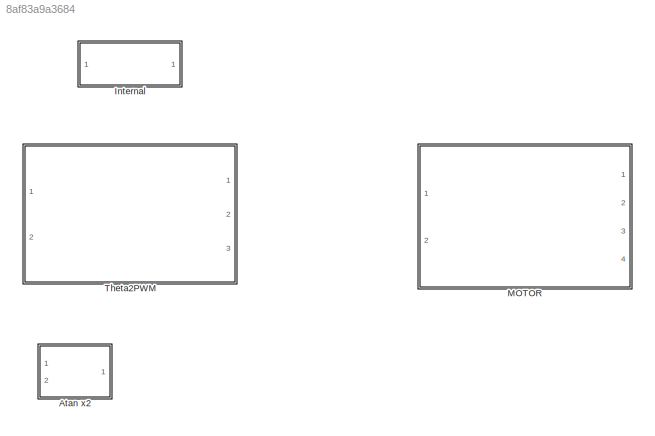
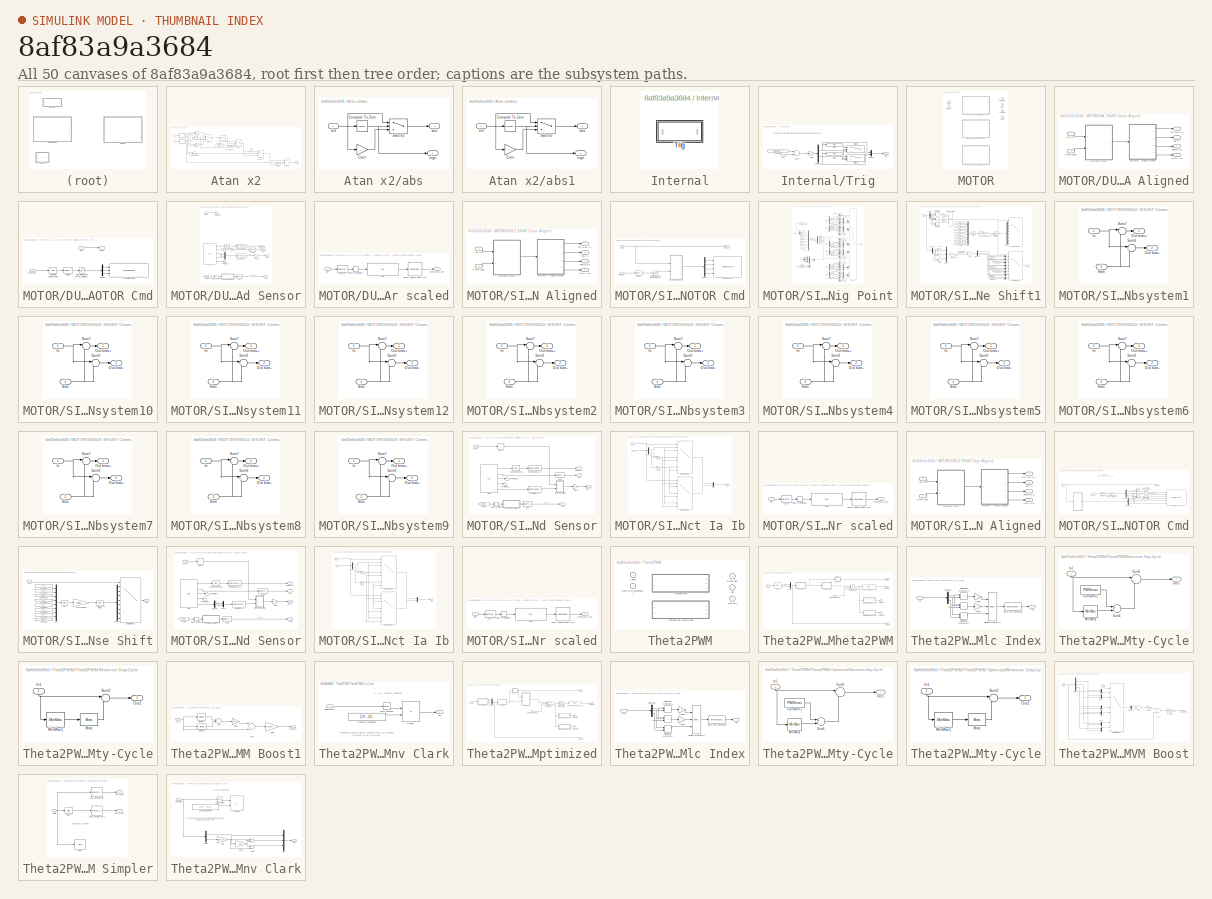
[diagram: thumbnail index - all 50 canvases of the model, root first then tree order]
MODEL slx_8af83a9a3684
KIND library
CONFIG AbsTol = auto
CONFIG FixedStep = auto
CONFIG MaxStep = auto
CONFIG MinStep = auto
CONFIG RelTol = 1e-3
CONFIG SampleTimeConstraint = Unconstrained
CONFIG Solver = VariableStepAuto
CONFIG SolverMode = Auto
CONFIG SolverName = VariableStepAuto
CONFIG StartTime = 0.0
CONFIG StopTime = 10.0
BLOCK [SubSystem] Atan x2
  Ports = [2, 1]
  RequestExecContextInheritance = off
  Variant = off
BLOCK [Lookup_n-D] Atan x2/1-D Lookup Table
  BeginIndexSearchUsingPreviousIndexResult = on
  BreakpointsForDimension1 = [0:2^-8:1]
  BreakpointsForDimension1FirstPoint = 0
  BreakpointsForDimension1Spacing = 2^-8
  BreakpointsSpecification = Even spacing
  ExtrapMethod = Clip
  IndexSearchMethod = Evenly spaced points
  InterpMethod = Flat
  LockScale = on
  NumberOfTableDimensions = 1
  OutDataTypeStr = fixdt(1,16,15)
  Ports = [1, 1]
  RemoveProtectionInput = on
  RndMeth = Simplest
  Table = atan([0:2^-8:1])/(pi)
  TableDataTypeStr = fixdt(1,16,15)
  UseLastTableValue = on
BLOCK [Bias] Atan x2/Bias1
  Bias = 1
  SaturateOnIntegerOverflow = off
BLOCK [Constant] Atan x2/Constant
  OutDataTypeStr = Inherit: Inherit via back propagation
  Value = (pi/2) / (pi)
BLOCK [Product] Atan x2/Divide1
  InputSameDT = off
  Inputs = */
  OutDataTypeStr = fixdt(0,16,15)
  Ports = [2, 1]
  RndMeth = Floor
  SaturateOnIntegerOverflow = off
BLOCK [Product] Atan x2/Divide2
  InputSameDT = off
  Inputs = */
  OutDataTypeStr = fixdt(0,16,15)
  Ports = [2, 1]
  RndMeth = Floor
  SaturateOnIntegerOverflow = off
BLOCK [Gain] Atan x2/Gain
  Gain = -1
  ParamDataTypeStr = Inherit: Inherit via internal rule
  SaturateOnIntegerOverflow = off
BLOCK [Logic] Atan x2/Logical Operator
  AllPortsSameDT = off
  Operator = XOR
  OutDataTypeStr = boolean
  Ports = [2, 1]
BLOCK [RelationalOperator] Atan x2/Relational Operator
  InputSameDT = off
  Operator = <=
  OutDataTypeStr = boolean
  Ports = [2, 1]
BLOCK [Sum] Atan x2/Sum
  InputSameDT = off
  Inputs = +-
  OutDataTypeStr = Inherit: Inherit via internal rule
  Ports = [2, 1]
  SaturateOnIntegerOverflow = off
BLOCK [Switch] Atan x2/Switch
  Criteria = u2 ~= 0
  InputSameDT = off
  SaturateOnIntegerOverflow = off
BLOCK [Switch] Atan x2/Switch1
  Criteria = u2 ~= 0
  InputSameDT = off
  SaturateOnIntegerOverflow = off
BLOCK [Switch] Atan x2/Switch2
  Criteria = u2 ~= 0
  InputSameDT = off
  SaturateOnIntegerOverflow = off
BLOCK [Switch] Atan x2/Switch3
  Criteria = u2 ~= 0
  InputSameDT = off
  SaturateOnIntegerOverflow = off
BLOCK [SubSystem] Atan x2/abs
  Ports = [1, 2]
  RequestExecContextInheritance = off
  Variant = off
BLOCK [Reference] Atan x2/abs/Compare To Zero  REF=simulink/Logic and Bit
Operations/Compare
To Zero
  Ports = [1, 1]
  SourceBlock = simulink/Logic and Bit\nOperations/Compare\nTo Zero
  SourceType = Compare To Zero
BLOCK [Gain] Atan x2/abs/Gain
  Gain = -1
  ParamDataTypeStr = Inherit: Inherit via internal rule
  SaturateOnIntegerOverflow = off
BLOCK [Inport] Atan x2/abs/In3
  IconDisplay = Port number
BLOCK [Switch] Atan x2/abs/Switch2
  Criteria = u2 ~= 0
  InputSameDT = off
  SaturateOnIntegerOverflow = off
BLOCK [Outport] Atan x2/abs/abs
  IconDisplay = Port number
BLOCK [Outport] Atan x2/abs/sign
  IconDisplay = Port number
  Port = 2
BLOCK [SubSystem] Atan x2/abs1
  Ports = [1, 2]
  RequestExecContextInheritance = off
  Variant = off
BLOCK [Reference] Atan x2/abs1/Compare To Zero  REF=simulink/Logic and Bit
Operations/Compare
To Zero
  Ports = [1, 1]
  SourceBlock = simulink/Logic and Bit\nOperations/Compare\nTo Zero
  SourceType = Compare To Zero
BLOCK [Gain] Atan x2/abs1/Gain
  Gain = -1
  ParamDataTypeStr = Inherit: Inherit via internal rule
  SaturateOnIntegerOverflow = off
BLOCK [Inport] Atan x2/abs1/In3
  IconDisplay = Port number
BLOCK [Switch] Atan x2/abs1/Switch2
  Criteria = u2 ~= 0
  InputSameDT = off
  SaturateOnIntegerOverflow = off
BLOCK [Outport] Atan x2/abs1/abs
  IconDisplay = Port number
BLOCK [Outport] Atan x2/abs1/sign
  IconDisplay = Port number
  Port = 2
BLOCK [Outport] Atan x2/angle
  IconDisplay = Port number
BLOCK [Inport] Atan x2/x
  IconDisplay = Port number
BLOCK [Inport] Atan x2/y
  IconDisplay = Port number
  Port = 2
BLOCK [SubSystem] Internal
  Ports = []
  RequestExecContextInheritance = off
  Variant = off
BLOCK [SubSystem] Internal/Trig
  Ports = [1, 1]
  RequestExecContextInheritance = off
  Variant = off
BLOCK [Bias] Internal/Trig/Bias
  Bias = 65535-2*PWMmax
  SaturateOnIntegerOverflow = off
BLOCK [Bias] Internal/Trig/Bias1
  Bias = 65535-2*PWMmax
  SaturateOnIntegerOverflow = off
BLOCK [Constant] Internal/Trig/Constant1
  OutDataTypeStr = uint16
  Value = floor(PWMmax + (DEADTIME + TSETTLE - TSmp) * PWMmax * PWMFREQUENCY*2)
BLOCK [Demux] Internal/Trig/Demux8
  DisplayOption = bar
  Outputs = 2
  Ports = [1, 2]
BLOCK [Gain] Internal/Trig/Gain
  ParamDataTypeStr = Inherit: Inherit via internal rule
  SaturateOnIntegerOverflow = off
BLOCK [Inport] Internal/Trig/In1
  IconDisplay = Port number
BLOCK [Mux] Internal/Trig/Mux43
  DisplayOption = bar
  Inputs = 2
  Ports = [2, 1]
BLOCK [Outport] Internal/Trig/Out1
  IconDisplay = Port number
BLOCK [Sum] Internal/Trig/Sum7
  AccumDataTypeStr = Inherit: Same as first input
  InputSameDT = off
  OutDataTypeStr = Inherit: Same as accumulator
  Ports = [2, 1]
  SaturateOnIntegerOverflow = off
BLOCK [Switch] Internal/Trig/Switch
  Criteria = u2 > Threshold
  InputSameDT = off
  SaturateOnIntegerOverflow = off
  Threshold = 2*PWMmax
BLOCK [Switch] Internal/Trig/Switch1
  Criteria = u2 > Threshold
  InputSameDT = off
  SaturateOnIntegerOverflow = off
  Threshold = 2*PWMmax
BLOCK [SubSystem] MOTOR
  OverrideUsingVariant = SingleShunt_CenterAligned
  Ports = [2, 4]
  RequestExecContextInheritance = off
  Variant = on
BLOCK [Outport] MOTOR/DC Bus (V)
  IconDisplay = Port number
  Port = 4
BLOCK [SubSystem] MOTOR/DUAL SHUNT Center Aligned
  Ports = [2, 4]
  RequestExecContextInheritance = off
  Variant = off
  VariantControl = (default)
BLOCK [Outport] MOTOR/DUAL SHUNT Center Aligned/DC Bus (V)
  IconDisplay = Port number
  Port = 4
BLOCK [Outport] MOTOR/DUAL SHUNT Center Aligned/Iab (A)
  IconDisplay = Port number
  Port = 3
BLOCK [SubSystem] MOTOR/DUAL SHUNT Center Aligned/MOTOR - Board Sensor
  Ports = [1, 4]
  RequestExecContextInheritance = off
  Variant = off
BLOCK [Reference] MOTOR/DUAL SHUNT Center Aligned/MOTOR - Board Sensor/ADC  REF=MCHP_Blockset/Analog IO/ADC
  Ports = [0, 5]
  Priority = 5
  SourceBlock = MCHP_Blockset/Analog IO/ADC
BLOCK [Outport] MOTOR/DUAL SHUNT Center Aligned/MOTOR - Board Sensor/DC Bus (V)
  IconDisplay = Port number
BLOCK [From] MOTOR/DUAL SHUNT Center Aligned/MOTOR - Board Sensor/From5
  GotoTag = RESET
  TagVisibility = global
BLOCK [Gain] MOTOR/DUAL SHUNT Center Aligned/MOTOR - Board Sensor/Gain1
  Gain = -1
  ParamDataTypeStr = Inherit: Inherit via internal rule
BLOCK [Outport] MOTOR/DUAL SHUNT Center Aligned/MOTOR - Board Sensor/Iab (A)
  IconDisplay = Port number
  Port = 2
BLOCK [Mux] MOTOR/DUAL SHUNT Center Aligned/MOTOR - Board Sensor/Mux1
  DisplayOption = bar
  Inputs = 2
  Ports = [2, 1]
BLOCK [Outport] MOTOR/DUAL SHUNT Center Aligned/MOTOR - Board Sensor/Pot
  IconDisplay = Port number
  Port = 4
BLOCK [DataTypeConversion] MOTOR/DUAL SHUNT Center Aligned/MOTOR - Board Sensor/Q0.2
  ConvertRealWorld = Stored Integer (SI)
  OutDataTypeStr = uint16
  RndMeth = Floor
  SaturateOnIntegerOverflow = off
BLOCK [DataTypeConversion] MOTOR/DUAL SHUNT Center Aligned/MOTOR - Board Sensor/Q1.15
  ConvertRealWorld = Stored Integer (SI)
  OutDataTypeStr = fixdt(1,16,15)
  RndMeth = Floor
  SaturateOnIntegerOverflow = off
BLOCK [RateTransition] MOTOR/DUAL SHUNT Center Aligned/MOTOR - Board Sensor/Rate Transition4
  X0 = 1
BLOCK [DataTypeConversion] MOTOR/DUAL SHUNT Center Aligned/MOTOR - Board Sensor/Scale DC BUS  (V)
  ConvertRealWorld = Stored Integer (SI)
  OutDataTypeStr = fixdt(0,16, (3.3*16)/65535 ,0)
  RndMeth = Floor
  SaturateOnIntegerOverflow = off
BLOCK [DataTypeConversion] MOTOR/DUAL SHUNT Center Aligned/MOTOR - Board Sensor/Scale Ia Ib to (A)
  ConvertRealWorld = Stored Integer (SI)
  OutDataTypeStr = fixdt(1,16, 1.65/32768 / (.005 * 75),0)
  RndMeth = Floor
  SaturateOnIntegerOverflow = off
BLOCK [Terminator] MOTOR/DUAL SHUNT Center Aligned/MOTOR - Board Sensor/Terminator
BLOCK [Terminator] MOTOR/DUAL SHUNT Center Aligned/MOTOR - Board Sensor/Terminator1
BLOCK [Outport] MOTOR/DUAL SHUNT Center Aligned/MOTOR - Board Sensor/Theta
  IconDisplay = Port number
  Port = 3
BLOCK [Bias] MOTOR/DUAL SHUNT Center Aligned/MOTOR - Board Sensor/conv to unsigned
  Bias = 32768
  SaturateOnIntegerOverflow = off
BLOCK [SubSystem] MOTOR/DUAL SHUNT Center Aligned/MOTOR - Board Sensor/encoder scaled
  Ports = [1, 1]
  RequestExecContextInheritance = off
  Variant = off
BLOCK [LookupNDDirect] MOTOR/DUAL SHUNT Center Aligned/MOTOR - Board Sensor/encoder scaled/Direct Lookup Table (n-D)
  LockScale = on
  NumberOfTableDimensions = 1
  Ports = [1, 1]
  Table = [0:199]*inv(200)
  TableDataTypeStr = fixdt(0,16,16)
BLOCK [DataTypeConversion] MOTOR/DUAL SHUNT Center Aligned/MOTOR - Board Sensor/encoder scaled/Q0.4
  RndMeth = Floor
  SaturateOnIntegerOverflow = off
BLOCK [Reference] MOTOR/DUAL SHUNT Center Aligned/MOTOR - Board Sensor/encoder scaled/QEI  REF=MCHP_Blockset/QEI/QEI
  Ports = [1, 1]
  SourceBlock = MCHP_Blockset/QEI/QEI
  SourceType = Output Driver for Quadrature Encoder Interface (QEI) peripheral
BLOCK [RateTransition] MOTOR/DUAL SHUNT Center Aligned/MOTOR - Board Sensor/encoder scaled/Rate Transition4
  X0 = 1
BLOCK [Inport] MOTOR/DUAL SHUNT Center Aligned/MOTOR - Board Sensor/encoder scaled/Rst
  IconDisplay = Port number
BLOCK [Outport] MOTOR/DUAL SHUNT Center Aligned/MOTOR - Board Sensor/encoder scaled/theta_enc_fract
  IconDisplay = Port number
BLOCK [Inport] MOTOR/DUAL SHUNT Center Aligned/MOTOR - Board Sensor/idx (in)
  IconDisplay = Port number
BLOCK [SubSystem] MOTOR/DUAL SHUNT Center Aligned/MOTOR Cmd
  Ports = [2, 1]
  RequestExecContextInheritance = off
  Variant = off
BLOCK [Bias] MOTOR/DUAL SHUNT Center Aligned/MOTOR Cmd/Dead time Compensation
  Bias = round( (2e-6/5e-5) *PWMmax )
  SaturateOnIntegerOverflow = off
BLOCK [Demux] MOTOR/DUAL SHUNT Center Aligned/MOTOR Cmd/Demux
  DisplayOption = bar
  Outputs = 3
  Ports = [1, 3]
BLOCK [Inport] MOTOR/DUAL SHUNT Center Aligned/MOTOR Cmd/PWM (abc)
  IconDisplay = Port number
  Port = 2
BLOCK [Reference] MOTOR/DUAL SHUNT Center Aligned/MOTOR Cmd/PWM High Speed  REF=MCHP_Blockset/PWM IO/PWM High Speed
  Ports = [3]
  SourceBlock = MCHP_Blockset/PWM IO/PWM High Speed
BLOCK [Saturate] MOTOR/DUAL SHUNT Center Aligned/MOTOR Cmd/Saturation low side turn on errate workaround + errata for Phase shift (times 2)
  InputPortMap = u0
  LowerLimit = round( (2e-6/5e-5) *PWMmax )* 2
  Ports = [1, 1]
  UpperLimit = PWMmax
BLOCK [Inport] MOTOR/DUAL SHUNT Center Aligned/MOTOR Cmd/idx in
  IconDisplay = Port number
BLOCK [Outport] MOTOR/DUAL SHUNT Center Aligned/MOTOR Cmd/idx out
  IconDisplay = Port number
BLOCK [DataTypeConversion] MOTOR/DUAL SHUNT Center Aligned/MOTOR Cmd/int to uint
  ConvertRealWorld = Stored Integer (SI)
  OutDataTypeStr = uint16
  RndMeth = Floor
  SaturateOnIntegerOverflow = off
BLOCK [Inport] MOTOR/DUAL SHUNT Center Aligned/PWM (abc)
  IconDisplay = Port number
  Port = 2
BLOCK [Outport] MOTOR/DUAL SHUNT Center Aligned/Pot [-1 1]
  IconDisplay = Port number
BLOCK [Outport] MOTOR/DUAL SHUNT Center Aligned/Theta [0-1]
  IconDisplay = Port number
  Port = 2
BLOCK [Inport] MOTOR/DUAL SHUNT Center Aligned/idx (in)
  IconDisplay = Port number
BLOCK [Outport] MOTOR/Iab (A)
  IconDisplay = Port number
  Port = 3
BLOCK [Inport] MOTOR/PWM (abc)
  IconDisplay = Port number
  Port = 2
BLOCK [Outport] MOTOR/Pot [-1 1]
  IconDisplay = Port number
BLOCK [SubSystem] MOTOR/SINGLE SHUNT Center Aligned
  Ports = [2, 4]
  RequestExecContextInheritance = off
  Variant = off
  VariantControl = SingleShunt_CenterAligned
BLOCK [Outport] MOTOR/SINGLE SHUNT Center Aligned/DC Bus (V)
  IconDisplay = Port number
  Port = 4
BLOCK [Outport] MOTOR/SINGLE SHUNT Center Aligned/Iab (A)
  IconDisplay = Port number
  Port = 3
BLOCK [SubSystem] MOTOR/SINGLE SHUNT Center Aligned/MOTOR - Board Sensor
  Ports = [1, 4]
  RequestExecContextInheritance = off
  Variant = off
BLOCK [Reference] MOTOR/SINGLE SHUNT Center Aligned/MOTOR - Board Sensor/ADC1  REF=MCHP_Blockset/Analog IO/ADC
  Ports = [0, 5]
  Priority = 5
  SourceBlock = MCHP_Blockset/Analog IO/ADC
BLOCK [Outport] MOTOR/SINGLE SHUNT Center Aligned/MOTOR - Board Sensor/DC Bus (V)
  IconDisplay = Port number
BLOCK [Delay] MOTOR/SINGLE SHUNT Center Aligned/MOTOR - Board Sensor/Delay3
  InitialCondition = 0
  InputPortMap = u0
  Ports = [1, 1]
BLOCK [From] MOTOR/SINGLE SHUNT Center Aligned/MOTOR - Board Sensor/From5
  GotoTag = RESET
  TagVisibility = global
BLOCK [Gain] MOTOR/SINGLE SHUNT Center Aligned/MOTOR - Board Sensor/Gain1
  Gain = -1
  ParamDataTypeStr = Inherit: Inherit via internal rule
  SaturateOnIntegerOverflow = off
BLOCK [Outport] MOTOR/SINGLE SHUNT Center Aligned/MOTOR - Board Sensor/Iab (A)
  IconDisplay = Port number
  Port = 2
BLOCK [Outport] MOTOR/SINGLE SHUNT Center Aligned/MOTOR - Board Sensor/Pot
  IconDisplay = Port number
  Port = 4
BLOCK [DataTypeConversion] MOTOR/SINGLE SHUNT Center Aligned/MOTOR - Board Sensor/Q0.2
  ConvertRealWorld = Stored Integer (SI)
  OutDataTypeStr = uint16
  RndMeth = Floor
  SaturateOnIntegerOverflow = off
BLOCK [DataTypeConversion] MOTOR/SINGLE SHUNT Center Aligned/MOTOR - Board Sensor/Q1.15
  ConvertRealWorld = Stored Integer (SI)
  OutDataTypeStr = fixdt(1,16,15)
  RndMeth = Floor
  SaturateOnIntegerOverflow = off
BLOCK [RateTransition] MOTOR/SINGLE SHUNT Center Aligned/MOTOR - Board Sensor/Rate Transition4
  X0 = 1
BLOCK [SubSystem] MOTOR/SINGLE SHUNT Center Aligned/MOTOR - Board Sensor/Reconstruct Ia Ib
  Ports = [2, 1]
  RequestExecContextInheritance = off
  Variant = off
BLOCK [Demux] MOTOR/SINGLE SHUNT Center Aligned/MOTOR - Board Sensor/Reconstruct Ia Ib/Demux3
  DisplayOption = bar
  Outputs = 2
  Ports = [1, 2]
BLOCK [Gain] MOTOR/SINGLE SHUNT Center Aligned/MOTOR - Board Sensor/Reconstruct Ia Ib/Gain1
  Gain = -1
  ParamDataTypeStr = Inherit: Inherit via internal rule
  SaturateOnIntegerOverflow = off
BLOCK [Inport] MOTOR/SINGLE SHUNT Center Aligned/MOTOR - Board Sensor/Reconstruct Ia Ib/I
  IconDisplay = Port number
  Port = 2
BLOCK [Outport] MOTOR/SINGLE SHUNT Center Aligned/MOTOR - Board Sensor/Reconstruct Ia Ib/Ia Ib
  IconDisplay = Port number
BLOCK [Inport] MOTOR/SINGLE SHUNT Center Aligned/MOTOR - Board Sensor/Reconstruct Ia Ib/Index
  IconDisplay = Port number
BLOCK [MultiPortSwitch] MOTOR/SINGLE SHUNT Center Aligned/MOTOR - Board Sensor/Reconstruct Ia Ib/Multiport Switch1
  DataPortOrder = Zero-based contiguous
  DiagnosticForDefault = None
  InputSameDT = off
  Inputs = 8
  Ports = [9, 1]
  SaturateOnIntegerOverflow = off
BLOCK [MultiPortSwitch] MOTOR/SINGLE SHUNT Center Aligned/MOTOR - Board Sensor/Reconstruct Ia Ib/Multiport Switch2
  DataPortOrder = Zero-based contiguous
  DiagnosticForDefault = None
  InputSameDT = off
  Inputs = 8
  Ports = [9, 1]
  SaturateOnIntegerOverflow = off
BLOCK [Mux] MOTOR/SINGLE SHUNT Center Aligned/MOTOR - Board Sensor/Reconstruct Ia Ib/Mux
  DisplayOption = bar
  Inputs = 2
  Ports = [2, 1]
BLOCK [Sum] MOTOR/SINGLE SHUNT Center Aligned/MOTOR - Board Sensor/Reconstruct Ia Ib/Sum1
  InputSameDT = off
  Inputs = +-
  OutDataTypeStr = Inherit: Inherit via internal rule
  Ports = [2, 1]
  SaturateOnIntegerOverflow = off
BLOCK [DataTypeConversion] MOTOR/SINGLE SHUNT Center Aligned/MOTOR - Board Sensor/Scale DC BUS  (V)1
  ConvertRealWorld = Stored Integer (SI)
  OutDataTypeStr = fixdt(0,16, (3.3*16)/65535 ,0)
  RndMeth = Floor
  SaturateOnIntegerOverflow = off
BLOCK [DataTypeConversion] MOTOR/SINGLE SHUNT Center Aligned/MOTOR - Board Sensor/Scale Ia Ib to (A)1
  ConvertRealWorld = Stored Integer (SI)
  OutDataTypeStr = fixdt(1,16, 1.65/32768 / (.005 * 75),0)
  RndMeth = Floor
  SaturateOnIntegerOverflow = off
BLOCK [Terminator] MOTOR/SINGLE SHUNT Center Aligned/MOTOR - Board Sensor/Terminator2
BLOCK [Terminator] MOTOR/SINGLE SHUNT Center Aligned/MOTOR - Board Sensor/Terminator3
BLOCK [Outport] MOTOR/SINGLE SHUNT Center Aligned/MOTOR - Board Sensor/Theta
  IconDisplay = Port number
  Port = 3
BLOCK [Bias] MOTOR/SINGLE SHUNT Center Aligned/MOTOR - Board Sensor/conv to unsigned1
  Bias = 32768
  SaturateOnIntegerOverflow = off
BLOCK [SubSystem] MOTOR/SINGLE SHUNT Center Aligned/MOTOR - Board Sensor/encoder scaled
  Ports = [1, 1]
  RequestExecContextInheritance = off
  Variant = off
BLOCK [LookupNDDirect] MOTOR/SINGLE SHUNT Center Aligned/MOTOR - Board Sensor/encoder scaled/Direct Lookup Table (n-D)
  LockScale = on
  NumberOfTableDimensions = 1
  Ports = [1, 1]
  Table = [0:199]*inv(200)
  TableDataTypeStr = fixdt(0,16,16)
BLOCK [DataTypeConversion] MOTOR/SINGLE SHUNT Center Aligned/MOTOR - Board Sensor/encoder scaled/Q0.4
  RndMeth = Floor
  SaturateOnIntegerOverflow = off
BLOCK [Reference] MOTOR/SINGLE SHUNT Center Aligned/MOTOR - Board Sensor/encoder scaled/QEI  REF=MCHP_Blockset/QEI/QEI
  Ports = [1, 1]
  SourceBlock = MCHP_Blockset/QEI/QEI
  SourceType = Output Driver for Quadrature Encoder Interface (QEI) peripheral
BLOCK [RateTransition] MOTOR/SINGLE SHUNT Center Aligned/MOTOR - Board Sensor/encoder scaled/Rate Transition4
  X0 = 1
BLOCK [Inport] MOTOR/SINGLE SHUNT Center Aligned/MOTOR - Board Sensor/encoder scaled/Rst
  IconDisplay = Port number
BLOCK [Outport] MOTOR/SINGLE SHUNT Center Aligned/MOTOR - Board Sensor/encoder scaled/theta_enc_fract
  IconDisplay = Port number
BLOCK [Inport] MOTOR/SINGLE SHUNT Center Aligned/MOTOR - Board Sensor/idx (in)
  IconDisplay = Port number
BLOCK [SubSystem] MOTOR/SINGLE SHUNT Center Aligned/MOTOR Cmd
  Ports = [2, 1]
  RequestExecContextInheritance = off
  Variant = off
BLOCK [Demux] MOTOR/SINGLE SHUNT Center Aligned/MOTOR Cmd/Demux2
  DisplayOption = bar
  Ports = [1, 4]
BLOCK [Inport] MOTOR/SINGLE SHUNT Center Aligned/MOTOR Cmd/PWM (abc)
  IconDisplay = Port number
  Port = 2
BLOCK [Reference] MOTOR/SINGLE SHUNT Center Aligned/MOTOR Cmd/PWM High Speed  REF=MCHP_Blockset/PWM IO/PWM High Speed
  Ports = [4]
  SourceBlock = MCHP_Blockset/PWM IO/PWM High Speed
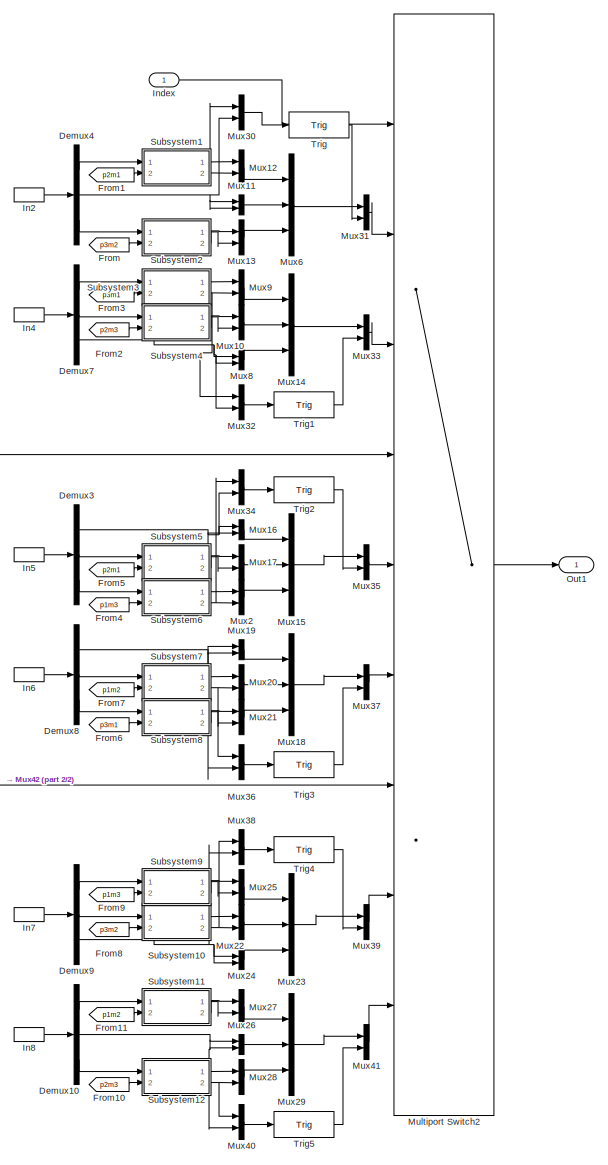
[diagram: MOTOR/SINGLE SHUNT Center Aligned/MOTOR Cmd/Phase Shift & Trig Point - part 1/2, right side, full height]
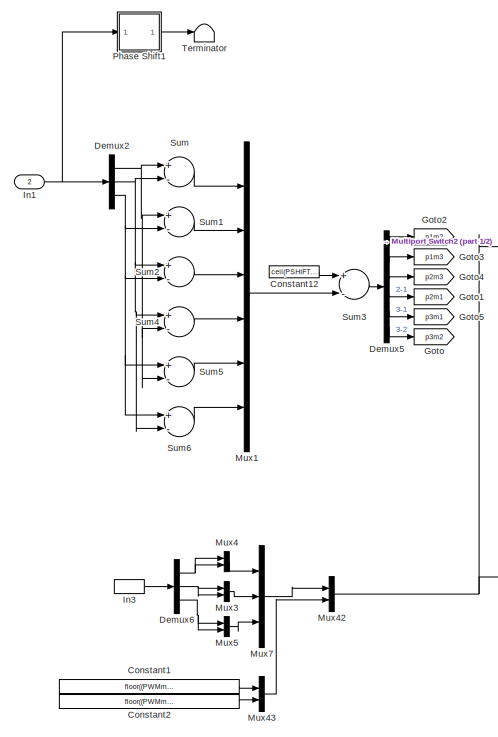
[diagram: MOTOR/SINGLE SHUNT Center Aligned/MOTOR Cmd/Phase Shift & Trig Point - part 2/2, middle left region]
BLOCK [SubSystem] MOTOR/SINGLE SHUNT Center Aligned/MOTOR Cmd/Phase Shift & Trig Point
  Ports = [2, 1]
  RequestExecContextInheritance = off
  Variant = off
BLOCK [Constant] MOTOR/SINGLE SHUNT Center Aligned/MOTOR Cmd/Phase Shift & Trig Point/Constant1
  OutDataTypeStr = uint16
  Value = floor((PWMmax/2 - TSmp) * 2)
BLOCK [Constant] MOTOR/SINGLE SHUNT Center Aligned/MOTOR Cmd/Phase Shift & Trig Point/Constant12
  OutDataTypeStr = uint16
  Value = ceil(PSHIFT * PWMmax * PWMFREQUENCY * 2)
BLOCK [Constant] MOTOR/SINGLE SHUNT Center Aligned/MOTOR Cmd/Phase Shift & Trig Point/Constant2
  OutDataTypeStr = uint16
  Value = floor((PWMmax/2 + TSmp) * 2)
BLOCK [Demux] MOTOR/SINGLE SHUNT Center Aligned/MOTOR Cmd/Phase Shift & Trig Point/Demux10
  DisplayOption = bar
  Outputs = 3
  Ports = [1, 3]
BLOCK [Demux] MOTOR/SINGLE SHUNT Center Aligned/MOTOR Cmd/Phase Shift & Trig Point/Demux2
  DisplayOption = bar
  Outputs = 3
  Ports = [1, 3]
BLOCK [Demux] MOTOR/SINGLE SHUNT Center Aligned/MOTOR Cmd/Phase Shift & Trig Point/Demux3
  DisplayOption = bar
  Outputs = 3
  Ports = [1, 3]
BLOCK [Demux] MOTOR/SINGLE SHUNT Center Aligned/MOTOR Cmd/Phase Shift & Trig Point/Demux4
  DisplayOption = bar
  Outputs = 3
  Ports = [1, 3]
BLOCK [Demux] MOTOR/SINGLE SHUNT Center Aligned/MOTOR Cmd/Phase Shift & Trig Point/Demux5
  DisplayOption = bar
  Outputs = 6
  Ports = [1, 6]
BLOCK [Demux] MOTOR/SINGLE SHUNT Center Aligned/MOTOR Cmd/Phase Shift & Trig Point/Demux6
  DisplayOption = bar
  Outputs = 3
  Ports = [1, 3]
BLOCK [Demux] MOTOR/SINGLE SHUNT Center Aligned/MOTOR Cmd/Phase Shift & Trig Point/Demux7
  DisplayOption = bar
  Outputs = 3
  Ports = [1, 3]
BLOCK [Demux] MOTOR/SINGLE SHUNT Center Aligned/MOTOR Cmd/Phase Shift & Trig Point/Demux8
  DisplayOption = bar
  Outputs = 3
  Ports = [1, 3]
BLOCK [Demux] MOTOR/SINGLE SHUNT Center Aligned/MOTOR Cmd/Phase Shift & Trig Point/Demux9
  DisplayOption = bar
  Outputs = 3
  Ports = [1, 3]
BLOCK [From] MOTOR/SINGLE SHUNT Center Aligned/MOTOR Cmd/Phase Shift & Trig Point/From
  GotoTag = p3m2
BLOCK [From] MOTOR/SINGLE SHUNT Center Aligned/MOTOR Cmd/Phase Shift & Trig Point/From1
  GotoTag = p2m1
BLOCK [From] MOTOR/SINGLE SHUNT Center Aligned/MOTOR Cmd/Phase Shift & Trig Point/From10
  GotoTag = p2m3
BLOCK [From] MOTOR/SINGLE SHUNT Center Aligned/MOTOR Cmd/Phase Shift & Trig Point/From11
  GotoTag = p1m2
BLOCK [From] MOTOR/SINGLE SHUNT Center Aligned/MOTOR Cmd/Phase Shift & Trig Point/From2
  GotoTag = p2m3
BLOCK [From] MOTOR/SINGLE SHUNT Center Aligned/MOTOR Cmd/Phase Shift & Trig Point/From3
  GotoTag = p3m1
BLOCK [From] MOTOR/SINGLE SHUNT Center Aligned/MOTOR Cmd/Phase Shift & Trig Point/From4
  GotoTag = p1m3
BLOCK [From] MOTOR/SINGLE SHUNT Center Aligned/MOTOR Cmd/Phase Shift & Trig Point/From5
  GotoTag = p2m1
BLOCK [From] MOTOR/SINGLE SHUNT Center Aligned/MOTOR Cmd/Phase Shift & Trig Point/From6
  GotoTag = p3m1
BLOCK [From] MOTOR/SINGLE SHUNT Center Aligned/MOTOR Cmd/Phase Shift & Trig Point/From7
  GotoTag = p1m2
BLOCK [From] MOTOR/SINGLE SHUNT Center Aligned/MOTOR Cmd/Phase Shift & Trig Point/From8
  GotoTag = p3m2
BLOCK [From] MOTOR/SINGLE SHUNT Center Aligned/MOTOR Cmd/Phase Shift & Trig Point/From9
  GotoTag = p1m3
BLOCK [Goto] MOTOR/SINGLE SHUNT Center Aligned/MOTOR Cmd/Phase Shift & Trig Point/Goto
  GotoTag = p3m2
BLOCK [Goto] MOTOR/SINGLE SHUNT Center Aligned/MOTOR Cmd/Phase Shift & Trig Point/Goto1
  GotoTag = p2m1
BLOCK [Goto] MOTOR/SINGLE SHUNT Center Aligned/MOTOR Cmd/Phase Shift & Trig Point/Goto2
  GotoTag = p1m2
BLOCK [Goto] MOTOR/SINGLE SHUNT Center Aligned/MOTOR Cmd/Phase Shift & Trig Point/Goto3
  GotoTag = p1m3
BLOCK [Goto] MOTOR/SINGLE SHUNT Center Aligned/MOTOR Cmd/Phase Shift & Trig Point/Goto4
  GotoTag = p2m3
BLOCK [Goto] MOTOR/SINGLE SHUNT Center Aligned/MOTOR Cmd/Phase Shift & Trig Point/Goto5
  GotoTag = p3m1
BLOCK [Inport] MOTOR/SINGLE SHUNT Center Aligned/MOTOR Cmd/Phase Shift & Trig Point/In1
  IconDisplay = Port number
  Port = 2
BLOCK [InportShadow] MOTOR/SINGLE SHUNT Center Aligned/MOTOR Cmd/Phase Shift & Trig Point/In2
  IconDisplay = Port number
  Port = 2
BLOCK [InportShadow] MOTOR/SINGLE SHUNT Center Aligned/MOTOR Cmd/Phase Shift & Trig Point/In3
  IconDisplay = Port number
  Port = 2
BLOCK [InportShadow] MOTOR/SINGLE SHUNT Center Aligned/MOTOR Cmd/Phase Shift & Trig Point/In4
  IconDisplay = Port number
  Port = 2
BLOCK [InportShadow] MOTOR/SINGLE SHUNT Center Aligned/MOTOR Cmd/Phase Shift & Trig Point/In5
  IconDisplay = Port number
  Port = 2
BLOCK [InportShadow] MOTOR/SINGLE SHUNT Center Aligned/MOTOR Cmd/Phase Shift & Trig Point/In6
  IconDisplay = Port number
  Port = 2
BLOCK [InportShadow] MOTOR/SINGLE SHUNT Center Aligned/MOTOR Cmd/Phase Shift & Trig Point/In7
  IconDisplay = Port number
  Port = 2
BLOCK [InportShadow] MOTOR/SINGLE SHUNT Center Aligned/MOTOR Cmd/Phase Shift & Trig Point/In8
  IconDisplay = Port number
  Port = 2
BLOCK [Inport] MOTOR/SINGLE SHUNT Center Aligned/MOTOR Cmd/Phase Shift & Trig Point/Index
  IconDisplay = Port number
BLOCK [MultiPortSwitch] MOTOR/SINGLE SHUNT Center Aligned/MOTOR Cmd/Phase Shift & Trig Point/Multiport Switch2
  DataPortOrder = Zero-based contiguous
  DiagnosticForDefault = None
  InputSameDT = off
  Inputs = 8
  Ports = [9, 1]
  SaturateOnIntegerOverflow = off
BLOCK [Mux] MOTOR/SINGLE SHUNT Center Aligned/MOTOR Cmd/Phase Shift & Trig Point/Mux1
  DisplayOption = bar
  Inputs = 6
  Ports = [6, 1]
BLOCK [Mux] MOTOR/SINGLE SHUNT Center Aligned/MOTOR Cmd/Phase Shift & Trig Point/Mux10
  DisplayOption = bar
  Inputs = 2
  Ports = [2, 1]
BLOCK [Mux] MOTOR/SINGLE SHUNT Center Aligned/MOTOR Cmd/Phase Shift & Trig Point/Mux11
  DisplayOption = bar
  Inputs = 2
  Ports = [2, 1]
BLOCK [Mux] MOTOR/SINGLE SHUNT Center Aligned/MOTOR Cmd/Phase Shift & Trig Point/Mux12
  DisplayOption = bar
  Inputs = 2
  Ports = [2, 1]
BLOCK [Mux] MOTOR/SINGLE SHUNT Center Aligned/MOTOR Cmd/Phase Shift & Trig Point/Mux13
  DisplayOption = bar
  Inputs = 2
  Ports = [2, 1]
BLOCK [Mux] MOTOR/SINGLE SHUNT Center Aligned/MOTOR Cmd/Phase Shift & Trig Point/Mux14
  DisplayOption = bar
  Inputs = 3
  Ports = [3, 1]
BLOCK [Mux] MOTOR/SINGLE SHUNT Center Aligned/MOTOR Cmd/Phase Shift & Trig Point/Mux15
  DisplayOption = bar
  Inputs = 3
  Ports = [3, 1]
BLOCK [Mux] MOTOR/SINGLE SHUNT Center Aligned/MOTOR Cmd/Phase Shift & Trig Point/Mux16
  DisplayOption = bar
  Inputs = 2
  Ports = [2, 1]
BLOCK [Mux] MOTOR/SINGLE SHUNT Center Aligned/MOTOR Cmd/Phase Shift & Trig Point/Mux17
  DisplayOption = bar
  Inputs = 2
  Ports = [2, 1]
BLOCK [Mux] MOTOR/SINGLE SHUNT Center Aligned/MOTOR Cmd/Phase Shift & Trig Point/Mux18
  DisplayOption = bar
  Inputs = 3
  Ports = [3, 1]
BLOCK [Mux] MOTOR/SINGLE SHUNT Center Aligned/MOTOR Cmd/Phase Shift & Trig Point/Mux19
  DisplayOption = bar
  Inputs = 2
  Ports = [2, 1]
BLOCK [Mux] MOTOR/SINGLE SHUNT Center Aligned/MOTOR Cmd/Phase Shift & Trig Point/Mux2
  DisplayOption = bar
  Inputs = 2
  Ports = [2, 1]
BLOCK [Mux] MOTOR/SINGLE SHUNT Center Aligned/MOTOR Cmd/Phase Shift & Trig Point/Mux20
  DisplayOption = bar
  Inputs = 2
  Ports = [2, 1]
BLOCK [Mux] MOTOR/SINGLE SHUNT Center Aligned/MOTOR Cmd/Phase Shift & Trig Point/Mux21
  DisplayOption = bar
  Inputs = 2
  Ports = [2, 1]
BLOCK [Mux] MOTOR/SINGLE SHUNT Center Aligned/MOTOR Cmd/Phase Shift & Trig Point/Mux22
  DisplayOption = bar
  Inputs = 2
  Ports = [2, 1]
BLOCK [Mux] MOTOR/SINGLE SHUNT Center Aligned/MOTOR Cmd/Phase Shift & Trig Point/Mux23
  DisplayOption = bar
  Inputs = 3
  Ports = [3, 1]
BLOCK [Mux] MOTOR/SINGLE SHUNT Center Aligned/MOTOR Cmd/Phase Shift & Trig Point/Mux24
  DisplayOption = bar
  Inputs = 2
  Ports = [2, 1]
BLOCK [Mux] MOTOR/SINGLE SHUNT Center Aligned/MOTOR Cmd/Phase Shift & Trig Point/Mux25
  DisplayOption = bar
  Inputs = 2
  Ports = [2, 1]
BLOCK [Mux] MOTOR/SINGLE SHUNT Center Aligned/MOTOR Cmd/Phase Shift & Trig Point/Mux26
  DisplayOption = bar
  Inputs = 2
  Ports = [2, 1]
BLOCK [Mux] MOTOR/SINGLE SHUNT Center Aligned/MOTOR Cmd/Phase Shift & Trig Point/Mux27
  DisplayOption = bar
  Inputs = 2
  Ports = [2, 1]
BLOCK [Mux] MOTOR/SINGLE SHUNT Center Aligned/MOTOR Cmd/Phase Shift & Trig Point/Mux28
  DisplayOption = bar
  Inputs = 2
  Ports = [2, 1]
BLOCK [Mux] MOTOR/SINGLE SHUNT Center Aligned/MOTOR Cmd/Phase Shift & Trig Point/Mux29
  DisplayOption = bar
  Inputs = 3
  Ports = [3, 1]
BLOCK [Mux] MOTOR/SINGLE SHUNT Center Aligned/MOTOR Cmd/Phase Shift & Trig Point/Mux3
  DisplayOption = bar
  Inputs = 2
  Ports = [2, 1]
BLOCK [Mux] MOTOR/SINGLE SHUNT Center Aligned/MOTOR Cmd/Phase Shift & Trig Point/Mux30
  DisplayOption = bar
  Inputs = 2
  Ports = [2, 1]
BLOCK [Mux] MOTOR/SINGLE SHUNT Center Aligned/MOTOR Cmd/Phase Shift & Trig Point/Mux31
  DisplayOption = bar
  Inputs = 2
  Ports = [2, 1]
BLOCK [Mux] MOTOR/SINGLE SHUNT Center Aligned/MOTOR Cmd/Phase Shift & Trig Point/Mux32
  DisplayOption = bar
  Inputs = 2
  Ports = [2, 1]
BLOCK [Mux] MOTOR/SINGLE SHUNT Center Aligned/MOTOR Cmd/Phase Shift & Trig Point/Mux33
  DisplayOption = bar
  Inputs = 2
  Ports = [2, 1]
BLOCK [Mux] MOTOR/SINGLE SHUNT Center Aligned/MOTOR Cmd/Phase Shift & Trig Point/Mux34
  DisplayOption = bar
  Inputs = 2
  Ports = [2, 1]
BLOCK [Mux] MOTOR/SINGLE SHUNT Center Aligned/MOTOR Cmd/Phase Shift & Trig Point/Mux35
  DisplayOption = bar
  Inputs = 2
  Ports = [2, 1]
BLOCK [Mux] MOTOR/SINGLE SHUNT Center Aligned/MOTOR Cmd/Phase Shift & Trig Point/Mux36
  DisplayOption = bar
  Inputs = 2
  Ports = [2, 1]
BLOCK [Mux] MOTOR/SINGLE SHUNT Center Aligned/MOTOR Cmd/Phase Shift & Trig Point/Mux37
  DisplayOption = bar
  Inputs = 2
  Ports = [2, 1]
BLOCK [Mux] MOTOR/SINGLE SHUNT Center Aligned/MOTOR Cmd/Phase Shift & Trig Point/Mux38
  DisplayOption = bar
  Inputs = 2
  Ports = [2, 1]
BLOCK [Mux] MOTOR/SINGLE SHUNT Center Aligned/MOTOR Cmd/Phase Shift & Trig Point/Mux39
  DisplayOption = bar
  Inputs = 2
  Ports = [2, 1]
BLOCK [Mux] MOTOR/SINGLE SHUNT Center Aligned/MOTOR Cmd/Phase Shift & Trig Point/Mux4
  DisplayOption = bar
  Inputs = 2
  Ports = [2, 1]
BLOCK [Mux] MOTOR/SINGLE SHUNT Center Aligned/MOTOR Cmd/Phase Shift & Trig Point/Mux40
  DisplayOption = bar
  Inputs = 2
  Ports = [2, 1]
BLOCK [Mux] MOTOR/SINGLE SHUNT Center Aligned/MOTOR Cmd/Phase Shift & Trig Point/Mux41
  DisplayOption = bar
  Inputs = 2
  Ports = [2, 1]
BLOCK [Mux] MOTOR/SINGLE SHUNT Center Aligned/MOTOR Cmd/Phase Shift & Trig Point/Mux42
  DisplayOption = bar
  Inputs = 2
  Ports = [2, 1]
BLOCK [Mux] MOTOR/SINGLE SHUNT Center Aligned/MOTOR Cmd/Phase Shift & Trig Point/Mux43
  DisplayOption = bar
  Inputs = 2
  Ports = [2, 1]
BLOCK [Mux] MOTOR/SINGLE SHUNT Center Aligned/MOTOR Cmd/Phase Shift & Trig Point/Mux5
  DisplayOption = bar
  Inputs = 2
  Ports = [2, 1]
BLOCK [Mux] MOTOR/SINGLE SHUNT Center Aligned/MOTOR Cmd/Phase Shift & Trig Point/Mux6
  DisplayOption = bar
  Inputs = 3
  Ports = [3, 1]
BLOCK [Mux] MOTOR/SINGLE SHUNT Center Aligned/MOTOR Cmd/Phase Shift & Trig Point/Mux7
  DisplayOption = bar
  Inputs = 3
  Ports = [3, 1]
BLOCK [Mux] MOTOR/SINGLE SHUNT Center Aligned/MOTOR Cmd/Phase Shift & Trig Point/Mux8
  DisplayOption = bar
  Inputs = 2
  Ports = [2, 1]
BLOCK [Mux] MOTOR/SINGLE SHUNT Center Aligned/MOTOR Cmd/Phase Shift & Trig Point/Mux9
  DisplayOption = bar
  Inputs = 2
  Ports = [2, 1]
BLOCK [Outport] MOTOR/SINGLE SHUNT Center Aligned/MOTOR Cmd/Phase Shift & Trig Point/Out1
  IconDisplay = Port number
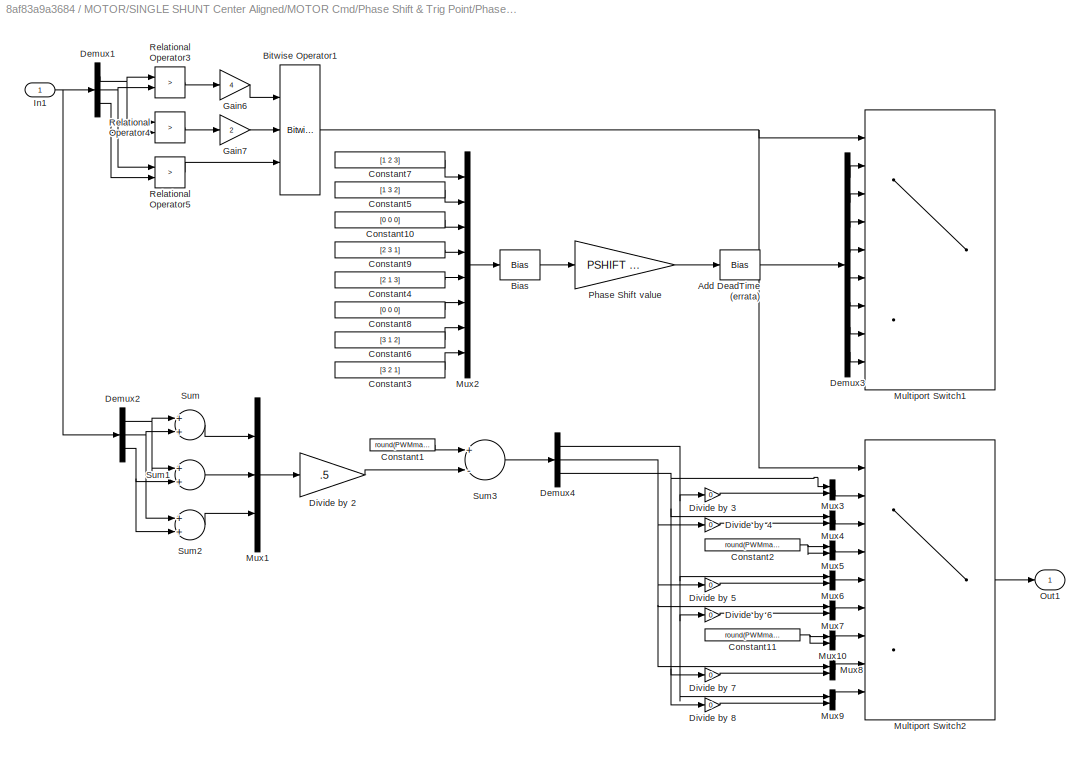
BLOCK [SubSystem] MOTOR/SINGLE SHUNT Center Aligned/MOTOR Cmd/Phase Shift & Trig Point/Phase Shift1
  Ports = [1, 1]
  RequestExecContextInheritance = off
  Variant = off
BLOCK [Bias] MOTOR/SINGLE SHUNT Center Aligned/MOTOR Cmd/Phase Shift & Trig Point/Phase Shift1/Add DeadTime (errata)
  Bias = DEADTIME * PWMFREQUENCY * PWMmax
BLOCK [Bias] MOTOR/SINGLE SHUNT Center Aligned/MOTOR Cmd/Phase Shift & Trig Point/Phase Shift1/Bias
  Bias = -1
BLOCK [Reference] MOTOR/SINGLE SHUNT Center Aligned/MOTOR Cmd/Phase Shift & Trig Point/Phase Shift1/Bitwise Operator1  REF=simulink/Logic and Bit
Operations/Bitwise
Operator
  Ports = [3, 1]
  SourceBlock = simulink/Logic and Bit\nOperations/Bitwise\nOperator
  SourceType = Bitwise Operator
BLOCK [Constant] MOTOR/SINGLE SHUNT Center Aligned/MOTOR Cmd/Phase Shift & Trig Point/Phase Shift1/Constant1
  OutDataTypeStr = Inherit: Inherit via back propagation
  Value = round(PWMmax + DEADTIME*PWMmax*PWMFREQUENCY*3)
BLOCK [Constant] MOTOR/SINGLE SHUNT Center Aligned/MOTOR Cmd/Phase Shift & Trig Point/Phase Shift1/Constant10
  OutDataTypeStr = int16
  Value = [0 0 0]
BLOCK [Constant] MOTOR/SINGLE SHUNT Center Aligned/MOTOR Cmd/Phase Shift & Trig Point/Phase Shift1/Constant11
  OutDataTypeStr = Inherit: Inherit via back propagation
  Value = round(PWMmax/2)
BLOCK [Constant] MOTOR/SINGLE SHUNT Center Aligned/MOTOR Cmd/Phase Shift & Trig Point/Phase Shift1/Constant2
  OutDataTypeStr = Inherit: Inherit via back propagation
  Value = round(PWMmax/2)
BLOCK [Constant] MOTOR/SINGLE SHUNT Center Aligned/MOTOR Cmd/Phase Shift & Trig Point/Phase Shift1/Constant3
  OutDataTypeStr = int16
  Value = [3 2 1]
BLOCK [Constant] MOTOR/SINGLE SHUNT Center Aligned/MOTOR Cmd/Phase Shift & Trig Point/Phase Shift1/Constant4
  OutDataTypeStr = int16
  Value = [2 1 3]
BLOCK [Constant] MOTOR/SINGLE SHUNT Center Aligned/MOTOR Cmd/Phase Shift & Trig Point/Phase Shift1/Constant5
  OutDataTypeStr = int16
  Value = [1 3 2]
BLOCK [Constant] MOTOR/SINGLE SHUNT Center Aligned/MOTOR Cmd/Phase Shift & Trig Point/Phase Shift1/Constant6
  OutDataTypeStr = int16
  Value = [3 1 2]
BLOCK [Constant] MOTOR/SINGLE SHUNT Center Aligned/MOTOR Cmd/Phase Shift & Trig Point/Phase Shift1/Constant7
  OutDataTypeStr = int16
  Value = [1 2 3]
BLOCK [Constant] MOTOR/SINGLE SHUNT Center Aligned/MOTOR Cmd/Phase Shift & Trig Point/Phase Shift1/Constant8
  OutDataTypeStr = int16
  Value = [0 0 0]
BLOCK [Constant] MOTOR/SINGLE SHUNT Center Aligned/MOTOR Cmd/Phase Shift & Trig Point/Phase Shift1/Constant9
  OutDataTypeStr = int16
  Value = [2 3 1]
BLOCK [Demux] MOTOR/SINGLE SHUNT Center Aligned/MOTOR Cmd/Phase Shift & Trig Point/Phase Shift1/Demux1
  DisplayOption = bar
  Outputs = 3
  Ports = [1, 3]
BLOCK [Demux] MOTOR/SINGLE SHUNT Center Aligned/MOTOR Cmd/Phase Shift & Trig Point/Phase Shift1/Demux2
  DisplayOption = bar
  Outputs = 3
  Ports = [1, 3]
BLOCK [Demux] MOTOR/SINGLE SHUNT Center Aligned/MOTOR Cmd/Phase Shift & Trig Point/Phase Shift1/Demux3
  DisplayOption = bar
  Outputs = 8
  Ports = [1, 8]
BLOCK [Demux] MOTOR/SINGLE SHUNT Center Aligned/MOTOR Cmd/Phase Shift & Trig Point/Phase Shift1/Demux4
  DisplayOption = bar
  Outputs = 3
  Ports = [1, 3]
BLOCK [Gain] MOTOR/SINGLE SHUNT Center Aligned/MOTOR Cmd/Phase Shift & Trig Point/Phase Shift1/Divide by 2
  Gain = .5
  ParamDataTypeStr = Inherit: Inherit via internal rule
BLOCK [Gain] MOTOR/SINGLE SHUNT Center Aligned/MOTOR Cmd/Phase Shift & Trig Point/Phase Shift1/Divide by 3
  Gain = 0
  ParamDataTypeStr = Inherit: Inherit via internal rule
BLOCK [Gain] MOTOR/SINGLE SHUNT Center Aligned/MOTOR Cmd/Phase Shift & Trig Point/Phase Shift1/Divide by 4
  Gain = 0
  ParamDataTypeStr = Inherit: Inherit via internal rule
BLOCK [Gain] MOTOR/SINGLE SHUNT Center Aligned/MOTOR Cmd/Phase Shift & Trig Point/Phase Shift1/Divide by 5
  Gain = 0
  ParamDataTypeStr = Inherit: Inherit via internal rule
BLOCK [Gain] MOTOR/SINGLE SHUNT Center Aligned/MOTOR Cmd/Phase Shift & Trig Point/Phase Shift1/Divide by 6
  Gain = 0
  ParamDataTypeStr = Inherit: Inherit via internal rule
BLOCK [Gain] MOTOR/SINGLE SHUNT Center Aligned/MOTOR Cmd/Phase Shift & Trig Point/Phase Shift1/Divide by 7
  Gain = 0
  ParamDataTypeStr = Inherit: Inherit via internal rule
BLOCK [Gain] MOTOR/SINGLE SHUNT Center Aligned/MOTOR Cmd/Phase Shift & Trig Point/Phase Shift1/Divide by 8
  Gain = 0
  ParamDataTypeStr = Inherit: Inherit via internal rule
BLOCK [Gain] MOTOR/SINGLE SHUNT Center Aligned/MOTOR Cmd/Phase Shift & Trig Point/Phase Shift1/Gain6
  Gain = 4
  ParamDataTypeStr = Inherit: Inherit via internal rule
  SaturateOnIntegerOverflow = off
BLOCK [Gain] MOTOR/SINGLE SHUNT Center Aligned/MOTOR Cmd/Phase Shift & Trig Point/Phase Shift1/Gain7
  Gain = 2
  ParamDataTypeStr = Inherit: Inherit via internal rule
  SaturateOnIntegerOverflow = off
BLOCK [Inport] MOTOR/SINGLE SHUNT Center Aligned/MOTOR Cmd/Phase Shift & Trig Point/Phase Shift1/In1
  IconDisplay = Port number
BLOCK [MultiPortSwitch] MOTOR/SINGLE SHUNT Center Aligned/MOTOR Cmd/Phase Shift & Trig Point/Phase Shift1/Multiport Switch1
  DataPortOrder = Zero-based contiguous
  DiagnosticForDefault = None
  InputSameDT = off
  Inputs = 8
  Ports = [9, 1]
  SaturateOnIntegerOverflow = off
BLOCK [MultiPortSwitch] MOTOR/SINGLE SHUNT Center Aligned/MOTOR Cmd/Phase Shift & Trig Point/Phase Shift1/Multiport Switch2
  DataPortOrder = Zero-based contiguous
  DiagnosticForDefault = None
  InputSameDT = off
  Inputs = 8
  Ports = [9, 1]
  SaturateOnIntegerOverflow = off
BLOCK [Mux] MOTOR/SINGLE SHUNT Center Aligned/MOTOR Cmd/Phase Shift & Trig Point/Phase Shift1/Mux1
  DisplayOption = bar
  Inputs = 3
  Ports = [3, 1]
BLOCK [Mux] MOTOR/SINGLE SHUNT Center Aligned/MOTOR Cmd/Phase Shift & Trig Point/Phase Shift1/Mux10
  DisplayOption = bar
  Inputs = 2
  Ports = [2, 1]
BLOCK [Mux] MOTOR/SINGLE SHUNT Center Aligned/MOTOR Cmd/Phase Shift & Trig Point/Phase Shift1/Mux2
  DisplayOption = bar
  Inputs = 8
  Ports = [8, 1]
BLOCK [Mux] MOTOR/SINGLE SHUNT Center Aligned/MOTOR Cmd/Phase Shift & Trig Point/Phase Shift1/Mux3
  DisplayOption = bar
  Inputs = 2
  Ports = [2, 1]
BLOCK [Mux] MOTOR/SINGLE SHUNT Center Aligned/MOTOR Cmd/Phase Shift & Trig Point/Phase Shift1/Mux4
  DisplayOption = bar
  Inputs = 2
  Ports = [2, 1]
BLOCK [Mux] MOTOR/SINGLE SHUNT Center Aligned/MOTOR Cmd/Phase Shift & Trig Point/Phase Shift1/Mux5
  DisplayOption = bar
  Inputs = 2
  Ports = [2, 1]
BLOCK [Mux] MOTOR/SINGLE SHUNT Center Aligned/MOTOR Cmd/Phase Shift & Trig Point/Phase Shift1/Mux6
  DisplayOption = bar
  Inputs = 2
  Ports = [2, 1]
BLOCK [Mux] MOTOR/SINGLE SHUNT Center Aligned/MOTOR Cmd/Phase Shift & Trig Point/Phase Shift1/Mux7
  DisplayOption = bar
  Inputs = 2
  Ports = [2, 1]
BLOCK [Mux] MOTOR/SINGLE SHUNT Center Aligned/MOTOR Cmd/Phase Shift & Trig Point/Phase Shift1/Mux8
  DisplayOption = bar
  Inputs = 2
  Ports = [2, 1]
BLOCK [Mux] MOTOR/SINGLE SHUNT Center Aligned/MOTOR Cmd/Phase Shift & Trig Point/Phase Shift1/Mux9
  DisplayOption = bar
  Inputs = 2
  Ports = [2, 1]
BLOCK [Outport] MOTOR/SINGLE SHUNT Center Aligned/MOTOR Cmd/Phase Shift & Trig Point/Phase Shift1/Out1
  IconDisplay = Port number
BLOCK [Gain] MOTOR/SINGLE SHUNT Center Aligned/MOTOR Cmd/Phase Shift & Trig Point/Phase Shift1/Phase Shift value
  Gain = PSHIFT * PWMFREQUENCY * PWMmax
  OutDataTypeStr = uint16
  ParamDataTypeStr = Inherit: Inherit via internal rule
BLOCK [RelationalOperator] MOTOR/SINGLE SHUNT Center Aligned/MOTOR Cmd/Phase Shift & Trig Point/Phase Shift1/Relational Operator3
  InputSameDT = off
  Operator = >
  OutDataTypeStr = fixdt(1,16)
  Ports = [2, 1]
BLOCK [RelationalOperator] MOTOR/SINGLE SHUNT Center Aligned/MOTOR Cmd/Phase Shift & Trig Point/Phase Shift1/Relational Operator4
  InputSameDT = off
  Operator = >
  OutDataTypeStr = fixdt(1,16)
  Ports = [2, 1]
BLOCK [RelationalOperator] MOTOR/SINGLE SHUNT Center Aligned/MOTOR Cmd/Phase Shift & Trig Point/Phase Shift1/Relational Operator5
  InputSameDT = off
  Operator = >
  OutDataTypeStr = fixdt(1,16)
  Ports = [2, 1]
BLOCK [Sum] MOTOR/SINGLE SHUNT Center Aligned/MOTOR Cmd/Phase Shift & Trig Point/Phase Shift1/Sum
  InputSameDT = off
  OutDataTypeStr = Inherit: Inherit via internal rule
  Ports = [2, 1]
  SaturateOnIntegerOverflow = off
BLOCK [Sum] MOTOR/SINGLE SHUNT Center Aligned/MOTOR Cmd/Phase Shift & Trig Point/Phase Shift1/Sum1
  InputSameDT = off
  OutDataTypeStr = Inherit: Inherit via internal rule
  Ports = [2, 1]
  SaturateOnIntegerOverflow = off
BLOCK [Sum] MOTOR/SINGLE SHUNT Center Aligned/MOTOR Cmd/Phase Shift & Trig Point/Phase Shift1/Sum2
  InputSameDT = off
  OutDataTypeStr = Inherit: Inherit via internal rule
  Ports = [2, 1]
  SaturateOnIntegerOverflow = off
BLOCK [Sum] MOTOR/SINGLE SHUNT Center Aligned/MOTOR Cmd/Phase Shift & Trig Point/Phase Shift1/Sum3
  InputSameDT = off
  Inputs = +-
  OutDataTypeStr = Inherit: Inherit via back propagation
  Ports = [2, 1]
  SaturateOnIntegerOverflow = off
BLOCK [SubSystem] MOTOR/SINGLE SHUNT Center Aligned/MOTOR Cmd/Phase Shift & Trig Point/Subsystem1
  Ports = [2, 2]
  RequestExecContextInheritance = off
  Variant = off
BLOCK [Inport] MOTOR/SINGLE SHUNT Center Aligned/MOTOR Cmd/Phase Shift & Trig Point/Subsystem1/Bias
  IconDisplay = Port number
  Port = 2
BLOCK [Inport] MOTOR/SINGLE SHUNT Center Aligned/MOTOR Cmd/Phase Shift & Trig Point/Subsystem1/In
  IconDisplay = Port number
BLOCK [Outport] MOTOR/SINGLE SHUNT Center Aligned/MOTOR Cmd/Phase Shift & Trig Point/Subsystem1/Out bias+
  IconDisplay = Port number
BLOCK [Outport] MOTOR/SINGLE SHUNT Center Aligned/MOTOR Cmd/Phase Shift & Trig Point/Subsystem1/Out bias-
  IconDisplay = Port number
  Port = 2
BLOCK [Sum] MOTOR/SINGLE SHUNT Center Aligned/MOTOR Cmd/Phase Shift & Trig Point/Subsystem1/Sum7
  AccumDataTypeStr = Inherit: Same as first input
  IconShape = round
  InputSameDT = off
  Inputs = |++
  OutDataTypeStr = Inherit: Same as accumulator
  Ports = [2, 1]
  SaturateOnIntegerOverflow = off
BLOCK [Sum] MOTOR/SINGLE SHUNT Center Aligned/MOTOR Cmd/Phase Shift & Trig Point/Subsystem1/Sum8
  AccumDataTypeStr = Inherit: Same as first input
  IconShape = round
  InputSameDT = off
  Inputs = |+-
  OutDataTypeStr = Inherit: Same as accumulator
  Ports = [2, 1]
  SaturateOnIntegerOverflow = off
BLOCK [SubSystem] MOTOR/SINGLE SHUNT Center Aligned/MOTOR Cmd/Phase Shift & Trig Point/Subsystem10
  Ports = [2, 2]
  RequestExecContextInheritance = off
  Variant = off
BLOCK [Inport] MOTOR/SINGLE SHUNT Center Aligned/MOTOR Cmd/Phase Shift & Trig Point/Subsystem10/Bias
  IconDisplay = Port number
  Port = 2
BLOCK [Inport] MOTOR/SINGLE SHUNT Center Aligned/MOTOR Cmd/Phase Shift & Trig Point/Subsystem10/In
  IconDisplay = Port number
BLOCK [Outport] MOTOR/SINGLE SHUNT Center Aligned/MOTOR Cmd/Phase Shift & Trig Point/Subsystem10/Out bias+
  IconDisplay = Port number
BLOCK [Outport] MOTOR/SINGLE SHUNT Center Aligned/MOTOR Cmd/Phase Shift & Trig Point/Subsystem10/Out bias-
  IconDisplay = Port number
  Port = 2
BLOCK [Sum] MOTOR/SINGLE SHUNT Center Aligned/MOTOR Cmd/Phase Shift & Trig Point/Subsystem10/Sum7
  AccumDataTypeStr = Inherit: Same as first input
  IconShape = round
  InputSameDT = off
  Inputs = |++
  OutDataTypeStr = Inherit: Same as accumulator
  Ports = [2, 1]
  SaturateOnIntegerOverflow = off
BLOCK [Sum] MOTOR/SINGLE SHUNT Center Aligned/MOTOR Cmd/Phase Shift & Trig Point/Subsystem10/Sum8
  AccumDataTypeStr = Inherit: Same as first input
  IconShape = round
  InputSameDT = off
  Inputs = |+-
  OutDataTypeStr = Inherit: Same as accumulator
  Ports = [2, 1]
  SaturateOnIntegerOverflow = off
BLOCK [SubSystem] MOTOR/SINGLE SHUNT Center Aligned/MOTOR Cmd/Phase Shift & Trig Point/Subsystem11
  Ports = [2, 2]
  RequestExecContextInheritance = off
  Variant = off
BLOCK [Inport] MOTOR/SINGLE SHUNT Center Aligned/MOTOR Cmd/Phase Shift & Trig Point/Subsystem11/Bias
  IconDisplay = Port number
  Port = 2
BLOCK [Inport] MOTOR/SINGLE SHUNT Center Aligned/MOTOR Cmd/Phase Shift & Trig Point/Subsystem11/In
  IconDisplay = Port number
BLOCK [Outport] MOTOR/SINGLE SHUNT Center Aligned/MOTOR Cmd/Phase Shift & Trig Point/Subsystem11/Out bias+
  IconDisplay = Port number
BLOCK [Outport] MOTOR/SINGLE SHUNT Center Aligned/MOTOR Cmd/Phase Shift & Trig Point/Subsystem11/Out bias-
  IconDisplay = Port number
  Port = 2
BLOCK [Sum] MOTOR/SINGLE SHUNT Center Aligned/MOTOR Cmd/Phase Shift & Trig Point/Subsystem11/Sum7
  AccumDataTypeStr = Inherit: Same as first input
  IconShape = round
  InputSameDT = off
  Inputs = |++
  OutDataTypeStr = Inherit: Same as accumulator
  Ports = [2, 1]
  SaturateOnIntegerOverflow = off
BLOCK [Sum] MOTOR/SINGLE SHUNT Center Aligned/MOTOR Cmd/Phase Shift & Trig Point/Subsystem11/Sum8
  AccumDataTypeStr = Inherit: Same as first input
  IconShape = round
  InputSameDT = off
  Inputs = |+-
  OutDataTypeStr = Inherit: Same as accumulator
  Ports = [2, 1]
  SaturateOnIntegerOverflow = off
BLOCK [SubSystem] MOTOR/SINGLE SHUNT Center Aligned/MOTOR Cmd/Phase Shift & Trig Point/Subsystem12
  Ports = [2, 2]
  RequestExecContextInheritance = off
  Variant = off
BLOCK [Inport] MOTOR/SINGLE SHUNT Center Aligned/MOTOR Cmd/Phase Shift & Trig Point/Subsystem12/Bias
  IconDisplay = Port number
  Port = 2
BLOCK [Inport] MOTOR/SINGLE SHUNT Center Aligned/MOTOR Cmd/Phase Shift & Trig Point/Subsystem12/In
  IconDisplay = Port number
BLOCK [Outport] MOTOR/SINGLE SHUNT Center Aligned/MOTOR Cmd/Phase Shift & Trig Point/Subsystem12/Out bias+
  IconDisplay = Port number
BLOCK [Outport] MOTOR/SINGLE SHUNT Center Aligned/MOTOR Cmd/Phase Shift & Trig Point/Subsystem12/Out bias-
  IconDisplay = Port number
  Port = 2
BLOCK [Sum] MOTOR/SINGLE SHUNT Center Aligned/MOTOR Cmd/Phase Shift & Trig Point/Subsystem12/Sum7
  AccumDataTypeStr = Inherit: Same as first input
  IconShape = round
  InputSameDT = off
  Inputs = |++
  OutDataTypeStr = Inherit: Same as accumulator
  Ports = [2, 1]
  SaturateOnIntegerOverflow = off
BLOCK [Sum] MOTOR/SINGLE SHUNT Center Aligned/MOTOR Cmd/Phase Shift & Trig Point/Subsystem12/Sum8
  AccumDataTypeStr = Inherit: Same as first input
  IconShape = round
  InputSameDT = off
  Inputs = |+-
  OutDataTypeStr = Inherit: Same as accumulator
  Ports = [2, 1]
  SaturateOnIntegerOverflow = off
BLOCK [SubSystem] MOTOR/SINGLE SHUNT Center Aligned/MOTOR Cmd/Phase Shift & Trig Point/Subsystem2
  Ports = [2, 2]
  RequestExecContextInheritance = off
  Variant = off
BLOCK [Inport] MOTOR/SINGLE SHUNT Center Aligned/MOTOR Cmd/Phase Shift & Trig Point/Subsystem2/Bias
  IconDisplay = Port number
  Port = 2
BLOCK [Inport] MOTOR/SINGLE SHUNT Center Aligned/MOTOR Cmd/Phase Shift & Trig Point/Subsystem2/In
  IconDisplay = Port number
BLOCK [Outport] MOTOR/SINGLE SHUNT Center Aligned/MOTOR Cmd/Phase Shift & Trig Point/Subsystem2/Out bias+
  IconDisplay = Port number
BLOCK [Outport] MOTOR/SINGLE SHUNT Center Aligned/MOTOR Cmd/Phase Shift & Trig Point/Subsystem2/Out bias-
  IconDisplay = Port number
  Port = 2
BLOCK [Sum] MOTOR/SINGLE SHUNT Center Aligned/MOTOR Cmd/Phase Shift & Trig Point/Subsystem2/Sum7
  AccumDataTypeStr = Inherit: Same as first input
  IconShape = round
  InputSameDT = off
  Inputs = |++
  OutDataTypeStr = Inherit: Same as accumulator
  Ports = [2, 1]
  SaturateOnIntegerOverflow = off
BLOCK [Sum] MOTOR/SINGLE SHUNT Center Aligned/MOTOR Cmd/Phase Shift & Trig Point/Subsystem2/Sum8
  AccumDataTypeStr = Inherit: Same as first input
  IconShape = round
  InputSameDT = off
  Inputs = |+-
  OutDataTypeStr = Inherit: Same as accumulator
  Ports = [2, 1]
  SaturateOnIntegerOverflow = off
BLOCK [SubSystem] MOTOR/SINGLE SHUNT Center Aligned/MOTOR Cmd/Phase Shift & Trig Point/Subsystem3
  Ports = [2, 2]
  RequestExecContextInheritance = off
  Variant = off
BLOCK [Inport] MOTOR/SINGLE SHUNT Center Aligned/MOTOR Cmd/Phase Shift & Trig Point/Subsystem3/Bias
  IconDisplay = Port number
  Port = 2
BLOCK [Inport] MOTOR/SINGLE SHUNT Center Aligned/MOTOR Cmd/Phase Shift & Trig Point/Subsystem3/In
  IconDisplay = Port number
BLOCK [Outport] MOTOR/SINGLE SHUNT Center Aligned/MOTOR Cmd/Phase Shift & Trig Point/Subsystem3/Out bias+
  IconDisplay = Port number
BLOCK [Outport] MOTOR/SINGLE SHUNT Center Aligned/MOTOR Cmd/Phase Shift & Trig Point/Subsystem3/Out bias-
  IconDisplay = Port number
  Port = 2
BLOCK [Sum] MOTOR/SINGLE SHUNT Center Aligned/MOTOR Cmd/Phase Shift & Trig Point/Subsystem3/Sum7
  AccumDataTypeStr = Inherit: Same as first input
  IconShape = round
  InputSameDT = off
  Inputs = |++
  OutDataTypeStr = Inherit: Same as accumulator
  Ports = [2, 1]
  SaturateOnIntegerOverflow = off
BLOCK [Sum] MOTOR/SINGLE SHUNT Center Aligned/MOTOR Cmd/Phase Shift & Trig Point/Subsystem3/Sum8
  AccumDataTypeStr = Inherit: Same as first input
  IconShape = round
  InputSameDT = off
  Inputs = |+-
  OutDataTypeStr = Inherit: Same as accumulator
  Ports = [2, 1]
  SaturateOnIntegerOverflow = off
BLOCK [SubSystem] MOTOR/SINGLE SHUNT Center Aligned/MOTOR Cmd/Phase Shift & Trig Point/Subsystem4
  Ports = [2, 2]
  RequestExecContextInheritance = off
  Variant = off
BLOCK [Inport] MOTOR/SINGLE SHUNT Center Aligned/MOTOR Cmd/Phase Shift & Trig Point/Subsystem4/Bias
  IconDisplay = Port number
  Port = 2
BLOCK [Inport] MOTOR/SINGLE SHUNT Center Aligned/MOTOR Cmd/Phase Shift & Trig Point/Subsystem4/In
  IconDisplay = Port number
BLOCK [Outport] MOTOR/SINGLE SHUNT Center Aligned/MOTOR Cmd/Phase Shift & Trig Point/Subsystem4/Out bias+
  IconDisplay = Port number
BLOCK [Outport] MOTOR/SINGLE SHUNT Center Aligned/MOTOR Cmd/Phase Shift & Trig Point/Subsystem4/Out bias-
  IconDisplay = Port number
  Port = 2
BLOCK [Sum] MOTOR/SINGLE SHUNT Center Aligned/MOTOR Cmd/Phase Shift & Trig Point/Subsystem4/Sum7
  AccumDataTypeStr = Inherit: Same as first input
  IconShape = round
  InputSameDT = off
  Inputs = |++
  OutDataTypeStr = Inherit: Same as accumulator
  Ports = [2, 1]
  SaturateOnIntegerOverflow = off
BLOCK [Sum] MOTOR/SINGLE SHUNT Center Aligned/MOTOR Cmd/Phase Shift & Trig Point/Subsystem4/Sum8
  AccumDataTypeStr = Inherit: Same as first input
  IconShape = round
  InputSameDT = off
  Inputs = |+-
  OutDataTypeStr = Inherit: Same as accumulator
  Ports = [2, 1]
  SaturateOnIntegerOverflow = off
BLOCK [SubSystem] MOTOR/SINGLE SHUNT Center Aligned/MOTOR Cmd/Phase Shift & Trig Point/Subsystem5
  Ports = [2, 2]
  RequestExecContextInheritance = off
  Variant = off
BLOCK [Inport] MOTOR/SINGLE SHUNT Center Aligned/MOTOR Cmd/Phase Shift & Trig Point/Subsystem5/Bias
  IconDisplay = Port number
  Port = 2
BLOCK [Inport] MOTOR/SINGLE SHUNT Center Aligned/MOTOR Cmd/Phase Shift & Trig Point/Subsystem5/In
  IconDisplay = Port number
BLOCK [Outport] MOTOR/SINGLE SHUNT Center Aligned/MOTOR Cmd/Phase Shift & Trig Point/Subsystem5/Out bias+
  IconDisplay = Port number
BLOCK [Outport] MOTOR/SINGLE SHUNT Center Aligned/MOTOR Cmd/Phase Shift & Trig Point/Subsystem5/Out bias-
  IconDisplay = Port number
  Port = 2
BLOCK [Sum] MOTOR/SINGLE SHUNT Center Aligned/MOTOR Cmd/Phase Shift & Trig Point/Subsystem5/Sum7
  AccumDataTypeStr = Inherit: Same as first input
  IconShape = round
  InputSameDT = off
  Inputs = |++
  OutDataTypeStr = Inherit: Same as accumulator
  Ports = [2, 1]
  SaturateOnIntegerOverflow = off
BLOCK [Sum] MOTOR/SINGLE SHUNT Center Aligned/MOTOR Cmd/Phase Shift & Trig Point/Subsystem5/Sum8
  AccumDataTypeStr = Inherit: Same as first input
  IconShape = round
  InputSameDT = off
  Inputs = |+-
  OutDataTypeStr = Inherit: Same as accumulator
  Ports = [2, 1]
  SaturateOnIntegerOverflow = off
BLOCK [SubSystem] MOTOR/SINGLE SHUNT Center Aligned/MOTOR Cmd/Phase Shift & Trig Point/Subsystem6
  Ports = [2, 2]
  RequestExecContextInheritance = off
  Variant = off
BLOCK [Inport] MOTOR/SINGLE SHUNT Center Aligned/MOTOR Cmd/Phase Shift & Trig Point/Subsystem6/Bias
  IconDisplay = Port number
  Port = 2
BLOCK [Inport] MOTOR/SINGLE SHUNT Center Aligned/MOTOR Cmd/Phase Shift & Trig Point/Subsystem6/In
  IconDisplay = Port number
BLOCK [Outport] MOTOR/SINGLE SHUNT Center Aligned/MOTOR Cmd/Phase Shift & Trig Point/Subsystem6/Out bias+
  IconDisplay = Port number
BLOCK [Outport] MOTOR/SINGLE SHUNT Center Aligned/MOTOR Cmd/Phase Shift & Trig Point/Subsystem6/Out bias-
  IconDisplay = Port number
  Port = 2
BLOCK [Sum] MOTOR/SINGLE SHUNT Center Aligned/MOTOR Cmd/Phase Shift & Trig Point/Subsystem6/Sum7
  AccumDataTypeStr = Inherit: Same as first input
  IconShape = round
  InputSameDT = off
  Inputs = |++
  OutDataTypeStr = Inherit: Same as accumulator
  Ports = [2, 1]
  SaturateOnIntegerOverflow = off
BLOCK [Sum] MOTOR/SINGLE SHUNT Center Aligned/MOTOR Cmd/Phase Shift & Trig Point/Subsystem6/Sum8
  AccumDataTypeStr = Inherit: Same as first input
  IconShape = round
  InputSameDT = off
  Inputs = |+-
  OutDataTypeStr = Inherit: Same as accumulator
  Ports = [2, 1]
  SaturateOnIntegerOverflow = off
BLOCK [SubSystem] MOTOR/SINGLE SHUNT Center Aligned/MOTOR Cmd/Phase Shift & Trig Point/Subsystem7
  Ports = [2, 2]
  RequestExecContextInheritance = off
  Variant = off
BLOCK [Inport] MOTOR/SINGLE SHUNT Center Aligned/MOTOR Cmd/Phase Shift & Trig Point/Subsystem7/Bias
  IconDisplay = Port number
  Port = 2
BLOCK [Inport] MOTOR/SINGLE SHUNT Center Aligned/MOTOR Cmd/Phase Shift & Trig Point/Subsystem7/In
  IconDisplay = Port number
BLOCK [Outport] MOTOR/SINGLE SHUNT Center Aligned/MOTOR Cmd/Phase Shift & Trig Point/Subsystem7/Out bias+
  IconDisplay = Port number
BLOCK [Outport] MOTOR/SINGLE SHUNT Center Aligned/MOTOR Cmd/Phase Shift & Trig Point/Subsystem7/Out bias-
  IconDisplay = Port number
  Port = 2
BLOCK [Sum] MOTOR/SINGLE SHUNT Center Aligned/MOTOR Cmd/Phase Shift & Trig Point/Subsystem7/Sum7
  AccumDataTypeStr = Inherit: Same as first input
  IconShape = round
  InputSameDT = off
  Inputs = |++
  OutDataTypeStr = Inherit: Same as accumulator
  Ports = [2, 1]
  SaturateOnIntegerOverflow = off
BLOCK [Sum] MOTOR/SINGLE SHUNT Center Aligned/MOTOR Cmd/Phase Shift & Trig Point/Subsystem7/Sum8
  AccumDataTypeStr = Inherit: Same as first input
  IconShape = round
  InputSameDT = off
  Inputs = |+-
  OutDataTypeStr = Inherit: Same as accumulator
  Ports = [2, 1]
  SaturateOnIntegerOverflow = off
BLOCK [SubSystem] MOTOR/SINGLE SHUNT Center Aligned/MOTOR Cmd/Phase Shift & Trig Point/Subsystem8
  Ports = [2, 2]
  RequestExecContextInheritance = off
  Variant = off
BLOCK [Inport] MOTOR/SINGLE SHUNT Center Aligned/MOTOR Cmd/Phase Shift & Trig Point/Subsystem8/Bias
  IconDisplay = Port number
  Port = 2
BLOCK [Inport] MOTOR/SINGLE SHUNT Center Aligned/MOTOR Cmd/Phase Shift & Trig Point/Subsystem8/In
  IconDisplay = Port number
BLOCK [Outport] MOTOR/SINGLE SHUNT Center Aligned/MOTOR Cmd/Phase Shift & Trig Point/Subsystem8/Out bias+
  IconDisplay = Port number
BLOCK [Outport] MOTOR/SINGLE SHUNT Center Aligned/MOTOR Cmd/Phase Shift & Trig Point/Subsystem8/Out bias-
  IconDisplay = Port number
  Port = 2
BLOCK [Sum] MOTOR/SINGLE SHUNT Center Aligned/MOTOR Cmd/Phase Shift & Trig Point/Subsystem8/Sum7
  AccumDataTypeStr = Inherit: Same as first input
  IconShape = round
  InputSameDT = off
  Inputs = |++
  OutDataTypeStr = Inherit: Same as accumulator
  Ports = [2, 1]
  SaturateOnIntegerOverflow = off
BLOCK [Sum] MOTOR/SINGLE SHUNT Center Aligned/MOTOR Cmd/Phase Shift & Trig Point/Subsystem8/Sum8
  AccumDataTypeStr = Inherit: Same as first input
  IconShape = round
  InputSameDT = off
  Inputs = |+-
  OutDataTypeStr = Inherit: Same as accumulator
  Ports = [2, 1]
  SaturateOnIntegerOverflow = off
BLOCK [SubSystem] MOTOR/SINGLE SHUNT Center Aligned/MOTOR Cmd/Phase Shift & Trig Point/Subsystem9
  Ports = [2, 2]
  RequestExecContextInheritance = off
  Variant = off
BLOCK [Inport] MOTOR/SINGLE SHUNT Center Aligned/MOTOR Cmd/Phase Shift & Trig Point/Subsystem9/Bias
  IconDisplay = Port number
  Port = 2
BLOCK [Inport] MOTOR/SINGLE SHUNT Center Aligned/MOTOR Cmd/Phase Shift & Trig Point/Subsystem9/In
  IconDisplay = Port number
BLOCK [Outport] MOTOR/SINGLE SHUNT Center Aligned/MOTOR Cmd/Phase Shift & Trig Point/Subsystem9/Out bias+
  IconDisplay = Port number
BLOCK [Outport] MOTOR/SINGLE SHUNT Center Aligned/MOTOR Cmd/Phase Shift & Trig Point/Subsystem9/Out bias-
  IconDisplay = Port number
  Port = 2
BLOCK [Sum] MOTOR/SINGLE SHUNT Center Aligned/MOTOR Cmd/Phase Shift & Trig Point/Subsystem9/Sum7
  AccumDataTypeStr = Inherit: Same as first input
  IconShape = round
  InputSameDT = off
  Inputs = |++
  OutDataTypeStr = Inherit: Same as accumulator
  Ports = [2, 1]
  SaturateOnIntegerOverflow = off
BLOCK [Sum] MOTOR/SINGLE SHUNT Center Aligned/MOTOR Cmd/Phase Shift & Trig Point/Subsystem9/Sum8
  AccumDataTypeStr = Inherit: Same as first input
  IconShape = round
  InputSameDT = off
  Inputs = |+-
  OutDataTypeStr = Inherit: Same as accumulator
  Ports = [2, 1]
  SaturateOnIntegerOverflow = off
BLOCK [Sum] MOTOR/SINGLE SHUNT Center Aligned/MOTOR Cmd/Phase Shift & Trig Point/Sum
  InputSameDT = off
  Inputs = +-
  OutDataTypeStr = Inherit: Inherit via internal rule
  Ports = [2, 1]
  SaturateOnIntegerOverflow = off
BLOCK [Sum] MOTOR/SINGLE SHUNT Center Aligned/MOTOR Cmd/Phase Shift & Trig Point/Sum1
  InputSameDT = off
  Inputs = +-
  OutDataTypeStr = Inherit: Inherit via internal rule
  Ports = [2, 1]
  SaturateOnIntegerOverflow = off
BLOCK [Sum] MOTOR/SINGLE SHUNT Center Aligned/MOTOR Cmd/Phase Shift & Trig Point/Sum2
  InputSameDT = off
  Inputs = +-
  OutDataTypeStr = Inherit: Inherit via internal rule
  Ports = [2, 1]
  SaturateOnIntegerOverflow = off
BLOCK [Sum] MOTOR/SINGLE SHUNT Center Aligned/MOTOR Cmd/Phase Shift & Trig Point/Sum3
  AccumDataTypeStr = Inherit: Same as first input
  InputSameDT = off
  Inputs = +-
  OutDataTypeStr = Inherit: Same as accumulator
  Ports = [2, 1]
BLOCK [Sum] MOTOR/SINGLE SHUNT Center Aligned/MOTOR Cmd/Phase Shift & Trig Point/Sum4
  InputSameDT = off
  Inputs = +-
  OutDataTypeStr = Inherit: Inherit via internal rule
  Ports = [2, 1]
  SaturateOnIntegerOverflow = off
BLOCK [Sum] MOTOR/SINGLE SHUNT Center Aligned/MOTOR Cmd/Phase Shift & Trig Point/Sum5
  InputSameDT = off
  Inputs = +-
  OutDataTypeStr = Inherit: Inherit via internal rule
  Ports = [2, 1]
  SaturateOnIntegerOverflow = off
BLOCK [Sum] MOTOR/SINGLE SHUNT Center Aligned/MOTOR Cmd/Phase Shift & Trig Point/Sum6
  InputSameDT = off
  Inputs = +-
  OutDataTypeStr = Inherit: Inherit via internal rule
  Ports = [2, 1]
  SaturateOnIntegerOverflow = off
BLOCK [Terminator] MOTOR/SINGLE SHUNT Center Aligned/MOTOR Cmd/Phase Shift & Trig Point/Terminator
BLOCK [Reference] MOTOR/SINGLE SHUNT Center Aligned/MOTOR Cmd/Phase Shift & Trig Point/Trig  REF=Lib_MCHP_BLKDEMO_Motor/Internal/Trig
  Ports = [1, 1]
  SourceBlock = Lib_MCHP_BLKDEMO_Motor/Internal/Trig
  SourceType = SubSystem
BLOCK [Reference] MOTOR/SINGLE SHUNT Center Aligned/MOTOR Cmd/Phase Shift & Trig Point/Trig1  REF=Lib_MCHP_BLKDEMO_Motor/Internal/Trig
  Ports = [1, 1]
  SourceBlock = Lib_MCHP_BLKDEMO_Motor/Internal/Trig
  SourceType = SubSystem
BLOCK [Reference] MOTOR/SINGLE SHUNT Center Aligned/MOTOR Cmd/Phase Shift & Trig Point/Trig2  REF=Lib_MCHP_BLKDEMO_Motor/Internal/Trig
  Ports = [1, 1]
  SourceBlock = Lib_MCHP_BLKDEMO_Motor/Internal/Trig
  SourceType = SubSystem
BLOCK [Reference] MOTOR/SINGLE SHUNT Center Aligned/MOTOR Cmd/Phase Shift & Trig Point/Trig3  REF=Lib_MCHP_BLKDEMO_Motor/Internal/Trig
  Ports = [1, 1]
  SourceBlock = Lib_MCHP_BLKDEMO_Motor/Internal/Trig
  SourceType = SubSystem
BLOCK [Reference] MOTOR/SINGLE SHUNT Center Aligned/MOTOR Cmd/Phase Shift & Trig Point/Trig4  REF=Lib_MCHP_BLKDEMO_Motor/Internal/Trig
  Ports = [1, 1]
  SourceBlock = Lib_MCHP_BLKDEMO_Motor/Internal/Trig
  SourceType = SubSystem
BLOCK [Reference] MOTOR/SINGLE SHUNT Center Aligned/MOTOR Cmd/Phase Shift & Trig Point/Trig5  REF=Lib_MCHP_BLKDEMO_Motor/Internal/Trig
  Ports = [1, 1]
  SourceBlock = Lib_MCHP_BLKDEMO_Motor/Internal/Trig
  SourceType = SubSystem
BLOCK [Saturate] MOTOR/SINGLE SHUNT Center Aligned/MOTOR Cmd/Saturation low side turn on errate workaround + errata for Phase shift (times 2)1
  InputPortMap = u0
  LowerLimit = PSHIFT * PWMmax * PWMFREQUENCY * 2
  Ports = [1, 1]
  UpperLimit = PWMmax - PSHIFT * PWMmax * PWMFREQUENCY * 2
BLOCK [Inport] MOTOR/SINGLE SHUNT Center Aligned/MOTOR Cmd/idx in
  IconDisplay = Port number
BLOCK [Outport] MOTOR/SINGLE SHUNT Center Aligned/MOTOR Cmd/idx out
  IconDisplay = Port number
BLOCK [DataTypeConversion] MOTOR/SINGLE SHUNT Center Aligned/MOTOR Cmd/int to uint
  ConvertRealWorld = Stored Integer (SI)
  OutDataTypeStr = uint16
  RndMeth = Floor
  SaturateOnIntegerOverflow = off
BLOCK [Inport] MOTOR/SINGLE SHUNT Center Aligned/PWM (abc)
  IconDisplay = Port number
  Port = 2
BLOCK [Outport] MOTOR/SINGLE SHUNT Center Aligned/Pot [-1 1]
  IconDisplay = Port number
BLOCK [Outport] MOTOR/SINGLE SHUNT Center Aligned/Theta [0-1]
  IconDisplay = Port number
  Port = 2
BLOCK [Inport] MOTOR/SINGLE SHUNT Center Aligned/idx (in)
  IconDisplay = Port number
BLOCK [SubSystem] MOTOR/SINGLE SHUNT Edge Aligned
  Ports = [2, 4]
  RequestExecContextInheritance = off
  Variant = off
  VariantControl = SingleShunt_EdgeAligned
BLOCK [Outport] MOTOR/SINGLE SHUNT Edge Aligned/DC Bus (V)
  IconDisplay = Port number
  Port = 4
BLOCK [Outport] MOTOR/SINGLE SHUNT Edge Aligned/Iab (A)
  IconDisplay = Port number
  Port = 3
BLOCK [SubSystem] MOTOR/SINGLE SHUNT Edge Aligned/MOTOR - Board Sensor
  Ports = [1, 4]
  RequestExecContextInheritance = off
  Variant = off
BLOCK [Reference] MOTOR/SINGLE SHUNT Edge Aligned/MOTOR - Board Sensor/ADC  REF=MCHP_Blockset/Analog IO/ADC
  Ports = [0, 5]
  Priority = 5
  SourceBlock = MCHP_Blockset/Analog IO/ADC
BLOCK [Outport] MOTOR/SINGLE SHUNT Edge Aligned/MOTOR - Board Sensor/DC Bus (V)
  IconDisplay = Port number
BLOCK [Delay] MOTOR/SINGLE SHUNT Edge Aligned/MOTOR - Board Sensor/Delay3
  InitialCondition = 0
  InputPortMap = u0
  Ports = [1, 1]
BLOCK [Demux] MOTOR/SINGLE SHUNT Edge Aligned/MOTOR - Board Sensor/Demux5
  DisplayOption = bar
  Outputs = 2
  Ports = [1, 2]
BLOCK [From] MOTOR/SINGLE SHUNT Edge Aligned/MOTOR - Board Sensor/From2
  GotoTag = RESET
  TagVisibility = global
BLOCK [Gain] MOTOR/SINGLE SHUNT Edge Aligned/MOTOR - Board Sensor/Gain1
  Gain = -1
  ParamDataTypeStr = Inherit: Inherit via internal rule
  SaturateOnIntegerOverflow = off
BLOCK [Outport] MOTOR/SINGLE SHUNT Edge Aligned/MOTOR - Board Sensor/Iab (A)
  IconDisplay = Port number
  Port = 2
BLOCK [Mux] MOTOR/SINGLE SHUNT Edge Aligned/MOTOR - Board Sensor/Mux2
  DisplayOption = bar
  Inputs = 2
  Ports = [2, 1]
BLOCK [Outport] MOTOR/SINGLE SHUNT Edge Aligned/MOTOR - Board Sensor/Pot
  IconDisplay = Port number
  Port = 4
BLOCK [DataTypeConversion] MOTOR/SINGLE SHUNT Edge Aligned/MOTOR - Board Sensor/Q0.2
  ConvertRealWorld = Stored Integer (SI)
  OutDataTypeStr = uint16
  RndMeth = Floor
  SaturateOnIntegerOverflow = off
BLOCK [DataTypeConversion] MOTOR/SINGLE SHUNT Edge Aligned/MOTOR - Board Sensor/Q1.15
  ConvertRealWorld = Stored Integer (SI)
  OutDataTypeStr = fixdt(1,16,15)
  RndMeth = Floor
  SaturateOnIntegerOverflow = off
BLOCK [RateTransition] MOTOR/SINGLE SHUNT Edge Aligned/MOTOR - Board Sensor/Rate Transition4
  X0 = 1
BLOCK [SubSystem] MOTOR/SINGLE SHUNT Edge Aligned/MOTOR - Board Sensor/Reconstruct Ia Ib
  Ports = [2, 1]
  RequestExecContextInheritance = off
  Variant = off
BLOCK [Demux] MOTOR/SINGLE SHUNT Edge Aligned/MOTOR - Board Sensor/Reconstruct Ia Ib/Demux3
  DisplayOption = bar
  Outputs = 2
  Ports = [1, 2]
BLOCK [Gain] MOTOR/SINGLE SHUNT Edge Aligned/MOTOR - Board Sensor/Reconstruct Ia Ib/Gain1
  Gain = -1
  ParamDataTypeStr = Inherit: Inherit via internal rule
  SaturateOnIntegerOverflow = off
BLOCK [Inport] MOTOR/SINGLE SHUNT Edge Aligned/MOTOR - Board Sensor/Reconstruct Ia Ib/I
  IconDisplay = Port number
  Port = 2
BLOCK [Outport] MOTOR/SINGLE SHUNT Edge Aligned/MOTOR - Board Sensor/Reconstruct Ia Ib/Ia Ib
  IconDisplay = Port number
BLOCK [Inport] MOTOR/SINGLE SHUNT Edge Aligned/MOTOR - Board Sensor/Reconstruct Ia Ib/Index
  IconDisplay = Port number
BLOCK [MultiPortSwitch] MOTOR/SINGLE SHUNT Edge Aligned/MOTOR - Board Sensor/Reconstruct Ia Ib/Multiport Switch1
  DataPortOrder = Zero-based contiguous
  DiagnosticForDefault = None
  InputSameDT = off
  Inputs = 8
  Ports = [9, 1]
  SaturateOnIntegerOverflow = off
BLOCK [MultiPortSwitch] MOTOR/SINGLE SHUNT Edge Aligned/MOTOR - Board Sensor/Reconstruct Ia Ib/Multiport Switch2
  DataPortOrder = Zero-based contiguous
  DiagnosticForDefault = None
  InputSameDT = off
  Inputs = 8
  Ports = [9, 1]
  SaturateOnIntegerOverflow = off
BLOCK [Mux] MOTOR/SINGLE SHUNT Edge Aligned/MOTOR - Board Sensor/Reconstruct Ia Ib/Mux
  DisplayOption = bar
  Inputs = 2
  Ports = [2, 1]
BLOCK [Sum] MOTOR/SINGLE SHUNT Edge Aligned/MOTOR - Board Sensor/Reconstruct Ia Ib/Sum1
  InputSameDT = off
  Inputs = +-
  OutDataTypeStr = Inherit: Inherit via internal rule
  Ports = [2, 1]
  SaturateOnIntegerOverflow = off
BLOCK [DataTypeConversion] MOTOR/SINGLE SHUNT Edge Aligned/MOTOR - Board Sensor/Scale DC BUS  (V)1
  ConvertRealWorld = Stored Integer (SI)
  OutDataTypeStr = fixdt(0,16, (3.3*16)/65535 ,0)
  RndMeth = Floor
  SaturateOnIntegerOverflow = off
BLOCK [DataTypeConversion] MOTOR/SINGLE SHUNT Edge Aligned/MOTOR - Board Sensor/Scale Ia Ib to (A)1
  ConvertRealWorld = Stored Integer (SI)
  OutDataTypeStr = fixdt(1,16, 1.65/32768 / (.005 * 75),0)
  RndMeth = Floor
  SaturateOnIntegerOverflow = off
BLOCK [Terminator] MOTOR/SINGLE SHUNT Edge Aligned/MOTOR - Board Sensor/Terminator2
BLOCK [Terminator] MOTOR/SINGLE SHUNT Edge Aligned/MOTOR - Board Sensor/Terminator3
BLOCK [Outport] MOTOR/SINGLE SHUNT Edge Aligned/MOTOR - Board Sensor/Theta
  IconDisplay = Port number
  Port = 3
BLOCK [Bias] MOTOR/SINGLE SHUNT Edge Aligned/MOTOR - Board Sensor/conv to unsigned1
  Bias = 32768
  SaturateOnIntegerOverflow = off
BLOCK [SubSystem] MOTOR/SINGLE SHUNT Edge Aligned/MOTOR - Board Sensor/encoder scaled
  Ports = [1, 1]
  RequestExecContextInheritance = off
  Variant = off
BLOCK [LookupNDDirect] MOTOR/SINGLE SHUNT Edge Aligned/MOTOR - Board Sensor/encoder scaled/Direct Lookup Table (n-D)
  LockScale = on
  NumberOfTableDimensions = 1
  Ports = [1, 1]
  Table = [0:199]*inv(200)
  TableDataTypeStr = fixdt(0,16,16)
BLOCK [DataTypeConversion] MOTOR/SINGLE SHUNT Edge Aligned/MOTOR - Board Sensor/encoder scaled/Q0.4
  RndMeth = Floor
  SaturateOnIntegerOverflow = off
BLOCK [Reference] MOTOR/SINGLE SHUNT Edge Aligned/MOTOR - Board Sensor/encoder scaled/QEI  REF=MCHP_Blockset/QEI/QEI
  Ports = [1, 1]
  SourceBlock = MCHP_Blockset/QEI/QEI
  SourceType = Output Driver for Quadrature Encoder Interface (QEI) peripheral
BLOCK [RateTransition] MOTOR/SINGLE SHUNT Edge Aligned/MOTOR - Board Sensor/encoder scaled/Rate Transition4
  X0 = 1
BLOCK [Inport] MOTOR/SINGLE SHUNT Edge Aligned/MOTOR - Board Sensor/encoder scaled/Rst
  IconDisplay = Port number
BLOCK [Outport] MOTOR/SINGLE SHUNT Edge Aligned/MOTOR - Board Sensor/encoder scaled/theta_enc_fract
  IconDisplay = Port number
BLOCK [Inport] MOTOR/SINGLE SHUNT Edge Aligned/MOTOR - Board Sensor/idx (in)
  IconDisplay = Port number
BLOCK [SubSystem] MOTOR/SINGLE SHUNT Edge Aligned/MOTOR Cmd
  Ports = [2, 1]
  RequestExecContextInheritance = off
  Variant = off
BLOCK [Bias] MOTOR/SINGLE SHUNT Edge Aligned/MOTOR Cmd/Dead time Compensation2
  Bias = 1
  SaturateOnIntegerOverflow = off
BLOCK [Bias] MOTOR/SINGLE SHUNT Edge Aligned/MOTOR Cmd/Dead time Compensation3
  Bias = 1
  SaturateOnIntegerOverflow = off
BLOCK [Bias] MOTOR/SINGLE SHUNT Edge Aligned/MOTOR Cmd/Dead time Compensation4
  Bias = 1
  SaturateOnIntegerOverflow = off
BLOCK [Demux] MOTOR/SINGLE SHUNT Edge Aligned/MOTOR Cmd/Demux1
  DisplayOption = bar
  Outputs = 3
  Ports = [1, 3]
BLOCK [Demux] MOTOR/SINGLE SHUNT Edge Aligned/MOTOR Cmd/Demux2
  DisplayOption = bar
  Outputs = 3
  Ports = [1, 3]
BLOCK [MinMax] MOTOR/SINGLE SHUNT Edge Aligned/MOTOR Cmd/MinMax
  Function = max
  InputSameDT = off
  Inputs = 2
  Ports = [2, 1]
  SaturateOnIntegerOverflow = off
BLOCK [MinMax] MOTOR/SINGLE SHUNT Edge Aligned/MOTOR Cmd/MinMax1
  Function = max
  InputSameDT = off
  Inputs = 2
  Ports = [2, 1]
  SaturateOnIntegerOverflow = off
BLOCK [MinMax] MOTOR/SINGLE SHUNT Edge Aligned/MOTOR Cmd/MinMax2
  Function = max
  InputSameDT = off
  Inputs = 2
  Ports = [2, 1]
  SaturateOnIntegerOverflow = off
BLOCK [Inport] MOTOR/SINGLE SHUNT Edge Aligned/MOTOR Cmd/PWM (abc)
  IconDisplay = Port number
  Port = 2
BLOCK [Reference] MOTOR/SINGLE SHUNT Edge Aligned/MOTOR Cmd/PWM High Speed1  REF=MCHP_Blockset/PWM IO/PWM High Speed
  Ports = [6]
  SourceBlock = MCHP_Blockset/PWM IO/PWM High Speed
BLOCK [SubSystem] MOTOR/SINGLE SHUNT Edge Aligned/MOTOR Cmd/Phase Shift
  Ports = [1, 1]
  RequestExecContextInheritance = off
  Variant = off
BLOCK [Bias] MOTOR/SINGLE SHUNT Edge Aligned/MOTOR Cmd/Phase Shift/Add DeadTime (errata)
  Bias = DEADTIME * PWMFREQUENCY * PWMmax +1
  SaturateOnIntegerOverflow = off
BLOCK [Bias] MOTOR/SINGLE SHUNT Edge Aligned/MOTOR Cmd/Phase Shift/Bias
  Bias = -1
  SaturateOnIntegerOverflow = off
BLOCK [Constant] MOTOR/SINGLE SHUNT Edge Aligned/MOTOR Cmd/Phase Shift/Constant10
  OutDataTypeStr = int16
  Value = [0 0 0]
BLOCK [Constant] MOTOR/SINGLE SHUNT Edge Aligned/MOTOR Cmd/Phase Shift/Constant3
  OutDataTypeStr = int16
  Value = [3 2 1]
BLOCK [Constant] MOTOR/SINGLE SHUNT Edge Aligned/MOTOR Cmd/Phase Shift/Constant4
  OutDataTypeStr = int16
  Value = [2 1 3]
BLOCK [Constant] MOTOR/SINGLE SHUNT Edge Aligned/MOTOR Cmd/Phase Shift/Constant5
  OutDataTypeStr = int16
  Value = [1 3 2]
BLOCK [Constant] MOTOR/SINGLE SHUNT Edge Aligned/MOTOR Cmd/Phase Shift/Constant6
  OutDataTypeStr = int16
  Value = [3 1 2]
BLOCK [Constant] MOTOR/SINGLE SHUNT Edge Aligned/MOTOR Cmd/Phase Shift/Constant7
  OutDataTypeStr = int16
  Value = [1 2 3]
BLOCK [Constant] MOTOR/SINGLE SHUNT Edge Aligned/MOTOR Cmd/Phase Shift/Constant8
  OutDataTypeStr = int16
  Value = [0 0 0]
BLOCK [Constant] MOTOR/SINGLE SHUNT Edge Aligned/MOTOR Cmd/Phase Shift/Constant9
  OutDataTypeStr = int16
  Value = [2 3 1]
BLOCK [Demux] MOTOR/SINGLE SHUNT Edge Aligned/MOTOR Cmd/Phase Shift/Demux3
  DisplayOption = bar
  Outputs = 8
  Ports = [1, 8]
BLOCK [Inport] MOTOR/SINGLE SHUNT Edge Aligned/MOTOR Cmd/Phase Shift/Index
  IconDisplay = Port number
BLOCK [MultiPortSwitch] MOTOR/SINGLE SHUNT Edge Aligned/MOTOR Cmd/Phase Shift/Multiport Switch1
  DataPortOrder = Zero-based contiguous
  DiagnosticForDefault = None
  InputSameDT = off
  Inputs = 8
  Ports = [9, 1]
  SaturateOnIntegerOverflow = off
BLOCK [Mux] MOTOR/SINGLE SHUNT Edge Aligned/MOTOR Cmd/Phase Shift/Mux2
  DisplayOption = bar
  Inputs = 8
  Ports = [8, 1]
BLOCK [Outport] MOTOR/SINGLE SHUNT Edge Aligned/MOTOR Cmd/Phase Shift/Out1
  IconDisplay = Port number
BLOCK [Gain] MOTOR/SINGLE SHUNT Edge Aligned/MOTOR Cmd/Phase Shift/Phase Shift value
  Gain = PSHIFT * PWMFREQUENCY * PWMmax
  OutDataTypeStr = uint16
  ParamDataTypeStr = Inherit: Inherit via internal rule
BLOCK [Saturate] MOTOR/SINGLE SHUNT Edge Aligned/MOTOR Cmd/Saturation low side turn on errate workaround + errata for Phase shift (times 2)1
  InputPortMap = u0
  LowerLimit = ceil((DEADTIME * PWMFREQUENCY * PWMmax)/2)
  Ports = [1, 1]
  UpperLimit = PWMmax-2
BLOCK [Inport] MOTOR/SINGLE SHUNT Edge Aligned/MOTOR Cmd/idx in
  IconDisplay = Port number
BLOCK [Outport] MOTOR/SINGLE SHUNT Edge Aligned/MOTOR Cmd/idx out
  IconDisplay = Port number
BLOCK [DataTypeConversion] MOTOR/SINGLE SHUNT Edge Aligned/MOTOR Cmd/int to uint1
  ConvertRealWorld = Stored Integer (SI)
  OutDataTypeStr = uint16
  RndMeth = Floor
  SaturateOnIntegerOverflow = off
BLOCK [Inport] MOTOR/SINGLE SHUNT Edge Aligned/PWM (abc)
  IconDisplay = Port number
  Port = 2
BLOCK [Outport] MOTOR/SINGLE SHUNT Edge Aligned/Pot [-1 1]
  IconDisplay = Port number
BLOCK [Outport] MOTOR/SINGLE SHUNT Edge Aligned/Theta [0-1]
  IconDisplay = Port number
  Port = 2
BLOCK [Inport] MOTOR/SINGLE SHUNT Edge Aligned/idx (in)
  IconDisplay = Port number
BLOCK [Outport] MOTOR/Theta [0-1]
  IconDisplay = Port number
  Port = 2
BLOCK [Inport] MOTOR/idx (in)
  IconDisplay = Port number
BLOCK [SubSystem] Theta2PWM
  OverrideUsingVariant = Optimized
  Ports = [2, 3]
  RequestExecContextInheritance = off
  Variant = on
  VariantControl = Variant
BLOCK [Outport] Theta2PWM/Cos Sin
  IconDisplay = Port number
  Port = 3
BLOCK [Inport] Theta2PWM/Gain [0 PWMmax//2]
  IconDisplay = Port number
  Port = 2
BLOCK [Outport] Theta2PWM/PWM abc
  IconDisplay = Port number
  Port = 2
BLOCK [Inport] Theta2PWM/Theta
  IconDisplay = Port number
BLOCK [SubSystem] Theta2PWM/Theta2PWM
  Ports = [2, 3]
  RequestExecContextInheritance = off
  Variant = off
  VariantControl = (default)
BLOCK [SubSystem] Theta2PWM/Theta2PWM Optimized
  Ports = [2, 3]
  RequestExecContextInheritance = off
  Variant = off
  VariantControl = Optimized
BLOCK [Bias] Theta2PWM/Theta2PWM Optimized/50% average duty-cycle
  Bias = ceil(PWMmax/2)
  SaturateOnIntegerOverflow = off
BLOCK [SubSystem] Theta2PWM/Theta2PWM Optimized/Calc Index
  Ports = [1, 1]
  RequestExecContextInheritance = off
  Variant = off
BLOCK [Reference] Theta2PWM/Theta2PWM Optimized/Calc Index/Bitwise Operator1  REF=simulink/Logic and Bit
Operations/Bitwise
Operator
  Ports = [3, 1]
  SourceBlock = simulink/Logic and Bit\nOperations/Bitwise\nOperator
  SourceType = Bitwise Operator
BLOCK [DataTypeConversion] Theta2PWM/Theta2PWM Optimized/Calc Index/Data Type Conversion
  ConvertRealWorld = Stored Integer (SI)
  OutDataTypeStr = uint16
  RndMeth = Floor
  SaturateOnIntegerOverflow = off
BLOCK [Demux] Theta2PWM/Theta2PWM Optimized/Calc Index/Demux1
  DisplayOption = bar
  Outputs = 3
  Ports = [1, 3]
BLOCK [Gain] Theta2PWM/Theta2PWM Optimized/Calc Index/Gain6
  Gain = 4
  ParamDataTypeStr = Inherit: Inherit via internal rule
  SaturateOnIntegerOverflow = off
BLOCK [Gain] Theta2PWM/Theta2PWM Optimized/Calc Index/Gain7
  Gain = 2
  ParamDataTypeStr = Inherit: Inherit via internal rule
  SaturateOnIntegerOverflow = off
BLOCK [Outport] Theta2PWM/Theta2PWM Optimized/Calc Index/Idx
  IconDisplay = Port number
BLOCK [Inport] Theta2PWM/Theta2PWM Optimized/Calc Index/In1
  IconDisplay = Port number
BLOCK [RelationalOperator] Theta2PWM/Theta2PWM Optimized/Calc Index/Relational Operator3
  InputSameDT = off
  Operator = >
  OutDataTypeStr = fixdt(1,16)
  Ports = [2, 1]
BLOCK [RelationalOperator] Theta2PWM/Theta2PWM Optimized/Calc Index/Relational Operator4
  InputSameDT = off
  Operator = >
  OutDataTypeStr = fixdt(1,16)
  Ports = [2, 1]
BLOCK [RelationalOperator] Theta2PWM/Theta2PWM Optimized/Calc Index/Relational Operator5
  InputSameDT = off
  Operator = >
  OutDataTypeStr = fixdt(1,16)
  Ports = [2, 1]
BLOCK [Outport] Theta2PWM/Theta2PWM Optimized/Cos Sin
  IconDisplay = Port number
  Port = 3
BLOCK [DataTypeConversion] Theta2PWM/Theta2PWM Optimized/Data Type Conversion
  ConvertRealWorld = Stored Integer (SI)
  OutDataTypeStr = uint16
  RndMeth = Floor
  SaturateOnIntegerOverflow = off
BLOCK [Inport] Theta2PWM/Theta2PWM Optimized/Gain [0 PWMmax//2]
  IconDisplay = Port number
  OutMax = [PWMmax/2]
  OutMin = [-PWMmax/2]
  Port = 2
BLOCK [SubSystem] Theta2PWM/Theta2PWM Optimized/Maximum Duty-Cycle
  Ports = [1, 1]
  RequestExecContextInheritance = off
  Variant = off
BLOCK [Constant] Theta2PWM/Theta2PWM Optimized/Maximum Duty-Cycle/Constant1
  OutDataTypeStr = uint16
  Value = PWMmax
BLOCK [Inport] Theta2PWM/Theta2PWM Optimized/Maximum Duty-Cycle/In1
  IconDisplay = Port number
BLOCK [MinMax] Theta2PWM/Theta2PWM Optimized/Maximum Duty-Cycle/MinMax1
  Function = max
  OutDataTypeStr = int16
  Ports = [1, 1]
  SaturateOnIntegerOverflow = off
BLOCK [Outport] Theta2PWM/Theta2PWM Optimized/Maximum Duty-Cycle/Out1
  IconDisplay = Port number
BLOCK [Sum] Theta2PWM/Theta2PWM Optimized/Maximum Duty-Cycle/Sum1
  AccumDataTypeStr = uint16
  InputSameDT = off
  Inputs = +-
  OutDataTypeStr = Inherit: Same as accumulator
  Ports = [2, 1]
  RndMeth = Simplest
  SaturateOnIntegerOverflow = off
BLOCK [Sum] Theta2PWM/Theta2PWM Optimized/Maximum Duty-Cycle/Sum2
  AccumDataTypeStr = uint16
  IconShape = round
  InputSameDT = off
  Inputs = |++
  OutDataTypeStr = Inherit: Same as accumulator
  Ports = [2, 1]
  RndMeth = Simplest
  SaturateOnIntegerOverflow = off
BLOCK [SubSystem] Theta2PWM/Theta2PWM Optimized/Minimum Duty-Cycle
  Ports = [1, 1]
  RequestExecContextInheritance = off
  Variant = off
BLOCK [Bias] Theta2PWM/Theta2PWM Optimized/Minimum Duty-Cycle/Bias
  Bias = -round( (2e-6/5e-5) *PWMmax )
  SaturateOnIntegerOverflow = off
BLOCK [Inport] Theta2PWM/Theta2PWM Optimized/Minimum Duty-Cycle/In1
  IconDisplay = Port number
BLOCK [MinMax] Theta2PWM/Theta2PWM Optimized/Minimum Duty-Cycle/MinMax1
  OutDataTypeStr = int16
  Ports = [1, 1]
  SaturateOnIntegerOverflow = off
BLOCK [Outport] Theta2PWM/Theta2PWM Optimized/Minimum Duty-Cycle/Out1
  IconDisplay = Port number
BLOCK [Sum] Theta2PWM/Theta2PWM Optimized/Minimum Duty-Cycle/Sum2
  AccumDataTypeStr = uint16
  IconShape = round
  InputSameDT = off
  Inputs = |+-
  OutDataTypeStr = Inherit: Same as accumulator
  Ports = [2, 1]
  RndMeth = Simplest
  SaturateOnIntegerOverflow = off
BLOCK [Mux] Theta2PWM/Theta2PWM Optimized/Mux24
  DisplayOption = bar
  Inputs = 2
  Ports = [2, 1]
BLOCK [Outport] Theta2PWM/Theta2PWM Optimized/PWM abc
  IconDisplay = Port number
  Port = 2
BLOCK [SubSystem] Theta2PWM/Theta2PWM Optimized/SVM Boost
  Ports = [2, 1]
  RequestExecContextInheritance = off
  Variant = off
BLOCK [Sum] Theta2PWM/Theta2PWM Optimized/SVM Boost/Add
  AccumDataTypeStr = Inherit: Same as first input
  InputSameDT = off
  OutDataTypeStr = Inherit: Same as accumulator
  Ports = [2, 1]
  RndMeth = Simplest
  SaturateOnIntegerOverflow = off
BLOCK [Sum] Theta2PWM/Theta2PWM Optimized/SVM Boost/Add1
  AccumDataTypeStr = Inherit: Same as first input
  InputSameDT = off
  Inputs = -+
  OutDataTypeStr = Inherit: Same as accumulator
  Ports = [2, 1]
  RndMeth = Simplest
  SaturateOnIntegerOverflow = off
BLOCK [Demux] Theta2PWM/Theta2PWM Optimized/SVM Boost/Demux
  DisplayOption = bar
  Outputs = 3
  Ports = [1, 3]
BLOCK [Demux] Theta2PWM/Theta2PWM Optimized/SVM Boost/Demux1
  DisplayOption = bar
  Outputs = 2
  Ports = [1, 2]
BLOCK [Gain] Theta2PWM/Theta2PWM Optimized/SVM Boost/Gain5
  Gain = 0.5
  ParamDataTypeStr = Inherit: Inherit via internal rule
  RndMeth = Simplest
  SaturateOnIntegerOverflow = off
BLOCK [Gain] Theta2PWM/Theta2PWM Optimized/SVM Boost/Gain8
  Gain = 2/sqrt(3)
  ParamDataTypeStr = Inherit: Inherit via internal rule
  RndMeth = Simplest
  SaturateOnIntegerOverflow = off
BLOCK [Inport] Theta2PWM/Theta2PWM Optimized/SVM Boost/Index
  IconDisplay = Port number
BLOCK [MultiPortSwitch] Theta2PWM/Theta2PWM Optimized/SVM Boost/Multiport [Min Max]
  DataPortOrder = Zero-based contiguous
  DiagnosticForDefault = None
  InputSameDT = off
  Inputs = 8
  Ports = [9, 1]
  SaturateOnIntegerOverflow = off
BLOCK [Mux] Theta2PWM/Theta2PWM Optimized/SVM Boost/Mux
  DisplayOption = bar
  Inputs = 2
  Ports = [2, 1]
BLOCK [Mux] Theta2PWM/Theta2PWM Optimized/SVM Boost/Mux1
  DisplayOption = bar
  Inputs = 2
  Ports = [2, 1]
BLOCK [Mux] Theta2PWM/Theta2PWM Optimized/SVM Boost/Mux3
  DisplayOption = bar
  Inputs = 2
  Ports = [2, 1]
BLOCK [Mux] Theta2PWM/Theta2PWM Optimized/SVM Boost/Mux4
  DisplayOption = bar
  Inputs = 2
  Ports = [2, 1]
BLOCK [Mux] Theta2PWM/Theta2PWM Optimized/SVM Boost/Mux6
  DisplayOption = bar
  Inputs = 2
  Ports = [2, 1]
BLOCK [Mux] Theta2PWM/Theta2PWM Optimized/SVM Boost/Mux7
  DisplayOption = bar
  Inputs = 2
  Ports = [2, 1]
BLOCK [Inport] Theta2PWM/Theta2PWM Optimized/SVM Boost/abc
  IconDisplay = Port number
  Port = 2
BLOCK [Outport] Theta2PWM/Theta2PWM Optimized/SVM Boost/abc boost
  IconDisplay = Port number
BLOCK [Product] Theta2PWM/Theta2PWM Optimized/Scaling Max gain is PWMmax//2
  InputSameDT = off
  Inputs = **
  OutDataTypeStr = int16
  Ports = [2, 1]
  RndMeth = Floor
  SaturateOnIntegerOverflow = off
BLOCK [SubSystem] Theta2PWM/Theta2PWM Optimized/Sine Simpler
  Ports = [1, 2]
  RequestExecContextInheritance = off
  Variant = off
BLOCK [Bias] Theta2PWM/Theta2PWM Optimized/Sine Simpler/Bias1
  Bias = 0.25
  SaturateOnIntegerOverflow = off
BLOCK [Lookup_n-D] Theta2PWM/Theta2PWM Optimized/Sine Simpler/Look-Up Table (sin)
  BreakpointsForDimension1 = XData
  BreakpointsForDimension1FirstPoint = 0
  BreakpointsForDimension1Spacing = 2^-8
  BreakpointsSpecification = Even spacing
  ExtrapMethod = Clip
  IndexSearchMethod = Evenly spaced points
  InputSameDT = off
  InternalRulePriority = Speed
  InterpMethod = Flat
  LockScale = on
  NumberOfTableDimensions = 1
  OutDataTypeStr = fixdt(1, 16, 14)
  Ports = [1, 1]
  RemoveProtectionInput = on
  RndMeth = Simplest
  Table = fix( 2^15 * sin(2*pi* ([0:2^-8:(1-2^-8)]+2^-9 ) )   ) * 2^-15
BLOCK [Lookup_n-D] Theta2PWM/Theta2PWM Optimized/Sine Simpler/Look-Up Table (sin)1
  BreakpointsForDimension1 = XData
  BreakpointsForDimension1FirstPoint = 0
  BreakpointsForDimension1Spacing = 2^-8
  BreakpointsSpecification = Even spacing
  ExtrapMethod = Clip
  IndexSearchMethod = Evenly spaced points
  InputSameDT = off
  InternalRulePriority = Speed
  InterpMethod = Flat
  LockScale = on
  NumberOfTableDimensions = 1
  OutDataTypeStr = fixdt(1, 16, 14)
  Ports = [1, 1]
  RemoveProtectionInput = on
  RndMeth = Simplest
  Table = fix( 2^15 * sin(2*pi* ([0:2^-8:(1-2^-8)]+2^-9 ) )   ) * 2^-15
BLOCK [Reference] Theta2PWM/Theta2PWM Optimized/Sine Simpler/Sine1  REF=simulink/Lookup
Tables/Sine
  Ports = [1, 2]
  SourceBlock = simulink/Lookup\nTables/Sine
  SourceType = Sine and Cosine
BLOCK [Inport] Theta2PWM/Theta2PWM Optimized/Sine Simpler/Theta
  IconDisplay = Port number
BLOCK [Outport] Theta2PWM/Theta2PWM Optimized/Sine Simpler/cos(2*pi*u)
  IconDisplay = Port number
BLOCK [Outport] Theta2PWM/Theta2PWM Optimized/Sine Simpler/sin(2*pi*u)
  IconDisplay = Port number
  Port = 2
BLOCK [Terminator] Theta2PWM/Theta2PWM Optimized/Terminator
BLOCK [Terminator] Theta2PWM/Theta2PWM Optimized/Terminator1
BLOCK [Inport] Theta2PWM/Theta2PWM Optimized/Theta
  IconDisplay = Port number
  OutDataTypeStr = fixdt(0,16,16)
BLOCK [Outport] Theta2PWM/Theta2PWM Optimized/idx
  IconDisplay = Port number
BLOCK [SubSystem] Theta2PWM/Theta2PWM Optimized/inv Clark
  Ports = [1, 1]
  RequestExecContextInheritance = off
  Variant = off
BLOCK [Product] Theta2PWM/Theta2PWM Optimized/inv Clark/Clarke1
  InputSameDT = off
  Multiplication = Matrix(*)
  Ports = [2, 1]
  RndMeth = Simplest
  SaturateOnIntegerOverflow = off
BLOCK [Constant] Theta2PWM/Theta2PWM Optimized/inv Clark/Constant Magnitude
  OutDataTypeStr = Inherit: Inherit via back propagation
  SampleTime = -1
  Value = [1 0 ; -1/2 sqrt(3)/2 ;-1/2 -sqrt(3)/2]'
BLOCK [Demux] Theta2PWM/Theta2PWM Optimized/inv Clark/Demux
  DisplayOption = bar
  Outputs = 2
  Ports = [1, 2]
BLOCK [Gain] Theta2PWM/Theta2PWM Optimized/inv Clark/Gain
  Gain = sqrt(3)/2
  ParamDataTypeStr = Inherit: Inherit via internal rule
  SaturateOnIntegerOverflow = off
BLOCK [Gain] Theta2PWM/Theta2PWM Optimized/inv Clark/Gain3
  Gain = -1/2
  ParamDataTypeStr = Inherit: Inherit via internal rule
  RndMeth = Simplest
  SaturateOnIntegerOverflow = off
BLOCK [Math] Theta2PWM/Theta2PWM Optimized/inv Clark/Math Function
  Operator = transpose
  Ports = [1, 1]
BLOCK [Mux] Theta2PWM/Theta2PWM Optimized/inv Clark/Mux
  DisplayOption = bar
  Inputs = 3
  Ports = [3, 1]
BLOCK [Sum] Theta2PWM/Theta2PWM Optimized/inv Clark/Sum
  AccumDataTypeStr = Inherit: Same as first input
  InputSameDT = off
  Ports = [2, 1]
  RndMeth = Simplest
  SaturateOnIntegerOverflow = off
BLOCK [Sum] Theta2PWM/Theta2PWM Optimized/inv Clark/Sum1
  AccumDataTypeStr = Inherit: Same as first input
  InputSameDT = off
  Inputs = +-
  Ports = [2, 1]
  RndMeth = Simplest
  SaturateOnIntegerOverflow = off
BLOCK [Outport] Theta2PWM/Theta2PWM Optimized/inv Clark/abc
  IconDisplay = Port number
BLOCK [Inport] Theta2PWM/Theta2PWM Optimized/inv Clark/alpha beta
  IconDisplay = Port number
BLOCK [Bias] Theta2PWM/Theta2PWM/50% average duty-cycle
  Bias = floor(PWMmax/2)
  SaturateOnIntegerOverflow = off
BLOCK [SubSystem] Theta2PWM/Theta2PWM/Calc Index
  Ports = [1, 1]
  RequestExecContextInheritance = off
  Variant = off
BLOCK [Reference] Theta2PWM/Theta2PWM/Calc Index/Bitwise Operator1  REF=simulink/Logic and Bit
Operations/Bitwise
Operator
  Ports = [3, 1]
  SourceBlock = simulink/Logic and Bit\nOperations/Bitwise\nOperator
  SourceType = Bitwise Operator
BLOCK [DataTypeConversion] Theta2PWM/Theta2PWM/Calc Index/Data Type Conversion
  ConvertRealWorld = Stored Integer (SI)
  OutDataTypeStr = uint16
  RndMeth = Floor
  SaturateOnIntegerOverflow = off
BLOCK [Demux] Theta2PWM/Theta2PWM/Calc Index/Demux1
  DisplayOption = bar
  Outputs = 3
  Ports = [1, 3]
BLOCK [Gain] Theta2PWM/Theta2PWM/Calc Index/Gain6
  Gain = 4
  ParamDataTypeStr = Inherit: Inherit via internal rule
  SaturateOnIntegerOverflow = off
BLOCK [Gain] Theta2PWM/Theta2PWM/Calc Index/Gain7
  Gain = 2
  ParamDataTypeStr = Inherit: Inherit via internal rule
  SaturateOnIntegerOverflow = off
BLOCK [Outport] Theta2PWM/Theta2PWM/Calc Index/Idx
  IconDisplay = Port number
BLOCK [Inport] Theta2PWM/Theta2PWM/Calc Index/In1
  IconDisplay = Port number
BLOCK [RelationalOperator] Theta2PWM/Theta2PWM/Calc Index/Relational Operator3
  InputSameDT = off
  Operator = >
  OutDataTypeStr = fixdt(1,16)
  Ports = [2, 1]
BLOCK [RelationalOperator] Theta2PWM/Theta2PWM/Calc Index/Relational Operator4
  InputSameDT = off
  Operator = >
  OutDataTypeStr = fixdt(1,16)
  Ports = [2, 1]
BLOCK [RelationalOperator] Theta2PWM/Theta2PWM/Calc Index/Relational Operator5
  InputSameDT = off
  Operator = >
  OutDataTypeStr = fixdt(1,16)
  Ports = [2, 1]
BLOCK [Outport] Theta2PWM/Theta2PWM/Cos Sin
  IconDisplay = Port number
  Port = 3
BLOCK [Inport] Theta2PWM/Theta2PWM/Gain [0 PWMmax//2]
  IconDisplay = Port number
  OutMax = [PWMmax/2]
  Port = 2
BLOCK [SubSystem] Theta2PWM/Theta2PWM/Maximum Duty-Cycle
  Ports = [1, 1]
  RequestExecContextInheritance = off
  Variant = off
BLOCK [Constant] Theta2PWM/Theta2PWM/Maximum Duty-Cycle/Constant1
  OutDataTypeStr = uint16
  Value = PWMmax
BLOCK [Inport] Theta2PWM/Theta2PWM/Maximum Duty-Cycle/In1
  IconDisplay = Port number
BLOCK [MinMax] Theta2PWM/Theta2PWM/Maximum Duty-Cycle/MinMax1
  Function = max
  OutDataTypeStr = int16
  Ports = [1, 1]
  SaturateOnIntegerOverflow = off
BLOCK [Outport] Theta2PWM/Theta2PWM/Maximum Duty-Cycle/Out1
  IconDisplay = Port number
BLOCK [Sum] Theta2PWM/Theta2PWM/Maximum Duty-Cycle/Sum1
  AccumDataTypeStr = uint16
  InputSameDT = off
  Inputs = +-
  OutDataTypeStr = Inherit: Same as accumulator
  Ports = [2, 1]
  RndMeth = Simplest
  SaturateOnIntegerOverflow = off
BLOCK [Sum] Theta2PWM/Theta2PWM/Maximum Duty-Cycle/Sum2
  AccumDataTypeStr = uint16
  IconShape = round
  InputSameDT = off
  Inputs = |++
  OutDataTypeStr = Inherit: Same as accumulator
  Ports = [2, 1]
  RndMeth = Simplest
  SaturateOnIntegerOverflow = off
BLOCK [SubSystem] Theta2PWM/Theta2PWM/Minimum Duty-Cycle
  Ports = [1, 1]
  RequestExecContextInheritance = off
  Variant = off
BLOCK [Bias] Theta2PWM/Theta2PWM/Minimum Duty-Cycle/Bias
  Bias = -round( (2e-6/5e-5) *PWMmax )
  SaturateOnIntegerOverflow = off
BLOCK [Inport] Theta2PWM/Theta2PWM/Minimum Duty-Cycle/In1
  IconDisplay = Port number
BLOCK [MinMax] Theta2PWM/Theta2PWM/Minimum Duty-Cycle/MinMax1
  OutDataTypeStr = int16
  Ports = [1, 1]
  SaturateOnIntegerOverflow = off
BLOCK [Outport] Theta2PWM/Theta2PWM/Minimum Duty-Cycle/Out1
  IconDisplay = Port number
BLOCK [Sum] Theta2PWM/Theta2PWM/Minimum Duty-Cycle/Sum2
  AccumDataTypeStr = uint16
  IconShape = round
  InputSameDT = off
  Inputs = |+-
  OutDataTypeStr = Inherit: Same as accumulator
  Ports = [2, 1]
  RndMeth = Simplest
  SaturateOnIntegerOverflow = off
BLOCK [Mux] Theta2PWM/Theta2PWM/Mux24
  DisplayOption = bar
  Inputs = 2
  Ports = [2, 1]
BLOCK [Outport] Theta2PWM/Theta2PWM/PWM abc
  IconDisplay = Port number
  Port = 2
BLOCK [SubSystem] Theta2PWM/Theta2PWM/SVM Boost1
  Ports = [1, 1]
  RequestExecContextInheritance = off
  Variant = off
BLOCK [Sum] Theta2PWM/Theta2PWM/SVM Boost1/Add
  AccumDataTypeStr = Inherit: Same as first input
  InputSameDT = off
  OutDataTypeStr = Inherit: Same as accumulator
  Ports = [2, 1]
  SaturateOnIntegerOverflow = off
BLOCK [Sum] Theta2PWM/Theta2PWM/SVM Boost1/Add1
  AccumDataTypeStr = Inherit: Same as first input
  InputSameDT = off
  Inputs = -+
  OutDataTypeStr = Inherit: Same as accumulator
  Ports = [2, 1]
  SaturateOnIntegerOverflow = off
BLOCK [Gain] Theta2PWM/Theta2PWM/SVM Boost1/Gain5
  Gain = 0.5
  ParamDataTypeStr = Inherit: Inherit via internal rule
  RndMeth = Simplest
  SaturateOnIntegerOverflow = off
BLOCK [Gain] Theta2PWM/Theta2PWM/SVM Boost1/Gain8
  Gain = 2/sqrt(3)
  ParamDataTypeStr = Inherit: Inherit via internal rule
  SaturateOnIntegerOverflow = off
BLOCK [MinMax] Theta2PWM/Theta2PWM/SVM Boost1/MinMax1
  Ports = [1, 1]
BLOCK [MinMax] Theta2PWM/Theta2PWM/SVM Boost1/MinMax2
  Function = max
  Ports = [1, 1]
BLOCK [Inport] Theta2PWM/Theta2PWM/SVM Boost1/abc
  IconDisplay = Port number
BLOCK [Outport] Theta2PWM/Theta2PWM/SVM Boost1/abc boost
  IconDisplay = Port number
BLOCK [Product] Theta2PWM/Theta2PWM/Scaling Max gain is PWMmax//2
  InputSameDT = off
  Inputs = **
  OutDataTypeStr = uint16
  Ports = [2, 1]
  RndMeth = Floor
  SaturateOnIntegerOverflow = off
BLOCK [Reference] Theta2PWM/Theta2PWM/Sine1  REF=simulink/Lookup
Tables/Sine
  Ports = [1, 2]
  SourceBlock = simulink/Lookup\nTables/Sine
  SourceType = Sine and Cosine
BLOCK [Terminator] Theta2PWM/Theta2PWM/Terminator
BLOCK [Terminator] Theta2PWM/Theta2PWM/Terminator1
BLOCK [Inport] Theta2PWM/Theta2PWM/Theta
  IconDisplay = Port number
  OutDataTypeStr = fixdt(0,16,16)
BLOCK [Outport] Theta2PWM/Theta2PWM/idx
  IconDisplay = Port number
BLOCK [SubSystem] Theta2PWM/Theta2PWM/inv Clark
  Ports = [1, 1]
  RequestExecContextInheritance = off
  Variant = off
BLOCK [Product] Theta2PWM/Theta2PWM/inv Clark/Clarke1
  InputSameDT = off
  Multiplication = Matrix(*)
  Ports = [2, 1]
  RndMeth = Simplest
  SaturateOnIntegerOverflow = off
BLOCK [Constant] Theta2PWM/Theta2PWM/inv Clark/Constant Magnitude
  OutDataTypeStr = Inherit: Inherit via back propagation
  SampleTime = -1
  Value = [1 0 ; -1/2 sqrt(3)/2 ;-1/2 -sqrt(3)/2]'
BLOCK [Math] Theta2PWM/Theta2PWM/inv Clark/Math Function
  Operator = transpose
  Ports = [1, 1]
BLOCK [Outport] Theta2PWM/Theta2PWM/inv Clark/abc
  IconDisplay = Port number
BLOCK [Inport] Theta2PWM/Theta2PWM/inv Clark/alpha beta
  IconDisplay = Port number
BLOCK [Outport] Theta2PWM/idx
  IconDisplay = Port number
ANNOTATION Atan x2: tan(-x) = -tan(x)
ANNOTATION Atan x2: tan(x) = \pi/2 - tan(1/x)
ANNOTATION Internal/Trig: Compute ADC Trig point for Single Shunt Center Aligned Motor Control drive
ANNOTATION MOTOR/SINGLE SHUNT Edge Aligned/MOTOR Cmd: errata 42: DTRx <= PHASEx <= PDC
ANNOTATION Theta2PWM/Theta2PWM Optimized/Sine Simpler: Gain is about 2us (70 MIPS)
ANNOTATION Theta2PWM/Theta2PWM Optimized/inv Clark: Transposed version is better optimized with DSP (optional) No impact on no DSP version
ANNOTATION Theta2PWM/Theta2PWM Optimized/inv Clark: k = 2/3 : invariant Magnitude
ANNOTATION Theta2PWM/Theta2PWM/inv Clark: Transposed version is better optimized with DSP (optional) No impact on no DSP version
ANNOTATION Theta2PWM/Theta2PWM/inv Clark: k = 2/3 : invariant Magnitude
NET Atan x2/1-D Lookup Table:1 -> Atan x2/Sum:2, Atan x2/Switch1:1
LINE Atan x2/Bias1:1 -> Atan x2/Switch3:3
LINE Atan x2/Constant:1 -> Atan x2/Sum:1
LINE Atan x2/Divide1:1 -> Atan x2/Switch:1
LINE Atan x2/Divide2:1 -> Atan x2/Switch:3
LINE Atan x2/Gain:1 -> Atan x2/Switch2:1
LINE Atan x2/Logical Operator:1 -> Atan x2/Switch2:2
NET Atan x2/Relational Operator:1 -> Atan x2/Switch1:2, Atan x2/Switch:2
LINE Atan x2/Sum:1 -> Atan x2/Switch1:3
NET Atan x2/Switch1:1 -> Atan x2/Gain:1, Atan x2/Switch2:3
NET Atan x2/Switch2:1 -> Atan x2/Bias1:1, Atan x2/Switch3:1
LINE Atan x2/Switch3:1 -> Atan x2/angle:1
LINE Atan x2/Switch:1 -> Atan x2/1-D Lookup Table:1
NET Atan x2/abs/Compare To Zero:1 -> Atan x2/abs/Switch2:2, Atan x2/abs/sign:1
LINE Atan x2/abs/Gain:1 -> Atan x2/abs/Switch2:3
NET Atan x2/abs/In3:1 -> Atan x2/abs/Compare To Zero:1, Atan x2/abs/Gain:1, Atan x2/abs/Switch2:1
LINE Atan x2/abs/Switch2:1 -> Atan x2/abs/abs:1
NET Atan x2/abs1/Compare To Zero:1 -> Atan x2/abs1/Switch2:2, Atan x2/abs1/sign:1
LINE Atan x2/abs1/Gain:1 -> Atan x2/abs1/Switch2:3
NET Atan x2/abs1/In3:1 -> Atan x2/abs1/Compare To Zero:1, Atan x2/abs1/Gain:1, Atan x2/abs1/Switch2:1
LINE Atan x2/abs1/Switch2:1 -> Atan x2/abs1/abs:1
NET Atan x2/abs1:1 -> Atan x2/Divide1:2, Atan x2/Divide2:1, Atan x2/Relational Operator:2
NET Atan x2/abs1:2 -> Atan x2/Logical Operator:2, Atan x2/Switch3:2
NET Atan x2/abs:1 -> Atan x2/Divide1:1, Atan x2/Divide2:2, Atan x2/Relational Operator:1
LINE Atan x2/abs:2 -> Atan x2/Logical Operator:1
LINE Atan x2/x:1 -> Atan x2/abs:1
LINE Atan x2/y:1 -> Atan x2/abs1:1
LINE Internal/Trig/Bias1:1 -> Internal/Trig/Switch1:1
LINE Internal/Trig/Bias:1 -> Internal/Trig/Switch:1
LINE Internal/Trig/Constant1:1 -> Internal/Trig/Sum7:1
NET Internal/Trig/Demux8:1 -> Internal/Trig/Bias:1, Internal/Trig/Mux43:1, Internal/Trig/Switch:2, Internal/Trig/Switch:3
NET Internal/Trig/Demux8:2 -> Internal/Trig/Bias1:1, Internal/Trig/Mux43:2, Internal/Trig/Switch1:2, Internal/Trig/Switch1:3
LINE Internal/Trig/Gain:1 -> Internal/Trig/Demux8:1
LINE Internal/Trig/In1:1 -> Internal/Trig/Sum7:2
LINE Internal/Trig/Mux43:1 -> Internal/Trig/Out1:1
LINE Internal/Trig/Sum7:1 -> Internal/Trig/Gain:1
LINE MOTOR/DUAL SHUNT Center Aligned/MOTOR - Board Sensor/ADC:1 -> MOTOR/DUAL SHUNT Center Aligned/MOTOR - Board Sensor/conv to unsigned:1
LINE MOTOR/DUAL SHUNT Center Aligned/MOTOR - Board Sensor/ADC:2 -> MOTOR/DUAL SHUNT Center Aligned/MOTOR - Board Sensor/Q1.15:1
LINE MOTOR/DUAL SHUNT Center Aligned/MOTOR - Board Sensor/ADC:3 -> MOTOR/DUAL SHUNT Center Aligned/MOTOR - Board Sensor/Mux1:2
LINE MOTOR/DUAL SHUNT Center Aligned/MOTOR - Board Sensor/ADC:4 -> MOTOR/DUAL SHUNT Center Aligned/MOTOR - Board Sensor/Mux1:1
LINE MOTOR/DUAL SHUNT Center Aligned/MOTOR - Board Sensor/ADC:5 -> MOTOR/DUAL SHUNT Center Aligned/MOTOR - Board Sensor/Terminator:1
LINE MOTOR/DUAL SHUNT Center Aligned/MOTOR - Board Sensor/From5:1 -> MOTOR/DUAL SHUNT Center Aligned/MOTOR - Board Sensor/Rate Transition4:1
LINE MOTOR/DUAL SHUNT Center Aligned/MOTOR - Board Sensor/Gain1:1 -> MOTOR/DUAL SHUNT Center Aligned/MOTOR - Board Sensor/Iab (A):1
LINE MOTOR/DUAL SHUNT Center Aligned/MOTOR - Board Sensor/Mux1:1 -> MOTOR/DUAL SHUNT Center Aligned/MOTOR - Board Sensor/Scale Ia Ib to (A):1
LINE MOTOR/DUAL SHUNT Center Aligned/MOTOR - Board Sensor/Q0.2:1 -> MOTOR/DUAL SHUNT Center Aligned/MOTOR - Board Sensor/Theta:1
LINE MOTOR/DUAL SHUNT Center Aligned/MOTOR - Board Sensor/Q1.15:1 -> MOTOR/DUAL SHUNT Center Aligned/MOTOR - Board Sensor/Pot:1
LINE MOTOR/DUAL SHUNT Center Aligned/MOTOR - Board Sensor/Rate Transition4:1 -> MOTOR/DUAL SHUNT Center Aligned/MOTOR - Board Sensor/encoder scaled:1
LINE MOTOR/DUAL SHUNT Center Aligned/MOTOR - Board Sensor/Scale DC BUS  (V):1 -> MOTOR/DUAL SHUNT Center Aligned/MOTOR - Board Sensor/DC Bus (V):1
LINE MOTOR/DUAL SHUNT Center Aligned/MOTOR - Board Sensor/Scale Ia Ib to (A):1 -> MOTOR/DUAL SHUNT Center Aligned/MOTOR - Board Sensor/Gain1:1
LINE MOTOR/DUAL SHUNT Center Aligned/MOTOR - Board Sensor/conv to unsigned:1 -> MOTOR/DUAL SHUNT Center Aligned/MOTOR - Board Sensor/Scale DC BUS  (V):1
LINE MOTOR/DUAL SHUNT Center Aligned/MOTOR - Board Sensor/encoder scaled/Direct Lookup Table (n-D):1 -> MOTOR/DUAL SHUNT Center Aligned/MOTOR - Board Sensor/encoder scaled/theta_enc_fract:1
LINE MOTOR/DUAL SHUNT Center Aligned/MOTOR - Board Sensor/encoder scaled/Q0.4:1 -> MOTOR/DUAL SHUNT Center Aligned/MOTOR - Board Sensor/encoder scaled/Rate Transition4:1
LINE MOTOR/DUAL SHUNT Center Aligned/MOTOR - Board Sensor/encoder scaled/QEI:1 -> MOTOR/DUAL SHUNT Center Aligned/MOTOR - Board Sensor/encoder scaled/Direct Lookup Table (n-D):1
LINE MOTOR/DUAL SHUNT Center Aligned/MOTOR - Board Sensor/encoder scaled/Rate Transition4:1 -> MOTOR/DUAL SHUNT Center Aligned/MOTOR - Board Sensor/encoder scaled/QEI:1
LINE MOTOR/DUAL SHUNT Center Aligned/MOTOR - Board Sensor/encoder scaled/Rst:1 -> MOTOR/DUAL SHUNT Center Aligned/MOTOR - Board Sensor/encoder scaled/Q0.4:1
LINE MOTOR/DUAL SHUNT Center Aligned/MOTOR - Board Sensor/encoder scaled:1 -> MOTOR/DUAL SHUNT Center Aligned/MOTOR - Board Sensor/Q0.2:1
LINE MOTOR/DUAL SHUNT Center Aligned/MOTOR - Board Sensor/idx (in):1 -> MOTOR/DUAL SHUNT Center Aligned/MOTOR - Board Sensor/Terminator1:1
LINE MOTOR/DUAL SHUNT Center Aligned/MOTOR - Board Sensor:1 -> MOTOR/DUAL SHUNT Center Aligned/DC Bus (V):1
LINE MOTOR/DUAL SHUNT Center Aligned/MOTOR - Board Sensor:2 -> MOTOR/DUAL SHUNT Center Aligned/Iab (A):1
LINE MOTOR/DUAL SHUNT Center Aligned/MOTOR - Board Sensor:3 -> MOTOR/DUAL SHUNT Center Aligned/Theta [0-1]:1
LINE MOTOR/DUAL SHUNT Center Aligned/MOTOR - Board Sensor:4 -> MOTOR/DUAL SHUNT Center Aligned/Pot [-1 1]:1
LINE MOTOR/DUAL SHUNT Center Aligned/MOTOR Cmd/Dead time Compensation:1 -> MOTOR/DUAL SHUNT Center Aligned/MOTOR Cmd/int to uint:1
LINE MOTOR/DUAL SHUNT Center Aligned/MOTOR Cmd/Demux:1 -> MOTOR/DUAL SHUNT Center Aligned/MOTOR Cmd/PWM High Speed:1
LINE MOTOR/DUAL SHUNT Center Aligned/MOTOR Cmd/Demux:2 -> MOTOR/DUAL SHUNT Center Aligned/MOTOR Cmd/PWM High Speed:2
LINE MOTOR/DUAL SHUNT Center Aligned/MOTOR Cmd/Demux:3 -> MOTOR/DUAL SHUNT Center Aligned/MOTOR Cmd/PWM High Speed:3
LINE MOTOR/DUAL SHUNT Center Aligned/MOTOR Cmd/PWM (abc):1 -> MOTOR/DUAL SHUNT Center Aligned/MOTOR Cmd/Dead time Compensation:1
LINE MOTOR/DUAL SHUNT Center Aligned/MOTOR Cmd/Saturation low side turn on errate workaround + errata for Phase shift (times 2):1 -> MOTOR/DUAL SHUNT Center Aligned/MOTOR Cmd/Demux:1
LINE MOTOR/DUAL SHUNT Center Aligned/MOTOR Cmd/idx in:1 -> MOTOR/DUAL SHUNT Center Aligned/MOTOR Cmd/idx out:1
LINE MOTOR/DUAL SHUNT Center Aligned/MOTOR Cmd/int to uint:1 -> MOTOR/DUAL SHUNT Center Aligned/MOTOR Cmd/Saturation low side turn on errate workaround + errata for Phase shift (times 2):1
LINE MOTOR/DUAL SHUNT Center Aligned/MOTOR Cmd:1 -> MOTOR/DUAL SHUNT Center Aligned/MOTOR - Board Sensor:1
LINE MOTOR/DUAL SHUNT Center Aligned/PWM (abc):1 -> MOTOR/DUAL SHUNT Center Aligned/MOTOR Cmd:2
LINE MOTOR/DUAL SHUNT Center Aligned/idx (in):1 -> MOTOR/DUAL SHUNT Center Aligned/MOTOR Cmd:1
LINE MOTOR/SINGLE SHUNT Center Aligned/MOTOR - Board Sensor/ADC1:1 -> MOTOR/SINGLE SHUNT Center Aligned/MOTOR - Board Sensor/conv to unsigned1:1
LINE MOTOR/SINGLE SHUNT Center Aligned/MOTOR - Board Sensor/ADC1:2 -> MOTOR/SINGLE SHUNT Center Aligned/MOTOR - Board Sensor/Q1.15:1
LINE MOTOR/SINGLE SHUNT Center Aligned/MOTOR - Board Sensor/ADC1:3 -> MOTOR/SINGLE SHUNT Center Aligned/MOTOR - Board Sensor/Terminator3:1
LINE MOTOR/SINGLE SHUNT Center Aligned/MOTOR - Board Sensor/ADC1:4 -> MOTOR/SINGLE SHUNT Center Aligned/MOTOR - Board Sensor/Terminator2:1
LINE MOTOR/SINGLE SHUNT Center Aligned/MOTOR - Board Sensor/ADC1:5 -> MOTOR/SINGLE SHUNT Center Aligned/MOTOR - Board Sensor/Scale Ia Ib to (A)1:1
LINE MOTOR/SINGLE SHUNT Center Aligned/MOTOR - Board Sensor/Delay3:1 -> MOTOR/SINGLE SHUNT Center Aligned/MOTOR - Board Sensor/Reconstruct Ia Ib:1
LINE MOTOR/SINGLE SHUNT Center Aligned/MOTOR - Board Sensor/From5:1 -> MOTOR/SINGLE SHUNT Center Aligned/MOTOR - Board Sensor/Rate Transition4:1
LINE MOTOR/SINGLE SHUNT Center Aligned/MOTOR - Board Sensor/Gain1:1 -> MOTOR/SINGLE SHUNT Center Aligned/MOTOR - Board Sensor/Iab (A):1
LINE MOTOR/SINGLE SHUNT Center Aligned/MOTOR - Board Sensor/Q0.2:1 -> MOTOR/SINGLE SHUNT Center Aligned/MOTOR - Board Sensor/Theta:1
LINE MOTOR/SINGLE SHUNT Center Aligned/MOTOR - Board Sensor/Q1.15:1 -> MOTOR/SINGLE SHUNT Center Aligned/MOTOR - Board Sensor/Pot:1
LINE MOTOR/SINGLE SHUNT Center Aligned/MOTOR - Board Sensor/Rate Transition4:1 -> MOTOR/SINGLE SHUNT Center Aligned/MOTOR - Board Sensor/encoder scaled:1
NET MOTOR/SINGLE SHUNT Center Aligned/MOTOR - Board Sensor/Reconstruct Ia Ib/Demux3:1 -> MOTOR/SINGLE SHUNT Center Aligned/MOTOR - Board Sensor/Reconstruct Ia Ib/Multiport Switch1:2, MOTOR/SINGLE SHUNT Center Aligned/MOTOR - Board Sensor/Reconstruct Ia Ib/Multiport Switch1:3, MOTOR/SINGLE SHUNT Center Aligned/MOTOR - Board Sensor/Reconstruct Ia Ib/Multiport Switch2:6, MOTOR/SINGLE SHUNT Center Aligned/MOTOR - Board Sensor/Reconstruct Ia Ib/Multiport Switch2:8, MOTOR/SINGLE SHUNT Center Aligned/MOTOR - Board Sensor/Reconstruct Ia Ib/Sum1:2
NET MOTOR/SINGLE SHUNT Center Aligned/MOTOR - Board Sensor/Reconstruct Ia Ib/Demux3:2 -> MOTOR/SINGLE SHUNT Center Aligned/MOTOR - Board Sensor/Reconstruct Ia Ib/Gain1:1, MOTOR/SINGLE SHUNT Center Aligned/MOTOR - Board Sensor/Reconstruct Ia Ib/Sum1:1
NET MOTOR/SINGLE SHUNT Center Aligned/MOTOR - Board Sensor/Reconstruct Ia Ib/Gain1:1 -> MOTOR/SINGLE SHUNT Center Aligned/MOTOR - Board Sensor/Reconstruct Ia Ib/Multiport Switch1:8, MOTOR/SINGLE SHUNT Center Aligned/MOTOR - Board Sensor/Reconstruct Ia Ib/Multiport Switch1:9, MOTOR/SINGLE SHUNT Center Aligned/MOTOR - Board Sensor/Reconstruct Ia Ib/Multiport Switch2:3, MOTOR/SINGLE SHUNT Center Aligned/MOTOR - Board Sensor/Reconstruct Ia Ib/Multiport Switch2:5
LINE MOTOR/SINGLE SHUNT Center Aligned/MOTOR - Board Sensor/Reconstruct Ia Ib/I:1 -> MOTOR/SINGLE SHUNT Center Aligned/MOTOR - Board Sensor/Reconstruct Ia Ib/Demux3:1
NET MOTOR/SINGLE SHUNT Center Aligned/MOTOR - Board Sensor/Reconstruct Ia Ib/Index:1 -> MOTOR/SINGLE SHUNT Center Aligned/MOTOR - Board Sensor/Reconstruct Ia Ib/Multiport Switch1:1, MOTOR/SINGLE SHUNT Center Aligned/MOTOR - Board Sensor/Reconstruct Ia Ib/Multiport Switch2:1
LINE MOTOR/SINGLE SHUNT Center Aligned/MOTOR - Board Sensor/Reconstruct Ia Ib/Multiport Switch1:1 -> MOTOR/SINGLE SHUNT Center Aligned/MOTOR - Board Sensor/Reconstruct Ia Ib/Mux:1
LINE MOTOR/SINGLE SHUNT Center Aligned/MOTOR - Board Sensor/Reconstruct Ia Ib/Multiport Switch2:1 -> MOTOR/SINGLE SHUNT Center Aligned/MOTOR - Board Sensor/Reconstruct Ia Ib/Mux:2
LINE MOTOR/SINGLE SHUNT Center Aligned/MOTOR - Board Sensor/Reconstruct Ia Ib/Mux:1 -> MOTOR/SINGLE SHUNT Center Aligned/MOTOR - Board Sensor/Reconstruct Ia Ib/Ia Ib:1
NET MOTOR/SINGLE SHUNT Center Aligned/MOTOR - Board Sensor/Reconstruct Ia Ib/Sum1:1 -> MOTOR/SINGLE SHUNT Center Aligned/MOTOR - Board Sensor/Reconstruct Ia Ib/Multiport Switch1:5, MOTOR/SINGLE SHUNT Center Aligned/MOTOR - Board Sensor/Reconstruct Ia Ib/Multiport Switch1:6, MOTOR/SINGLE SHUNT Center Aligned/MOTOR - Board Sensor/Reconstruct Ia Ib/Multiport Switch2:2, MOTOR/SINGLE SHUNT Center Aligned/MOTOR - Board Sensor/Reconstruct Ia Ib/Multiport Switch2:9
LINE MOTOR/SINGLE SHUNT Center Aligned/MOTOR - Board Sensor/Reconstruct Ia Ib:1 -> MOTOR/SINGLE SHUNT Center Aligned/MOTOR - Board Sensor/Gain1:1
LINE MOTOR/SINGLE SHUNT Center Aligned/MOTOR - Board Sensor/Scale DC BUS  (V)1:1 -> MOTOR/SINGLE SHUNT Center Aligned/MOTOR - Board Sensor/DC Bus (V):1
LINE MOTOR/SINGLE SHUNT Center Aligned/MOTOR - Board Sensor/Scale Ia Ib to (A)1:1 -> MOTOR/SINGLE SHUNT Center Aligned/MOTOR - Board Sensor/Reconstruct Ia Ib:2
LINE MOTOR/SINGLE SHUNT Center Aligned/MOTOR - Board Sensor/conv to unsigned1:1 -> MOTOR/SINGLE SHUNT Center Aligned/MOTOR - Board Sensor/Scale DC BUS  (V)1:1
LINE MOTOR/SINGLE SHUNT Center Aligned/MOTOR - Board Sensor/encoder scaled/Direct Lookup Table (n-D):1 -> MOTOR/SINGLE SHUNT Center Aligned/MOTOR - Board Sensor/encoder scaled/theta_enc_fract:1
LINE MOTOR/SINGLE SHUNT Center Aligned/MOTOR - Board Sensor/encoder scaled/Q0.4:1 -> MOTOR/SINGLE SHUNT Center Aligned/MOTOR - Board Sensor/encoder scaled/Rate Transition4:1
LINE MOTOR/SINGLE SHUNT Center Aligned/MOTOR - Board Sensor/encoder scaled/QEI:1 -> MOTOR/SINGLE SHUNT Center Aligned/MOTOR - Board Sensor/encoder scaled/Direct Lookup Table (n-D):1
LINE MOTOR/SINGLE SHUNT Center Aligned/MOTOR - Board Sensor/encoder scaled/Rate Transition4:1 -> MOTOR/SINGLE SHUNT Center Aligned/MOTOR - Board Sensor/encoder scaled/QEI:1
LINE MOTOR/SINGLE SHUNT Center Aligned/MOTOR - Board Sensor/encoder scaled/Rst:1 -> MOTOR/SINGLE SHUNT Center Aligned/MOTOR - Board Sensor/encoder scaled/Q0.4:1
LINE MOTOR/SINGLE SHUNT Center Aligned/MOTOR - Board Sensor/encoder scaled:1 -> MOTOR/SINGLE SHUNT Center Aligned/MOTOR - Board Sensor/Q0.2:1
LINE MOTOR/SINGLE SHUNT Center Aligned/MOTOR - Board Sensor/idx (in):1 -> MOTOR/SINGLE SHUNT Center Aligned/MOTOR - Board Sensor/Delay3:1
LINE MOTOR/SINGLE SHUNT Center Aligned/MOTOR - Board Sensor:1 -> MOTOR/SINGLE SHUNT Center Aligned/DC Bus (V):1
LINE MOTOR/SINGLE SHUNT Center Aligned/MOTOR - Board Sensor:2 -> MOTOR/SINGLE SHUNT Center Aligned/Iab (A):1
LINE MOTOR/SINGLE SHUNT Center Aligned/MOTOR - Board Sensor:3 -> MOTOR/SINGLE SHUNT Center Aligned/Theta [0-1]:1
LINE MOTOR/SINGLE SHUNT Center Aligned/MOTOR - Board Sensor:4 -> MOTOR/SINGLE SHUNT Center Aligned/Pot [-1 1]:1
LINE MOTOR/SINGLE SHUNT Center Aligned/MOTOR Cmd/Demux2:1 -> MOTOR/SINGLE SHUNT Center Aligned/MOTOR Cmd/PWM High Speed:1
LINE MOTOR/SINGLE SHUNT Center Aligned/MOTOR Cmd/Demux2:2 -> MOTOR/SINGLE SHUNT Center Aligned/MOTOR Cmd/PWM High Speed:2
LINE MOTOR/SINGLE SHUNT Center Aligned/MOTOR Cmd/Demux2:3 -> MOTOR/SINGLE SHUNT Center Aligned/MOTOR Cmd/PWM High Speed:3
LINE MOTOR/SINGLE SHUNT Center Aligned/MOTOR Cmd/Demux2:4 -> MOTOR/SINGLE SHUNT Center Aligned/MOTOR Cmd/PWM High Speed:4
LINE MOTOR/SINGLE SHUNT Center Aligned/MOTOR Cmd/PWM (abc):1 -> MOTOR/SINGLE SHUNT Center Aligned/MOTOR Cmd/int to uint:1
LINE MOTOR/SINGLE SHUNT Center Aligned/MOTOR Cmd/Phase Shift & Trig Point/Constant12:1 -> MOTOR/SINGLE SHUNT Center Aligned/MOTOR Cmd/Phase Shift & Trig Point/Sum3:1
LINE MOTOR/SINGLE SHUNT Center Aligned/MOTOR Cmd/Phase Shift & Trig Point/Constant1:1 -> MOTOR/SINGLE SHUNT Center Aligned/MOTOR Cmd/Phase Shift & Trig Point/Mux43:1
LINE MOTOR/SINGLE SHUNT Center Aligned/MOTOR Cmd/Phase Shift & Trig Point/Constant2:1 -> MOTOR/SINGLE SHUNT Center Aligned/MOTOR Cmd/Phase Shift & Trig Point/Mux43:2
LINE MOTOR/SINGLE SHUNT Center Aligned/MOTOR Cmd/Phase Shift & Trig Point/Demux10:1 -> MOTOR/SINGLE SHUNT Center Aligned/MOTOR Cmd/Phase Shift & Trig Point/Subsystem11:1
NET MOTOR/SINGLE SHUNT Center Aligned/MOTOR Cmd/Phase Shift & Trig Point/Demux10:2 -> MOTOR/SINGLE SHUNT Center Aligned/MOTOR Cmd/Phase Shift & Trig Point/Mux26:1, MOTOR/SINGLE SHUNT Center Aligned/MOTOR Cmd/Phase Shift & Trig Point/Mux26:2, MOTOR/SINGLE SHUNT Center Aligned/MOTOR Cmd/Phase Shift & Trig Point/Mux40:2
LINE MOTOR/SINGLE SHUNT Center Aligned/MOTOR Cmd/Phase Shift & Trig Point/Demux10:3 -> MOTOR/SINGLE SHUNT Center Aligned/MOTOR Cmd/Phase Shift & Trig Point/Subsystem12:1
NET MOTOR/SINGLE SHUNT Center Aligned/MOTOR Cmd/Phase Shift & Trig Point/Demux2:1 -> MOTOR/SINGLE SHUNT Center Aligned/MOTOR Cmd/Phase Shift & Trig Point/Sum1:1, MOTOR/SINGLE SHUNT Center Aligned/MOTOR Cmd/Phase Shift & Trig Point/Sum4:2, MOTOR/SINGLE SHUNT Center Aligned/MOTOR Cmd/Phase Shift & Trig Point/Sum5:2, MOTOR/SINGLE SHUNT Center Aligned/MOTOR Cmd/Phase Shift & Trig Point/Sum:1
NET MOTOR/SINGLE SHUNT Center Aligned/MOTOR Cmd/Phase Shift & Trig Point/Demux2:2 -> MOTOR/SINGLE SHUNT Center Aligned/MOTOR Cmd/Phase Shift & Trig Point/Sum2:1, MOTOR/SINGLE SHUNT Center Aligned/MOTOR Cmd/Phase Shift & Trig Point/Sum4:1, MOTOR/SINGLE SHUNT Center Aligned/MOTOR Cmd/Phase Shift & Trig Point/Sum6:2, MOTOR/SINGLE SHUNT Center Aligned/MOTOR Cmd/Phase Shift & Trig Point/Sum:2
NET MOTOR/SINGLE SHUNT Center Aligned/MOTOR Cmd/Phase Shift & Trig Point/Demux2:3 -> MOTOR/SINGLE SHUNT Center Aligned/MOTOR Cmd/Phase Shift & Trig Point/Sum1:2, MOTOR/SINGLE SHUNT Center Aligned/MOTOR Cmd/Phase Shift & Trig Point/Sum2:2, MOTOR/SINGLE SHUNT Center Aligned/MOTOR Cmd/Phase Shift & Trig Point/Sum5:1, MOTOR/SINGLE SHUNT Center Aligned/MOTOR Cmd/Phase Shift & Trig Point/Sum6:1
NET MOTOR/SINGLE SHUNT Center Aligned/MOTOR Cmd/Phase Shift & Trig Point/Demux3:1 -> MOTOR/SINGLE SHUNT Center Aligned/MOTOR Cmd/Phase Shift & Trig Point/Mux16:1, MOTOR/SINGLE SHUNT Center Aligned/MOTOR Cmd/Phase Shift & Trig Point/Mux16:2, MOTOR/SINGLE SHUNT Center Aligned/MOTOR Cmd/Phase Shift & Trig Point/Mux34:2
LINE MOTOR/SINGLE SHUNT Center Aligned/MOTOR Cmd/Phase Shift & Trig Point/Demux3:2 -> MOTOR/SINGLE SHUNT Center Aligned/MOTOR Cmd/Phase Shift & Trig Point/Subsystem5:1
LINE MOTOR/SINGLE SHUNT Center Aligned/MOTOR Cmd/Phase Shift & Trig Point/Demux3:3 -> MOTOR/SINGLE SHUNT Center Aligned/MOTOR Cmd/Phase Shift & Trig Point/Subsystem6:1
LINE MOTOR/SINGLE SHUNT Center Aligned/MOTOR Cmd/Phase Shift & Trig Point/Demux4:1 -> MOTOR/SINGLE SHUNT Center Aligned/MOTOR Cmd/Phase Shift & Trig Point/Subsystem1:1
NET MOTOR/SINGLE SHUNT Center Aligned/MOTOR Cmd/Phase Shift & Trig Point/Demux4:2 -> MOTOR/SINGLE SHUNT Center Aligned/MOTOR Cmd/Phase Shift & Trig Point/Mux11:1, MOTOR/SINGLE SHUNT Center Aligned/MOTOR Cmd/Phase Shift & Trig Point/Mux11:2, MOTOR/SINGLE SHUNT Center Aligned/MOTOR Cmd/Phase Shift & Trig Point/Mux30:2
LINE MOTOR/SINGLE SHUNT Center Aligned/MOTOR Cmd/Phase Shift & Trig Point/Demux4:3 -> MOTOR/SINGLE SHUNT Center Aligned/MOTOR Cmd/Phase Shift & Trig Point/Subsystem2:1
LINE MOTOR/SINGLE SHUNT Center Aligned/MOTOR Cmd/Phase Shift & Trig Point/Demux5:1 -> MOTOR/SINGLE SHUNT Center Aligned/MOTOR Cmd/Phase Shift & Trig Point/Goto2:1
LINE MOTOR/SINGLE SHUNT Center Aligned/MOTOR Cmd/Phase Shift & Trig Point/Demux5:2 -> MOTOR/SINGLE SHUNT Center Aligned/MOTOR Cmd/Phase Shift & Trig Point/Goto3:1
LINE MOTOR/SINGLE SHUNT Center Aligned/MOTOR Cmd/Phase Shift & Trig Point/Demux5:3 -> MOTOR/SINGLE SHUNT Center Aligned/MOTOR Cmd/Phase Shift & Trig Point/Goto4:1
LINE MOTOR/SINGLE SHUNT Center Aligned/MOTOR Cmd/Phase Shift & Trig Point/Demux5:4 -> MOTOR/SINGLE SHUNT Center Aligned/MOTOR Cmd/Phase Shift & Trig Point/Goto1:1
LINE MOTOR/SINGLE SHUNT Center Aligned/MOTOR Cmd/Phase Shift & Trig Point/Demux5:5 -> MOTOR/SINGLE SHUNT Center Aligned/MOTOR Cmd/Phase Shift & Trig Point/Goto5:1
LINE MOTOR/SINGLE SHUNT Center Aligned/MOTOR Cmd/Phase Shift & Trig Point/Demux5:6 -> MOTOR/SINGLE SHUNT Center Aligned/MOTOR Cmd/Phase Shift & Trig Point/Goto:1
NET MOTOR/SINGLE SHUNT Center Aligned/MOTOR Cmd/Phase Shift & Trig Point/Demux6:1 -> MOTOR/SINGLE SHUNT Center Aligned/MOTOR Cmd/Phase Shift & Trig Point/Mux4:1, MOTOR/SINGLE SHUNT Center Aligned/MOTOR Cmd/Phase Shift & Trig Point/Mux4:2
NET MOTOR/SINGLE SHUNT Center Aligned/MOTOR Cmd/Phase Shift & Trig Point/Demux6:2 -> MOTOR/SINGLE SHUNT Center Aligned/MOTOR Cmd/Phase Shift & Trig Point/Mux3:1, MOTOR/SINGLE SHUNT Center Aligned/MOTOR Cmd/Phase Shift & Trig Point/Mux3:2
NET MOTOR/SINGLE SHUNT Center Aligned/MOTOR Cmd/Phase Shift & Trig Point/Demux6:3 -> MOTOR/SINGLE SHUNT Center Aligned/MOTOR Cmd/Phase Shift & Trig Point/Mux5:1, MOTOR/SINGLE SHUNT Center Aligned/MOTOR Cmd/Phase Shift & Trig Point/Mux5:2
LINE MOTOR/SINGLE SHUNT Center Aligned/MOTOR Cmd/Phase Shift & Trig Point/Demux7:1 -> MOTOR/SINGLE SHUNT Center Aligned/MOTOR Cmd/Phase Shift & Trig Point/Subsystem3:1
LINE MOTOR/SINGLE SHUNT Center Aligned/MOTOR Cmd/Phase Shift & Trig Point/Demux7:2 -> MOTOR/SINGLE SHUNT Center Aligned/MOTOR Cmd/Phase Shift & Trig Point/Subsystem4:1
NET MOTOR/SINGLE SHUNT Center Aligned/MOTOR Cmd/Phase Shift & Trig Point/Demux7:3 -> MOTOR/SINGLE SHUNT Center Aligned/MOTOR Cmd/Phase Shift & Trig Point/Mux32:2, MOTOR/SINGLE SHUNT Center Aligned/MOTOR Cmd/Phase Shift & Trig Point/Mux8:1, MOTOR/SINGLE SHUNT Center Aligned/MOTOR Cmd/Phase Shift & Trig Point/Mux8:2
NET MOTOR/SINGLE SHUNT Center Aligned/MOTOR Cmd/Phase Shift & Trig Point/Demux8:1 -> MOTOR/SINGLE SHUNT Center Aligned/MOTOR Cmd/Phase Shift & Trig Point/Mux19:1, MOTOR/SINGLE SHUNT Center Aligned/MOTOR Cmd/Phase Shift & Trig Point/Mux19:2, MOTOR/SINGLE SHUNT Center Aligned/MOTOR Cmd/Phase Shift & Trig Point/Mux36:2
LINE MOTOR/SINGLE SHUNT Center Aligned/MOTOR Cmd/Phase Shift & Trig Point/Demux8:2 -> MOTOR/SINGLE SHUNT Center Aligned/MOTOR Cmd/Phase Shift & Trig Point/Subsystem7:1
LINE MOTOR/SINGLE SHUNT Center Aligned/MOTOR Cmd/Phase Shift & Trig Point/Demux8:3 -> MOTOR/SINGLE SHUNT Center Aligned/MOTOR Cmd/Phase Shift & Trig Point/Subsystem8:1
LINE MOTOR/SINGLE SHUNT Center Aligned/MOTOR Cmd/Phase Shift & Trig Point/Demux9:1 -> MOTOR/SINGLE SHUNT Center Aligned/MOTOR Cmd/Phase Shift & Trig Point/Subsystem9:1
LINE MOTOR/SINGLE SHUNT Center Aligned/MOTOR Cmd/Phase Shift & Trig Point/Demux9:2 -> MOTOR/SINGLE SHUNT Center Aligned/MOTOR Cmd/Phase Shift & Trig Point/Subsystem10:1
NET MOTOR/SINGLE SHUNT Center Aligned/MOTOR Cmd/Phase Shift & Trig Point/Demux9:3 -> MOTOR/SINGLE SHUNT Center Aligned/MOTOR Cmd/Phase Shift & Trig Point/Mux24:1, MOTOR/SINGLE SHUNT Center Aligned/MOTOR Cmd/Phase Shift & Trig Point/Mux24:2, MOTOR/SINGLE SHUNT Center Aligned/MOTOR Cmd/Phase Shift & Trig Point/Mux38:2
LINE MOTOR/SINGLE SHUNT Center Aligned/MOTOR Cmd/Phase Shift & Trig Point/From10:1 -> MOTOR/SINGLE SHUNT Center Aligned/MOTOR Cmd/Phase Shift & Trig Point/Subsystem12:2
LINE MOTOR/SINGLE SHUNT Center Aligned/MOTOR Cmd/Phase Shift & Trig Point/From11:1 -> MOTOR/SINGLE SHUNT Center Aligned/MOTOR Cmd/Phase Shift & Trig Point/Subsystem11:2
LINE MOTOR/SINGLE SHUNT Center Aligned/MOTOR Cmd/Phase Shift & Trig Point/From1:1 -> MOTOR/SINGLE SHUNT Center Aligned/MOTOR Cmd/Phase Shift & Trig Point/Subsystem1:2
LINE MOTOR/SINGLE SHUNT Center Aligned/MOTOR Cmd/Phase Shift & Trig Point/From2:1 -> MOTOR/SINGLE SHUNT Center Aligned/MOTOR Cmd/Phase Shift & Trig Point/Subsystem4:2
LINE MOTOR/SINGLE SHUNT Center Aligned/MOTOR Cmd/Phase Shift & Trig Point/From3:1 -> MOTOR/SINGLE SHUNT Center Aligned/MOTOR Cmd/Phase Shift & Trig Point/Subsystem3:2
LINE MOTOR/SINGLE SHUNT Center Aligned/MOTOR Cmd/Phase Shift & Trig Point/From4:1 -> MOTOR/SINGLE SHUNT Center Aligned/MOTOR Cmd/Phase Shift & Trig Point/Subsystem6:2
LINE MOTOR/SINGLE SHUNT Center Aligned/MOTOR Cmd/Phase Shift & Trig Point/From5:1 -> MOTOR/SINGLE SHUNT Center Aligned/MOTOR Cmd/Phase Shift & Trig Point/Subsystem5:2
LINE MOTOR/SINGLE SHUNT Center Aligned/MOTOR Cmd/Phase Shift & Trig Point/From6:1 -> MOTOR/SINGLE SHUNT Center Aligned/MOTOR Cmd/Phase Shift & Trig Point/Subsystem8:2
LINE MOTOR/SINGLE SHUNT Center Aligned/MOTOR Cmd/Phase Shift & Trig Point/From7:1 -> MOTOR/SINGLE SHUNT Center Aligned/MOTOR Cmd/Phase Shift & Trig Point/Subsystem7:2
LINE MOTOR/SINGLE SHUNT Center Aligned/MOTOR Cmd/Phase Shift & Trig Point/From8:1 -> MOTOR/SINGLE SHUNT Center Aligned/MOTOR Cmd/Phase Shift & Trig Point/Subsystem10:2
LINE MOTOR/SINGLE SHUNT Center Aligned/MOTOR Cmd/Phase Shift & Trig Point/From9:1 -> MOTOR/SINGLE SHUNT Center Aligned/MOTOR Cmd/Phase Shift & Trig Point/Subsystem9:2
LINE MOTOR/SINGLE SHUNT Center Aligned/MOTOR Cmd/Phase Shift & Trig Point/From:1 -> MOTOR/SINGLE SHUNT Center Aligned/MOTOR Cmd/Phase Shift & Trig Point/Subsystem2:2
NET MOTOR/SINGLE SHUNT Center Aligned/MOTOR Cmd/Phase Shift & Trig Point/In1:1 -> MOTOR/SINGLE SHUNT Center Aligned/MOTOR Cmd/Phase Shift & Trig Point/Demux2:1, MOTOR/SINGLE SHUNT Center Aligned/MOTOR Cmd/Phase Shift & Trig Point/Phase Shift1:1
LINE MOTOR/SINGLE SHUNT Center Aligned/MOTOR Cmd/Phase Shift & Trig Point/In2:1 -> MOTOR/SINGLE SHUNT Center Aligned/MOTOR Cmd/Phase Shift & Trig Point/Demux4:1
LINE MOTOR/SINGLE SHUNT Center Aligned/MOTOR Cmd/Phase Shift & Trig Point/In3:1 -> MOTOR/SINGLE SHUNT Center Aligned/MOTOR Cmd/Phase Shift & Trig Point/Demux6:1
LINE MOTOR/SINGLE SHUNT Center Aligned/MOTOR Cmd/Phase Shift & Trig Point/In4:1 -> MOTOR/SINGLE SHUNT Center Aligned/MOTOR Cmd/Phase Shift & Trig Point/Demux7:1
LINE MOTOR/SINGLE SHUNT Center Aligned/MOTOR Cmd/Phase Shift & Trig Point/In5:1 -> MOTOR/SINGLE SHUNT Center Aligned/MOTOR Cmd/Phase Shift & Trig Point/Demux3:1
LINE MOTOR/SINGLE SHUNT Center Aligned/MOTOR Cmd/Phase Shift & Trig Point/In6:1 -> MOTOR/SINGLE SHUNT Center Aligned/MOTOR Cmd/Phase Shift & Trig Point/Demux8:1
LINE MOTOR/SINGLE SHUNT Center Aligned/MOTOR Cmd/Phase Shift & Trig Point/In7:1 -> MOTOR/SINGLE SHUNT Center Aligned/MOTOR Cmd/Phase Shift & Trig Point/Demux9:1
LINE MOTOR/SINGLE SHUNT Center Aligned/MOTOR Cmd/Phase Shift & Trig Point/In8:1 -> MOTOR/SINGLE SHUNT Center Aligned/MOTOR Cmd/Phase Shift & Trig Point/Demux10:1
LINE MOTOR/SINGLE SHUNT Center Aligned/MOTOR Cmd/Phase Shift & Trig Point/Index:1 -> MOTOR/SINGLE SHUNT Center Aligned/MOTOR Cmd/Phase Shift & Trig Point/Multiport Switch2:1
LINE MOTOR/SINGLE SHUNT Center Aligned/MOTOR Cmd/Phase Shift & Trig Point/Multiport Switch2:1 -> MOTOR/SINGLE SHUNT Center Aligned/MOTOR Cmd/Phase Shift & Trig Point/Out1:1
LINE MOTOR/SINGLE SHUNT Center Aligned/MOTOR Cmd/Phase Shift & Trig Point/Mux10:1 -> MOTOR/SINGLE SHUNT Center Aligned/MOTOR Cmd/Phase Shift & Trig Point/Mux14:2
LINE MOTOR/SINGLE SHUNT Center Aligned/MOTOR Cmd/Phase Shift & Trig Point/Mux11:1 -> MOTOR/SINGLE SHUNT Center Aligned/MOTOR Cmd/Phase Shift & Trig Point/Mux6:2
LINE MOTOR/SINGLE SHUNT Center Aligned/MOTOR Cmd/Phase Shift & Trig Point/Mux12:1 -> MOTOR/SINGLE SHUNT Center Aligned/MOTOR Cmd/Phase Shift & Trig Point/Mux6:1
LINE MOTOR/SINGLE SHUNT Center Aligned/MOTOR Cmd/Phase Shift & Trig Point/Mux13:1 -> MOTOR/SINGLE SHUNT Center Aligned/MOTOR Cmd/Phase Shift & Trig Point/Mux6:3
LINE MOTOR/SINGLE SHUNT Center Aligned/MOTOR Cmd/Phase Shift & Trig Point/Mux14:1 -> MOTOR/SINGLE SHUNT Center Aligned/MOTOR Cmd/Phase Shift & Trig Point/Mux33:1
LINE MOTOR/SINGLE SHUNT Center Aligned/MOTOR Cmd/Phase Shift & Trig Point/Mux15:1 -> MOTOR/SINGLE SHUNT Center Aligned/MOTOR Cmd/Phase Shift & Trig Point/Mux35:1
LINE MOTOR/SINGLE SHUNT Center Aligned/MOTOR Cmd/Phase Shift & Trig Point/Mux16:1 -> MOTOR/SINGLE SHUNT Center Aligned/MOTOR Cmd/Phase Shift & Trig Point/Mux15:1
LINE MOTOR/SINGLE SHUNT Center Aligned/MOTOR Cmd/Phase Shift & Trig Point/Mux17:1 -> MOTOR/SINGLE SHUNT Center Aligned/MOTOR Cmd/Phase Shift & Trig Point/Mux15:2
LINE MOTOR/SINGLE SHUNT Center Aligned/MOTOR Cmd/Phase Shift & Trig Point/Mux18:1 -> MOTOR/SINGLE SHUNT Center Aligned/MOTOR Cmd/Phase Shift & Trig Point/Mux37:1
LINE MOTOR/SINGLE SHUNT Center Aligned/MOTOR Cmd/Phase Shift & Trig Point/Mux19:1 -> MOTOR/SINGLE SHUNT Center Aligned/MOTOR Cmd/Phase Shift & Trig Point/Mux18:1
LINE MOTOR/SINGLE SHUNT Center Aligned/MOTOR Cmd/Phase Shift & Trig Point/Mux1:1 -> MOTOR/SINGLE SHUNT Center Aligned/MOTOR Cmd/Phase Shift & Trig Point/Sum3:2
LINE MOTOR/SINGLE SHUNT Center Aligned/MOTOR Cmd/Phase Shift & Trig Point/Mux20:1 -> MOTOR/SINGLE SHUNT Center Aligned/MOTOR Cmd/Phase Shift & Trig Point/Mux18:2
LINE MOTOR/SINGLE SHUNT Center Aligned/MOTOR Cmd/Phase Shift & Trig Point/Mux21:1 -> MOTOR/SINGLE SHUNT Center Aligned/MOTOR Cmd/Phase Shift & Trig Point/Mux18:3
LINE MOTOR/SINGLE SHUNT Center Aligned/MOTOR Cmd/Phase Shift & Trig Point/Mux22:1 -> MOTOR/SINGLE SHUNT Center Aligned/MOTOR Cmd/Phase Shift & Trig Point/Mux23:2
LINE MOTOR/SINGLE SHUNT Center Aligned/MOTOR Cmd/Phase Shift & Trig Point/Mux23:1 -> MOTOR/SINGLE SHUNT Center Aligned/MOTOR Cmd/Phase Shift & Trig Point/Mux39:1
LINE MOTOR/SINGLE SHUNT Center Aligned/MOTOR Cmd/Phase Shift & Trig Point/Mux24:1 -> MOTOR/SINGLE SHUNT Center Aligned/MOTOR Cmd/Phase Shift & Trig Point/Mux23:3
LINE MOTOR/SINGLE SHUNT Center Aligned/MOTOR Cmd/Phase Shift & Trig Point/Mux25:1 -> MOTOR/SINGLE SHUNT Center Aligned/MOTOR Cmd/Phase Shift & Trig Point/Mux23:1
LINE MOTOR/SINGLE SHUNT Center Aligned/MOTOR Cmd/Phase Shift & Trig Point/Mux26:1 -> MOTOR/SINGLE SHUNT Center Aligned/MOTOR Cmd/Phase Shift & Trig Point/Mux29:2
LINE MOTOR/SINGLE SHUNT Center Aligned/MOTOR Cmd/Phase Shift & Trig Point/Mux27:1 -> MOTOR/SINGLE SHUNT Center Aligned/MOTOR Cmd/Phase Shift & Trig Point/Mux29:1
LINE MOTOR/SINGLE SHUNT Center Aligned/MOTOR Cmd/Phase Shift & Trig Point/Mux28:1 -> MOTOR/SINGLE SHUNT Center Aligned/MOTOR Cmd/Phase Shift & Trig Point/Mux29:3
LINE MOTOR/SINGLE SHUNT Center Aligned/MOTOR Cmd/Phase Shift & Trig Point/Mux29:1 -> MOTOR/SINGLE SHUNT Center Aligned/MOTOR Cmd/Phase Shift & Trig Point/Mux41:1
LINE MOTOR/SINGLE SHUNT Center Aligned/MOTOR Cmd/Phase Shift & Trig Point/Mux2:1 -> MOTOR/SINGLE SHUNT Center Aligned/MOTOR Cmd/Phase Shift & Trig Point/Mux15:3
LINE MOTOR/SINGLE SHUNT Center Aligned/MOTOR Cmd/Phase Shift & Trig Point/Mux30:1 -> MOTOR/SINGLE SHUNT Center Aligned/MOTOR Cmd/Phase Shift & Trig Point/Trig:1
LINE MOTOR/SINGLE SHUNT Center Aligned/MOTOR Cmd/Phase Shift & Trig Point/Mux31:1 -> MOTOR/SINGLE SHUNT Center Aligned/MOTOR Cmd/Phase Shift & Trig Point/Multiport Switch2:2
LINE MOTOR/SINGLE SHUNT Center Aligned/MOTOR Cmd/Phase Shift & Trig Point/Mux32:1 -> MOTOR/SINGLE SHUNT Center Aligned/MOTOR Cmd/Phase Shift & Trig Point/Trig1:1
LINE MOTOR/SINGLE SHUNT Center Aligned/MOTOR Cmd/Phase Shift & Trig Point/Mux33:1 -> MOTOR/SINGLE SHUNT Center Aligned/MOTOR Cmd/Phase Shift & Trig Point/Multiport Switch2:3
LINE MOTOR/SINGLE SHUNT Center Aligned/MOTOR Cmd/Phase Shift & Trig Point/Mux34:1 -> MOTOR/SINGLE SHUNT Center Aligned/MOTOR Cmd/Phase Shift & Trig Point/Trig2:1
LINE MOTOR/SINGLE SHUNT Center Aligned/MOTOR Cmd/Phase Shift & Trig Point/Mux35:1 -> MOTOR/SINGLE SHUNT Center Aligned/MOTOR Cmd/Phase Shift & Trig Point/Multiport Switch2:5
LINE MOTOR/SINGLE SHUNT Center Aligned/MOTOR Cmd/Phase Shift & Trig Point/Mux36:1 -> MOTOR/SINGLE SHUNT Center Aligned/MOTOR Cmd/Phase Shift & Trig Point/Trig3:1
LINE MOTOR/SINGLE SHUNT Center Aligned/MOTOR Cmd/Phase Shift & Trig Point/Mux37:1 -> MOTOR/SINGLE SHUNT Center Aligned/MOTOR Cmd/Phase Shift & Trig Point/Multiport Switch2:6
LINE MOTOR/SINGLE SHUNT Center Aligned/MOTOR Cmd/Phase Shift & Trig Point/Mux38:1 -> MOTOR/SINGLE SHUNT Center Aligned/MOTOR Cmd/Phase Shift & Trig Point/Trig4:1
LINE MOTOR/SINGLE SHUNT Center Aligned/MOTOR Cmd/Phase Shift & Trig Point/Mux39:1 -> MOTOR/SINGLE SHUNT Center Aligned/MOTOR Cmd/Phase Shift & Trig Point/Multiport Switch2:8
LINE MOTOR/SINGLE SHUNT Center Aligned/MOTOR Cmd/Phase Shift & Trig Point/Mux3:1 -> MOTOR/SINGLE SHUNT Center Aligned/MOTOR Cmd/Phase Shift & Trig Point/Mux7:2
LINE MOTOR/SINGLE SHUNT Center Aligned/MOTOR Cmd/Phase Shift & Trig Point/Mux40:1 -> MOTOR/SINGLE SHUNT Center Aligned/MOTOR Cmd/Phase Shift & Trig Point/Trig5:1
LINE MOTOR/SINGLE SHUNT Center Aligned/MOTOR Cmd/Phase Shift & Trig Point/Mux41:1 -> MOTOR/SINGLE SHUNT Center Aligned/MOTOR Cmd/Phase Shift & Trig Point/Multiport Switch2:9
NET MOTOR/SINGLE SHUNT Center Aligned/MOTOR Cmd/Phase Shift & Trig Point/Mux42:1 -> MOTOR/SINGLE SHUNT Center Aligned/MOTOR Cmd/Phase Shift & Trig Point/Multiport Switch2:4, MOTOR/SINGLE SHUNT Center Aligned/MOTOR Cmd/Phase Shift & Trig Point/Multiport Switch2:7
LINE MOTOR/SINGLE SHUNT Center Aligned/MOTOR Cmd/Phase Shift & Trig Point/Mux43:1 -> MOTOR/SINGLE SHUNT Center Aligned/MOTOR Cmd/Phase Shift & Trig Point/Mux42:2
LINE MOTOR/SINGLE SHUNT Center Aligned/MOTOR Cmd/Phase Shift & Trig Point/Mux4:1 -> MOTOR/SINGLE SHUNT Center Aligned/MOTOR Cmd/Phase Shift & Trig Point/Mux7:1
LINE MOTOR/SINGLE SHUNT Center Aligned/MOTOR Cmd/Phase Shift & Trig Point/Mux5:1 -> MOTOR/SINGLE SHUNT Center Aligned/MOTOR Cmd/Phase Shift & Trig Point/Mux7:3
LINE MOTOR/SINGLE SHUNT Center Aligned/MOTOR Cmd/Phase Shift & Trig Point/Mux6:1 -> MOTOR/SINGLE SHUNT Center Aligned/MOTOR Cmd/Phase Shift & Trig Point/Mux31:1
LINE MOTOR/SINGLE SHUNT Center Aligned/MOTOR Cmd/Phase Shift & Trig Point/Mux7:1 -> MOTOR/SINGLE SHUNT Center Aligned/MOTOR Cmd/Phase Shift & Trig Point/Mux42:1
LINE MOTOR/SINGLE SHUNT Center Aligned/MOTOR Cmd/Phase Shift & Trig Point/Mux8:1 -> MOTOR/SINGLE SHUNT Center Aligned/MOTOR Cmd/Phase Shift & Trig Point/Mux14:3
LINE MOTOR/SINGLE SHUNT Center Aligned/MOTOR Cmd/Phase Shift & Trig Point/Mux9:1 -> MOTOR/SINGLE SHUNT Center Aligned/MOTOR Cmd/Phase Shift & Trig Point/Mux14:1
LINE MOTOR/SINGLE SHUNT Center Aligned/MOTOR Cmd/Phase Shift & Trig Point/Phase Shift1/Add DeadTime (errata):1 -> MOTOR/SINGLE SHUNT Center Aligned/MOTOR Cmd/Phase Shift & Trig Point/Phase Shift1/Demux3:1
LINE MOTOR/SINGLE SHUNT Center Aligned/MOTOR Cmd/Phase Shift & Trig Point/Phase Shift1/Bias:1 -> MOTOR/SINGLE SHUNT Center Aligned/MOTOR Cmd/Phase Shift & Trig Point/Phase Shift1/Phase Shift value:1
NET MOTOR/SINGLE SHUNT Center Aligned/MOTOR Cmd/Phase Shift & Trig Point/Phase Shift1/Bitwise Operator1:1 -> MOTOR/SINGLE SHUNT Center Aligned/MOTOR Cmd/Phase Shift & Trig Point/Phase Shift1/Multiport Switch1:1, MOTOR/SINGLE SHUNT Center Aligned/MOTOR Cmd/Phase Shift & Trig Point/Phase Shift1/Multiport Switch2:1
LINE MOTOR/SINGLE SHUNT Center Aligned/MOTOR Cmd/Phase Shift & Trig Point/Phase Shift1/Constant10:1 -> MOTOR/SINGLE SHUNT Center Aligned/MOTOR Cmd/Phase Shift & Trig Point/Phase Shift1/Mux2:3
NET MOTOR/SINGLE SHUNT Center Aligned/MOTOR Cmd/Phase Shift & Trig Point/Phase Shift1/Constant11:1 -> MOTOR/SINGLE SHUNT Center Aligned/MOTOR Cmd/Phase Shift & Trig Point/Phase Shift1/Mux10:1, MOTOR/SINGLE SHUNT Center Aligned/MOTOR Cmd/Phase Shift & Trig Point/Phase Shift1/Mux10:2
LINE MOTOR/SINGLE SHUNT Center Aligned/MOTOR Cmd/Phase Shift & Trig Point/Phase Shift1/Constant1:1 -> MOTOR/SINGLE SHUNT Center Aligned/MOTOR Cmd/Phase Shift & Trig Point/Phase Shift1/Sum3:1
NET MOTOR/SINGLE SHUNT Center Aligned/MOTOR Cmd/Phase Shift & Trig Point/Phase Shift1/Constant2:1 -> MOTOR/SINGLE SHUNT Center Aligned/MOTOR Cmd/Phase Shift & Trig Point/Phase Shift1/Mux5:1, MOTOR/SINGLE SHUNT Center Aligned/MOTOR Cmd/Phase Shift & Trig Point/Phase Shift1/Mux5:2
LINE MOTOR/SINGLE SHUNT Center Aligned/MOTOR Cmd/Phase Shift & Trig Point/Phase Shift1/Constant3:1 -> MOTOR/SINGLE SHUNT Center Aligned/MOTOR Cmd/Phase Shift & Trig Point/Phase Shift1/Mux2:8
LINE MOTOR/SINGLE SHUNT Center Aligned/MOTOR Cmd/Phase Shift & Trig Point/Phase Shift1/Constant4:1 -> MOTOR/SINGLE SHUNT Center Aligned/MOTOR Cmd/Phase Shift & Trig Point/Phase Shift1/Mux2:5
LINE MOTOR/SINGLE SHUNT Center Aligned/MOTOR Cmd/Phase Shift & Trig Point/Phase Shift1/Constant5:1 -> MOTOR/SINGLE SHUNT Center Aligned/MOTOR Cmd/Phase Shift & Trig Point/Phase Shift1/Mux2:2
LINE MOTOR/SINGLE SHUNT Center Aligned/MOTOR Cmd/Phase Shift & Trig Point/Phase Shift1/Constant6:1 -> MOTOR/SINGLE SHUNT Center Aligned/MOTOR Cmd/Phase Shift & Trig Point/Phase Shift1/Mux2:7
LINE MOTOR/SINGLE SHUNT Center Aligned/MOTOR Cmd/Phase Shift & Trig Point/Phase Shift1/Constant7:1 -> MOTOR/SINGLE SHUNT Center Aligned/MOTOR Cmd/Phase Shift & Trig Point/Phase Shift1/Mux2:1
LINE MOTOR/SINGLE SHUNT Center Aligned/MOTOR Cmd/Phase Shift & Trig Point/Phase Shift1/Constant8:1 -> MOTOR/SINGLE SHUNT Center Aligned/MOTOR Cmd/Phase Shift & Trig Point/Phase Shift1/Mux2:6
LINE MOTOR/SINGLE SHUNT Center Aligned/MOTOR Cmd/Phase Shift & Trig Point/Phase Shift1/Constant9:1 -> MOTOR/SINGLE SHUNT Center Aligned/MOTOR Cmd/Phase Shift & Trig Point/Phase Shift1/Mux2:4
NET MOTOR/SINGLE SHUNT Center Aligned/MOTOR Cmd/Phase Shift & Trig Point/Phase Shift1/Demux1:1 -> MOTOR/SINGLE SHUNT Center Aligned/MOTOR Cmd/Phase Shift & Trig Point/Phase Shift1/Relational Operator3:1, MOTOR/SINGLE SHUNT Center Aligned/MOTOR Cmd/Phase Shift & Trig Point/Phase Shift1/Relational Operator4:1
NET MOTOR/SINGLE SHUNT Center Aligned/MOTOR Cmd/Phase Shift & Trig Point/Phase Shift1/Demux1:2 -> MOTOR/SINGLE SHUNT Center Aligned/MOTOR Cmd/Phase Shift & Trig Point/Phase Shift1/Relational Operator3:2, MOTOR/SINGLE SHUNT Center Aligned/MOTOR Cmd/Phase Shift & Trig Point/Phase Shift1/Relational Operator5:1
NET MOTOR/SINGLE SHUNT Center Aligned/MOTOR Cmd/Phase Shift & Trig Point/Phase Shift1/Demux1:3 -> MOTOR/SINGLE SHUNT Center Aligned/MOTOR Cmd/Phase Shift & Trig Point/Phase Shift1/Relational Operator4:2, MOTOR/SINGLE SHUNT Center Aligned/MOTOR Cmd/Phase Shift & Trig Point/Phase Shift1/Relational Operator5:2
NET MOTOR/SINGLE SHUNT Center Aligned/MOTOR Cmd/Phase Shift & Trig Point/Phase Shift1/Demux2:1 -> MOTOR/SINGLE SHUNT Center Aligned/MOTOR Cmd/Phase Shift & Trig Point/Phase Shift1/Sum1:1, MOTOR/SINGLE SHUNT Center Aligned/MOTOR Cmd/Phase Shift & Trig Point/Phase Shift1/Sum:1
NET MOTOR/SINGLE SHUNT Center Aligned/MOTOR Cmd/Phase Shift & Trig Point/Phase Shift1/Demux2:2 -> MOTOR/SINGLE SHUNT Center Aligned/MOTOR Cmd/Phase Shift & Trig Point/Phase Shift1/Sum2:1, MOTOR/SINGLE SHUNT Center Aligned/MOTOR Cmd/Phase Shift & Trig Point/Phase Shift1/Sum:2
NET MOTOR/SINGLE SHUNT Center Aligned/MOTOR Cmd/Phase Shift & Trig Point/Phase Shift1/Demux2:3 -> MOTOR/SINGLE SHUNT Center Aligned/MOTOR Cmd/Phase Shift & Trig Point/Phase Shift1/Sum1:2, MOTOR/SINGLE SHUNT Center Aligned/MOTOR Cmd/Phase Shift & Trig Point/Phase Shift1/Sum2:2
LINE MOTOR/SINGLE SHUNT Center Aligned/MOTOR Cmd/Phase Shift & Trig Point/Phase Shift1/Demux3:1 -> MOTOR/SINGLE SHUNT Center Aligned/MOTOR Cmd/Phase Shift & Trig Point/Phase Shift1/Multiport Switch1:2
LINE MOTOR/SINGLE SHUNT Center Aligned/MOTOR Cmd/Phase Shift & Trig Point/Phase Shift1/Demux3:2 -> MOTOR/SINGLE SHUNT Center Aligned/MOTOR Cmd/Phase Shift & Trig Point/Phase Shift1/Multiport Switch1:3
LINE MOTOR/SINGLE SHUNT Center Aligned/MOTOR Cmd/Phase Shift & Trig Point/Phase Shift1/Demux3:3 -> MOTOR/SINGLE SHUNT Center Aligned/MOTOR Cmd/Phase Shift & Trig Point/Phase Shift1/Multiport Switch1:4
LINE MOTOR/SINGLE SHUNT Center Aligned/MOTOR Cmd/Phase Shift & Trig Point/Phase Shift1/Demux3:4 -> MOTOR/SINGLE SHUNT Center Aligned/MOTOR Cmd/Phase Shift & Trig Point/Phase Shift1/Multiport Switch1:5
LINE MOTOR/SINGLE SHUNT Center Aligned/MOTOR Cmd/Phase Shift & Trig Point/Phase Shift1/Demux3:5 -> MOTOR/SINGLE SHUNT Center Aligned/MOTOR Cmd/Phase Shift & Trig Point/Phase Shift1/Multiport Switch1:6
LINE MOTOR/SINGLE SHUNT Center Aligned/MOTOR Cmd/Phase Shift & Trig Point/Phase Shift1/Demux3:6 -> MOTOR/SINGLE SHUNT Center Aligned/MOTOR Cmd/Phase Shift & Trig Point/Phase Shift1/Multiport Switch1:7
LINE MOTOR/SINGLE SHUNT Center Aligned/MOTOR Cmd/Phase Shift & Trig Point/Phase Shift1/Demux3:7 -> MOTOR/SINGLE SHUNT Center Aligned/MOTOR Cmd/Phase Shift & Trig Point/Phase Shift1/Multiport Switch1:8
LINE MOTOR/SINGLE SHUNT Center Aligned/MOTOR Cmd/Phase Shift & Trig Point/Phase Shift1/Demux3:8 -> MOTOR/SINGLE SHUNT Center Aligned/MOTOR Cmd/Phase Shift & Trig Point/Phase Shift1/Multiport Switch1:9
NET MOTOR/SINGLE SHUNT Center Aligned/MOTOR Cmd/Phase Shift & Trig Point/Phase Shift1/Demux4:1 -> MOTOR/SINGLE SHUNT Center Aligned/MOTOR Cmd/Phase Shift & Trig Point/Phase Shift1/Divide by 3:1, MOTOR/SINGLE SHUNT Center Aligned/MOTOR Cmd/Phase Shift & Trig Point/Phase Shift1/Divide by 6:1, MOTOR/SINGLE SHUNT Center Aligned/MOTOR Cmd/Phase Shift & Trig Point/Phase Shift1/Mux6:1, MOTOR/SINGLE SHUNT Center Aligned/MOTOR Cmd/Phase Shift & Trig Point/Phase Shift1/Mux9:1
NET MOTOR/SINGLE SHUNT Center Aligned/MOTOR Cmd/Phase Shift & Trig Point/Phase Shift1/Demux4:2 -> MOTOR/SINGLE SHUNT Center Aligned/MOTOR Cmd/Phase Shift & Trig Point/Phase Shift1/Divide by 4:1, MOTOR/SINGLE SHUNT Center Aligned/MOTOR Cmd/Phase Shift & Trig Point/Phase Shift1/Divide by 5:1, MOTOR/SINGLE SHUNT Center Aligned/MOTOR Cmd/Phase Shift & Trig Point/Phase Shift1/Mux7:1, MOTOR/SINGLE SHUNT Center Aligned/MOTOR Cmd/Phase Shift & Trig Point/Phase Shift1/Mux8:1
NET MOTOR/SINGLE SHUNT Center Aligned/MOTOR Cmd/Phase Shift & Trig Point/Phase Shift1/Demux4:3 -> MOTOR/SINGLE SHUNT Center Aligned/MOTOR Cmd/Phase Shift & Trig Point/Phase Shift1/Divide by 7:1, MOTOR/SINGLE SHUNT Center Aligned/MOTOR Cmd/Phase Shift & Trig Point/Phase Shift1/Divide by 8:1, MOTOR/SINGLE SHUNT Center Aligned/MOTOR Cmd/Phase Shift & Trig Point/Phase Shift1/Mux3:1, MOTOR/SINGLE SHUNT Center Aligned/MOTOR Cmd/Phase Shift & Trig Point/Phase Shift1/Mux4:1
LINE MOTOR/SINGLE SHUNT Center Aligned/MOTOR Cmd/Phase Shift & Trig Point/Phase Shift1/Divide by 2:1 -> MOTOR/SINGLE SHUNT Center Aligned/MOTOR Cmd/Phase Shift & Trig Point/Phase Shift1/Sum3:2
LINE MOTOR/SINGLE SHUNT Center Aligned/MOTOR Cmd/Phase Shift & Trig Point/Phase Shift1/Divide by 3:1 -> MOTOR/SINGLE SHUNT Center Aligned/MOTOR Cmd/Phase Shift & Trig Point/Phase Shift1/Mux3:2
LINE MOTOR/SINGLE SHUNT Center Aligned/MOTOR Cmd/Phase Shift & Trig Point/Phase Shift1/Divide by 4:1 -> MOTOR/SINGLE SHUNT Center Aligned/MOTOR Cmd/Phase Shift & Trig Point/Phase Shift1/Mux4:2
LINE MOTOR/SINGLE SHUNT Center Aligned/MOTOR Cmd/Phase Shift & Trig Point/Phase Shift1/Divide by 5:1 -> MOTOR/SINGLE SHUNT Center Aligned/MOTOR Cmd/Phase Shift & Trig Point/Phase Shift1/Mux6:2
LINE MOTOR/SINGLE SHUNT Center Aligned/MOTOR Cmd/Phase Shift & Trig Point/Phase Shift1/Divide by 6:1 -> MOTOR/SINGLE SHUNT Center Aligned/MOTOR Cmd/Phase Shift & Trig Point/Phase Shift1/Mux7:2
LINE MOTOR/SINGLE SHUNT Center Aligned/MOTOR Cmd/Phase Shift & Trig Point/Phase Shift1/Divide by 7:1 -> MOTOR/SINGLE SHUNT Center Aligned/MOTOR Cmd/Phase Shift & Trig Point/Phase Shift1/Mux8:2
LINE MOTOR/SINGLE SHUNT Center Aligned/MOTOR Cmd/Phase Shift & Trig Point/Phase Shift1/Divide by 8:1 -> MOTOR/SINGLE SHUNT Center Aligned/MOTOR Cmd/Phase Shift & Trig Point/Phase Shift1/Mux9:2
LINE MOTOR/SINGLE SHUNT Center Aligned/MOTOR Cmd/Phase Shift & Trig Point/Phase Shift1/Gain6:1 -> MOTOR/SINGLE SHUNT Center Aligned/MOTOR Cmd/Phase Shift & Trig Point/Phase Shift1/Bitwise Operator1:1
LINE MOTOR/SINGLE SHUNT Center Aligned/MOTOR Cmd/Phase Shift & Trig Point/Phase Shift1/Gain7:1 -> MOTOR/SINGLE SHUNT Center Aligned/MOTOR Cmd/Phase Shift & Trig Point/Phase Shift1/Bitwise Operator1:2
NET MOTOR/SINGLE SHUNT Center Aligned/MOTOR Cmd/Phase Shift & Trig Point/Phase Shift1/In1:1 -> MOTOR/SINGLE SHUNT Center Aligned/MOTOR Cmd/Phase Shift & Trig Point/Phase Shift1/Demux1:1, MOTOR/SINGLE SHUNT Center Aligned/MOTOR Cmd/Phase Shift & Trig Point/Phase Shift1/Demux2:1
LINE MOTOR/SINGLE SHUNT Center Aligned/MOTOR Cmd/Phase Shift & Trig Point/Phase Shift1/Multiport Switch2:1 -> MOTOR/SINGLE SHUNT Center Aligned/MOTOR Cmd/Phase Shift & Trig Point/Phase Shift1/Out1:1
LINE MOTOR/SINGLE SHUNT Center Aligned/MOTOR Cmd/Phase Shift & Trig Point/Phase Shift1/Mux10:1 -> MOTOR/SINGLE SHUNT Center Aligned/MOTOR Cmd/Phase Shift & Trig Point/Phase Shift1/Multiport Switch2:7
LINE MOTOR/SINGLE SHUNT Center Aligned/MOTOR Cmd/Phase Shift & Trig Point/Phase Shift1/Mux1:1 -> MOTOR/SINGLE SHUNT Center Aligned/MOTOR Cmd/Phase Shift & Trig Point/Phase Shift1/Divide by 2:1
LINE MOTOR/SINGLE SHUNT Center Aligned/MOTOR Cmd/Phase Shift & Trig Point/Phase Shift1/Mux2:1 -> MOTOR/SINGLE SHUNT Center Aligned/MOTOR Cmd/Phase Shift & Trig Point/Phase Shift1/Bias:1
LINE MOTOR/SINGLE SHUNT Center Aligned/MOTOR Cmd/Phase Shift & Trig Point/Phase Shift1/Mux3:1 -> MOTOR/SINGLE SHUNT Center Aligned/MOTOR Cmd/Phase Shift & Trig Point/Phase Shift1/Multiport Switch2:2
LINE MOTOR/SINGLE SHUNT Center Aligned/MOTOR Cmd/Phase Shift & Trig Point/Phase Shift1/Mux4:1 -> MOTOR/SINGLE SHUNT Center Aligned/MOTOR Cmd/Phase Shift & Trig Point/Phase Shift1/Multiport Switch2:3
LINE MOTOR/SINGLE SHUNT Center Aligned/MOTOR Cmd/Phase Shift & Trig Point/Phase Shift1/Mux5:1 -> MOTOR/SINGLE SHUNT Center Aligned/MOTOR Cmd/Phase Shift & Trig Point/Phase Shift1/Multiport Switch2:4
LINE MOTOR/SINGLE SHUNT Center Aligned/MOTOR Cmd/Phase Shift & Trig Point/Phase Shift1/Mux6:1 -> MOTOR/SINGLE SHUNT Center Aligned/MOTOR Cmd/Phase Shift & Trig Point/Phase Shift1/Multiport Switch2:5
LINE MOTOR/SINGLE SHUNT Center Aligned/MOTOR Cmd/Phase Shift & Trig Point/Phase Shift1/Mux7:1 -> MOTOR/SINGLE SHUNT Center Aligned/MOTOR Cmd/Phase Shift & Trig Point/Phase Shift1/Multiport Switch2:6
LINE MOTOR/SINGLE SHUNT Center Aligned/MOTOR Cmd/Phase Shift & Trig Point/Phase Shift1/Mux8:1 -> MOTOR/SINGLE SHUNT Center Aligned/MOTOR Cmd/Phase Shift & Trig Point/Phase Shift1/Multiport Switch2:8
LINE MOTOR/SINGLE SHUNT Center Aligned/MOTOR Cmd/Phase Shift & Trig Point/Phase Shift1/Mux9:1 -> MOTOR/SINGLE SHUNT Center Aligned/MOTOR Cmd/Phase Shift & Trig Point/Phase Shift1/Multiport Switch2:9
LINE MOTOR/SINGLE SHUNT Center Aligned/MOTOR Cmd/Phase Shift & Trig Point/Phase Shift1/Phase Shift value:1 -> MOTOR/SINGLE SHUNT Center Aligned/MOTOR Cmd/Phase Shift & Trig Point/Phase Shift1/Add DeadTime (errata):1
LINE MOTOR/SINGLE SHUNT Center Aligned/MOTOR Cmd/Phase Shift & Trig Point/Phase Shift1/Relational Operator3:1 -> MOTOR/SINGLE SHUNT Center Aligned/MOTOR Cmd/Phase Shift & Trig Point/Phase Shift1/Gain6:1
LINE MOTOR/SINGLE SHUNT Center Aligned/MOTOR Cmd/Phase Shift & Trig Point/Phase Shift1/Relational Operator4:1 -> MOTOR/SINGLE SHUNT Center Aligned/MOTOR Cmd/Phase Shift & Trig Point/Phase Shift1/Gain7:1
LINE MOTOR/SINGLE SHUNT Center Aligned/MOTOR Cmd/Phase Shift & Trig Point/Phase Shift1/Relational Operator5:1 -> MOTOR/SINGLE SHUNT Center Aligned/MOTOR Cmd/Phase Shift & Trig Point/Phase Shift1/Bitwise Operator1:3
LINE MOTOR/SINGLE SHUNT Center Aligned/MOTOR Cmd/Phase Shift & Trig Point/Phase Shift1/Sum1:1 -> MOTOR/SINGLE SHUNT Center Aligned/MOTOR Cmd/Phase Shift & Trig Point/Phase Shift1/Mux1:2
LINE MOTOR/SINGLE SHUNT Center Aligned/MOTOR Cmd/Phase Shift & Trig Point/Phase Shift1/Sum2:1 -> MOTOR/SINGLE SHUNT Center Aligned/MOTOR Cmd/Phase Shift & Trig Point/Phase Shift1/Mux1:3
LINE MOTOR/SINGLE SHUNT Center Aligned/MOTOR Cmd/Phase Shift & Trig Point/Phase Shift1/Sum3:1 -> MOTOR/SINGLE SHUNT Center Aligned/MOTOR Cmd/Phase Shift & Trig Point/Phase Shift1/Demux4:1
LINE MOTOR/SINGLE SHUNT Center Aligned/MOTOR Cmd/Phase Shift & Trig Point/Phase Shift1/Sum:1 -> MOTOR/SINGLE SHUNT Center Aligned/MOTOR Cmd/Phase Shift & Trig Point/Phase Shift1/Mux1:1
LINE MOTOR/SINGLE SHUNT Center Aligned/MOTOR Cmd/Phase Shift & Trig Point/Phase Shift1:1 -> MOTOR/SINGLE SHUNT Center Aligned/MOTOR Cmd/Phase Shift & Trig Point/Terminator:1
NET MOTOR/SINGLE SHUNT Center Aligned/MOTOR Cmd/Phase Shift & Trig Point/Subsystem1/Bias:1 -> MOTOR/SINGLE SHUNT Center Aligned/MOTOR Cmd/Phase Shift & Trig Point/Subsystem1/Sum7:2, MOTOR/SINGLE SHUNT Center Aligned/MOTOR Cmd/Phase Shift & Trig Point/Subsystem1/Sum8:2
NET MOTOR/SINGLE SHUNT Center Aligned/MOTOR Cmd/Phase Shift & Trig Point/Subsystem1/In:1 -> MOTOR/SINGLE SHUNT Center Aligned/MOTOR Cmd/Phase Shift & Trig Point/Subsystem1/Sum7:1, MOTOR/SINGLE SHUNT Center Aligned/MOTOR Cmd/Phase Shift & Trig Point/Subsystem1/Sum8:1
LINE MOTOR/SINGLE SHUNT Center Aligned/MOTOR Cmd/Phase Shift & Trig Point/Subsystem1/Sum7:1 -> MOTOR/SINGLE SHUNT Center Aligned/MOTOR Cmd/Phase Shift & Trig Point/Subsystem1/Out bias+:1
LINE MOTOR/SINGLE SHUNT Center Aligned/MOTOR Cmd/Phase Shift & Trig Point/Subsystem1/Sum8:1 -> MOTOR/SINGLE SHUNT Center Aligned/MOTOR Cmd/Phase Shift & Trig Point/Subsystem1/Out bias-:1
NET MOTOR/SINGLE SHUNT Center Aligned/MOTOR Cmd/Phase Shift & Trig Point/Subsystem10/Bias:1 -> MOTOR/SINGLE SHUNT Center Aligned/MOTOR Cmd/Phase Shift & Trig Point/Subsystem10/Sum7:2, MOTOR/SINGLE SHUNT Center Aligned/MOTOR Cmd/Phase Shift & Trig Point/Subsystem10/Sum8:2
NET MOTOR/SINGLE SHUNT Center Aligned/MOTOR Cmd/Phase Shift & Trig Point/Subsystem10/In:1 -> MOTOR/SINGLE SHUNT Center Aligned/MOTOR Cmd/Phase Shift & Trig Point/Subsystem10/Sum7:1, MOTOR/SINGLE SHUNT Center Aligned/MOTOR Cmd/Phase Shift & Trig Point/Subsystem10/Sum8:1
LINE MOTOR/SINGLE SHUNT Center Aligned/MOTOR Cmd/Phase Shift & Trig Point/Subsystem10/Sum7:1 -> MOTOR/SINGLE SHUNT Center Aligned/MOTOR Cmd/Phase Shift & Trig Point/Subsystem10/Out bias+:1
LINE MOTOR/SINGLE SHUNT Center Aligned/MOTOR Cmd/Phase Shift & Trig Point/Subsystem10/Sum8:1 -> MOTOR/SINGLE SHUNT Center Aligned/MOTOR Cmd/Phase Shift & Trig Point/Subsystem10/Out bias-:1
LINE MOTOR/SINGLE SHUNT Center Aligned/MOTOR Cmd/Phase Shift & Trig Point/Subsystem10:1 -> MOTOR/SINGLE SHUNT Center Aligned/MOTOR Cmd/Phase Shift & Trig Point/Mux22:1
NET MOTOR/SINGLE SHUNT Center Aligned/MOTOR Cmd/Phase Shift & Trig Point/Subsystem10:2 -> MOTOR/SINGLE SHUNT Center Aligned/MOTOR Cmd/Phase Shift & Trig Point/Mux22:2, MOTOR/SINGLE SHUNT Center Aligned/MOTOR Cmd/Phase Shift & Trig Point/Mux38:1
NET MOTOR/SINGLE SHUNT Center Aligned/MOTOR Cmd/Phase Shift & Trig Point/Subsystem11/Bias:1 -> MOTOR/SINGLE SHUNT Center Aligned/MOTOR Cmd/Phase Shift & Trig Point/Subsystem11/Sum7:2, MOTOR/SINGLE SHUNT Center Aligned/MOTOR Cmd/Phase Shift & Trig Point/Subsystem11/Sum8:2
NET MOTOR/SINGLE SHUNT Center Aligned/MOTOR Cmd/Phase Shift & Trig Point/Subsystem11/In:1 -> MOTOR/SINGLE SHUNT Center Aligned/MOTOR Cmd/Phase Shift & Trig Point/Subsystem11/Sum7:1, MOTOR/SINGLE SHUNT Center Aligned/MOTOR Cmd/Phase Shift & Trig Point/Subsystem11/Sum8:1
LINE MOTOR/SINGLE SHUNT Center Aligned/MOTOR Cmd/Phase Shift & Trig Point/Subsystem11/Sum7:1 -> MOTOR/SINGLE SHUNT Center Aligned/MOTOR Cmd/Phase Shift & Trig Point/Subsystem11/Out bias+:1
LINE MOTOR/SINGLE SHUNT Center Aligned/MOTOR Cmd/Phase Shift & Trig Point/Subsystem11/Sum8:1 -> MOTOR/SINGLE SHUNT Center Aligned/MOTOR Cmd/Phase Shift & Trig Point/Subsystem11/Out bias-:1
LINE MOTOR/SINGLE SHUNT Center Aligned/MOTOR Cmd/Phase Shift & Trig Point/Subsystem11:1 -> MOTOR/SINGLE SHUNT Center Aligned/MOTOR Cmd/Phase Shift & Trig Point/Mux27:2
LINE MOTOR/SINGLE SHUNT Center Aligned/MOTOR Cmd/Phase Shift & Trig Point/Subsystem11:2 -> MOTOR/SINGLE SHUNT Center Aligned/MOTOR Cmd/Phase Shift & Trig Point/Mux27:1
NET MOTOR/SINGLE SHUNT Center Aligned/MOTOR Cmd/Phase Shift & Trig Point/Subsystem12/Bias:1 -> MOTOR/SINGLE SHUNT Center Aligned/MOTOR Cmd/Phase Shift & Trig Point/Subsystem12/Sum7:2, MOTOR/SINGLE SHUNT Center Aligned/MOTOR Cmd/Phase Shift & Trig Point/Subsystem12/Sum8:2
NET MOTOR/SINGLE SHUNT Center Aligned/MOTOR Cmd/Phase Shift & Trig Point/Subsystem12/In:1 -> MOTOR/SINGLE SHUNT Center Aligned/MOTOR Cmd/Phase Shift & Trig Point/Subsystem12/Sum7:1, MOTOR/SINGLE SHUNT Center Aligned/MOTOR Cmd/Phase Shift & Trig Point/Subsystem12/Sum8:1
LINE MOTOR/SINGLE SHUNT Center Aligned/MOTOR Cmd/Phase Shift & Trig Point/Subsystem12/Sum7:1 -> MOTOR/SINGLE SHUNT Center Aligned/MOTOR Cmd/Phase Shift & Trig Point/Subsystem12/Out bias+:1
LINE MOTOR/SINGLE SHUNT Center Aligned/MOTOR Cmd/Phase Shift & Trig Point/Subsystem12/Sum8:1 -> MOTOR/SINGLE SHUNT Center Aligned/MOTOR Cmd/Phase Shift & Trig Point/Subsystem12/Out bias-:1
LINE MOTOR/SINGLE SHUNT Center Aligned/MOTOR Cmd/Phase Shift & Trig Point/Subsystem12:1 -> MOTOR/SINGLE SHUNT Center Aligned/MOTOR Cmd/Phase Shift & Trig Point/Mux28:1
NET MOTOR/SINGLE SHUNT Center Aligned/MOTOR Cmd/Phase Shift & Trig Point/Subsystem12:2 -> MOTOR/SINGLE SHUNT Center Aligned/MOTOR Cmd/Phase Shift & Trig Point/Mux28:2, MOTOR/SINGLE SHUNT Center Aligned/MOTOR Cmd/Phase Shift & Trig Point/Mux40:1
LINE MOTOR/SINGLE SHUNT Center Aligned/MOTOR Cmd/Phase Shift & Trig Point/Subsystem1:1 -> MOTOR/SINGLE SHUNT Center Aligned/MOTOR Cmd/Phase Shift & Trig Point/Mux12:1
NET MOTOR/SINGLE SHUNT Center Aligned/MOTOR Cmd/Phase Shift & Trig Point/Subsystem1:2 -> MOTOR/SINGLE SHUNT Center Aligned/MOTOR Cmd/Phase Shift & Trig Point/Mux12:2, MOTOR/SINGLE SHUNT Center Aligned/MOTOR Cmd/Phase Shift & Trig Point/Mux30:1
NET MOTOR/SINGLE SHUNT Center Aligned/MOTOR Cmd/Phase Shift & Trig Point/Subsystem2/Bias:1 -> MOTOR/SINGLE SHUNT Center Aligned/MOTOR Cmd/Phase Shift & Trig Point/Subsystem2/Sum7:2, MOTOR/SINGLE SHUNT Center Aligned/MOTOR Cmd/Phase Shift & Trig Point/Subsystem2/Sum8:2
NET MOTOR/SINGLE SHUNT Center Aligned/MOTOR Cmd/Phase Shift & Trig Point/Subsystem2/In:1 -> MOTOR/SINGLE SHUNT Center Aligned/MOTOR Cmd/Phase Shift & Trig Point/Subsystem2/Sum7:1, MOTOR/SINGLE SHUNT Center Aligned/MOTOR Cmd/Phase Shift & Trig Point/Subsystem2/Sum8:1
LINE MOTOR/SINGLE SHUNT Center Aligned/MOTOR Cmd/Phase Shift & Trig Point/Subsystem2/Sum7:1 -> MOTOR/SINGLE SHUNT Center Aligned/MOTOR Cmd/Phase Shift & Trig Point/Subsystem2/Out bias+:1
LINE MOTOR/SINGLE SHUNT Center Aligned/MOTOR Cmd/Phase Shift & Trig Point/Subsystem2/Sum8:1 -> MOTOR/SINGLE SHUNT Center Aligned/MOTOR Cmd/Phase Shift & Trig Point/Subsystem2/Out bias-:1
LINE MOTOR/SINGLE SHUNT Center Aligned/MOTOR Cmd/Phase Shift & Trig Point/Subsystem2:1 -> MOTOR/SINGLE SHUNT Center Aligned/MOTOR Cmd/Phase Shift & Trig Point/Mux13:2
LINE MOTOR/SINGLE SHUNT Center Aligned/MOTOR Cmd/Phase Shift & Trig Point/Subsystem2:2 -> MOTOR/SINGLE SHUNT Center Aligned/MOTOR Cmd/Phase Shift & Trig Point/Mux13:1
NET MOTOR/SINGLE SHUNT Center Aligned/MOTOR Cmd/Phase Shift & Trig Point/Subsystem3/Bias:1 -> MOTOR/SINGLE SHUNT Center Aligned/MOTOR Cmd/Phase Shift & Trig Point/Subsystem3/Sum7:2, MOTOR/SINGLE SHUNT Center Aligned/MOTOR Cmd/Phase Shift & Trig Point/Subsystem3/Sum8:2
NET MOTOR/SINGLE SHUNT Center Aligned/MOTOR Cmd/Phase Shift & Trig Point/Subsystem3/In:1 -> MOTOR/SINGLE SHUNT Center Aligned/MOTOR Cmd/Phase Shift & Trig Point/Subsystem3/Sum7:1, MOTOR/SINGLE SHUNT Center Aligned/MOTOR Cmd/Phase Shift & Trig Point/Subsystem3/Sum8:1
LINE MOTOR/SINGLE SHUNT Center Aligned/MOTOR Cmd/Phase Shift & Trig Point/Subsystem3/Sum7:1 -> MOTOR/SINGLE SHUNT Center Aligned/MOTOR Cmd/Phase Shift & Trig Point/Subsystem3/Out bias+:1
LINE MOTOR/SINGLE SHUNT Center Aligned/MOTOR Cmd/Phase Shift & Trig Point/Subsystem3/Sum8:1 -> MOTOR/SINGLE SHUNT Center Aligned/MOTOR Cmd/Phase Shift & Trig Point/Subsystem3/Out bias-:1
LINE MOTOR/SINGLE SHUNT Center Aligned/MOTOR Cmd/Phase Shift & Trig Point/Subsystem3:1 -> MOTOR/SINGLE SHUNT Center Aligned/MOTOR Cmd/Phase Shift & Trig Point/Mux9:1
NET MOTOR/SINGLE SHUNT Center Aligned/MOTOR Cmd/Phase Shift & Trig Point/Subsystem3:2 -> MOTOR/SINGLE SHUNT Center Aligned/MOTOR Cmd/Phase Shift & Trig Point/Mux32:1, MOTOR/SINGLE SHUNT Center Aligned/MOTOR Cmd/Phase Shift & Trig Point/Mux9:2
NET MOTOR/SINGLE SHUNT Center Aligned/MOTOR Cmd/Phase Shift & Trig Point/Subsystem4/Bias:1 -> MOTOR/SINGLE SHUNT Center Aligned/MOTOR Cmd/Phase Shift & Trig Point/Subsystem4/Sum7:2, MOTOR/SINGLE SHUNT Center Aligned/MOTOR Cmd/Phase Shift & Trig Point/Subsystem4/Sum8:2
NET MOTOR/SINGLE SHUNT Center Aligned/MOTOR Cmd/Phase Shift & Trig Point/Subsystem4/In:1 -> MOTOR/SINGLE SHUNT Center Aligned/MOTOR Cmd/Phase Shift & Trig Point/Subsystem4/Sum7:1, MOTOR/SINGLE SHUNT Center Aligned/MOTOR Cmd/Phase Shift & Trig Point/Subsystem4/Sum8:1
LINE MOTOR/SINGLE SHUNT Center Aligned/MOTOR Cmd/Phase Shift & Trig Point/Subsystem4/Sum7:1 -> MOTOR/SINGLE SHUNT Center Aligned/MOTOR Cmd/Phase Shift & Trig Point/Subsystem4/Out bias+:1
LINE MOTOR/SINGLE SHUNT Center Aligned/MOTOR Cmd/Phase Shift & Trig Point/Subsystem4/Sum8:1 -> MOTOR/SINGLE SHUNT Center Aligned/MOTOR Cmd/Phase Shift & Trig Point/Subsystem4/Out bias-:1
LINE MOTOR/SINGLE SHUNT Center Aligned/MOTOR Cmd/Phase Shift & Trig Point/Subsystem4:1 -> MOTOR/SINGLE SHUNT Center Aligned/MOTOR Cmd/Phase Shift & Trig Point/Mux10:2
LINE MOTOR/SINGLE SHUNT Center Aligned/MOTOR Cmd/Phase Shift & Trig Point/Subsystem4:2 -> MOTOR/SINGLE SHUNT Center Aligned/MOTOR Cmd/Phase Shift & Trig Point/Mux10:1
NET MOTOR/SINGLE SHUNT Center Aligned/MOTOR Cmd/Phase Shift & Trig Point/Subsystem5/Bias:1 -> MOTOR/SINGLE SHUNT Center Aligned/MOTOR Cmd/Phase Shift & Trig Point/Subsystem5/Sum7:2, MOTOR/SINGLE SHUNT Center Aligned/MOTOR Cmd/Phase Shift & Trig Point/Subsystem5/Sum8:2
NET MOTOR/SINGLE SHUNT Center Aligned/MOTOR Cmd/Phase Shift & Trig Point/Subsystem5/In:1 -> MOTOR/SINGLE SHUNT Center Aligned/MOTOR Cmd/Phase Shift & Trig Point/Subsystem5/Sum7:1, MOTOR/SINGLE SHUNT Center Aligned/MOTOR Cmd/Phase Shift & Trig Point/Subsystem5/Sum8:1
LINE MOTOR/SINGLE SHUNT Center Aligned/MOTOR Cmd/Phase Shift & Trig Point/Subsystem5/Sum7:1 -> MOTOR/SINGLE SHUNT Center Aligned/MOTOR Cmd/Phase Shift & Trig Point/Subsystem5/Out bias+:1
LINE MOTOR/SINGLE SHUNT Center Aligned/MOTOR Cmd/Phase Shift & Trig Point/Subsystem5/Sum8:1 -> MOTOR/SINGLE SHUNT Center Aligned/MOTOR Cmd/Phase Shift & Trig Point/Subsystem5/Out bias-:1
LINE MOTOR/SINGLE SHUNT Center Aligned/MOTOR Cmd/Phase Shift & Trig Point/Subsystem5:1 -> MOTOR/SINGLE SHUNT Center Aligned/MOTOR Cmd/Phase Shift & Trig Point/Mux17:2
LINE MOTOR/SINGLE SHUNT Center Aligned/MOTOR Cmd/Phase Shift & Trig Point/Subsystem5:2 -> MOTOR/SINGLE SHUNT Center Aligned/MOTOR Cmd/Phase Shift & Trig Point/Mux17:1
NET MOTOR/SINGLE SHUNT Center Aligned/MOTOR Cmd/Phase Shift & Trig Point/Subsystem6/Bias:1 -> MOTOR/SINGLE SHUNT Center Aligned/MOTOR Cmd/Phase Shift & Trig Point/Subsystem6/Sum7:2, MOTOR/SINGLE SHUNT Center Aligned/MOTOR Cmd/Phase Shift & Trig Point/Subsystem6/Sum8:2
NET MOTOR/SINGLE SHUNT Center Aligned/MOTOR Cmd/Phase Shift & Trig Point/Subsystem6/In:1 -> MOTOR/SINGLE SHUNT Center Aligned/MOTOR Cmd/Phase Shift & Trig Point/Subsystem6/Sum7:1, MOTOR/SINGLE SHUNT Center Aligned/MOTOR Cmd/Phase Shift & Trig Point/Subsystem6/Sum8:1
LINE MOTOR/SINGLE SHUNT Center Aligned/MOTOR Cmd/Phase Shift & Trig Point/Subsystem6/Sum7:1 -> MOTOR/SINGLE SHUNT Center Aligned/MOTOR Cmd/Phase Shift & Trig Point/Subsystem6/Out bias+:1
LINE MOTOR/SINGLE SHUNT Center Aligned/MOTOR Cmd/Phase Shift & Trig Point/Subsystem6/Sum8:1 -> MOTOR/SINGLE SHUNT Center Aligned/MOTOR Cmd/Phase Shift & Trig Point/Subsystem6/Out bias-:1
LINE MOTOR/SINGLE SHUNT Center Aligned/MOTOR Cmd/Phase Shift & Trig Point/Subsystem6:1 -> MOTOR/SINGLE SHUNT Center Aligned/MOTOR Cmd/Phase Shift & Trig Point/Mux2:1
NET MOTOR/SINGLE SHUNT Center Aligned/MOTOR Cmd/Phase Shift & Trig Point/Subsystem6:2 -> MOTOR/SINGLE SHUNT Center Aligned/MOTOR Cmd/Phase Shift & Trig Point/Mux2:2, MOTOR/SINGLE SHUNT Center Aligned/MOTOR Cmd/Phase Shift & Trig Point/Mux34:1
NET MOTOR/SINGLE SHUNT Center Aligned/MOTOR Cmd/Phase Shift & Trig Point/Subsystem7/Bias:1 -> MOTOR/SINGLE SHUNT Center Aligned/MOTOR Cmd/Phase Shift & Trig Point/Subsystem7/Sum7:2, MOTOR/SINGLE SHUNT Center Aligned/MOTOR Cmd/Phase Shift & Trig Point/Subsystem7/Sum8:2
NET MOTOR/SINGLE SHUNT Center Aligned/MOTOR Cmd/Phase Shift & Trig Point/Subsystem7/In:1 -> MOTOR/SINGLE SHUNT Center Aligned/MOTOR Cmd/Phase Shift & Trig Point/Subsystem7/Sum7:1, MOTOR/SINGLE SHUNT Center Aligned/MOTOR Cmd/Phase Shift & Trig Point/Subsystem7/Sum8:1
LINE MOTOR/SINGLE SHUNT Center Aligned/MOTOR Cmd/Phase Shift & Trig Point/Subsystem7/Sum7:1 -> MOTOR/SINGLE SHUNT Center Aligned/MOTOR Cmd/Phase Shift & Trig Point/Subsystem7/Out bias+:1
LINE MOTOR/SINGLE SHUNT Center Aligned/MOTOR Cmd/Phase Shift & Trig Point/Subsystem7/Sum8:1 -> MOTOR/SINGLE SHUNT Center Aligned/MOTOR Cmd/Phase Shift & Trig Point/Subsystem7/Out bias-:1
LINE MOTOR/SINGLE SHUNT Center Aligned/MOTOR Cmd/Phase Shift & Trig Point/Subsystem7:1 -> MOTOR/SINGLE SHUNT Center Aligned/MOTOR Cmd/Phase Shift & Trig Point/Mux20:1
NET MOTOR/SINGLE SHUNT Center Aligned/MOTOR Cmd/Phase Shift & Trig Point/Subsystem7:2 -> MOTOR/SINGLE SHUNT Center Aligned/MOTOR Cmd/Phase Shift & Trig Point/Mux20:2, MOTOR/SINGLE SHUNT Center Aligned/MOTOR Cmd/Phase Shift & Trig Point/Mux36:1
NET MOTOR/SINGLE SHUNT Center Aligned/MOTOR Cmd/Phase Shift & Trig Point/Subsystem8/Bias:1 -> MOTOR/SINGLE SHUNT Center Aligned/MOTOR Cmd/Phase Shift & Trig Point/Subsystem8/Sum7:2, MOTOR/SINGLE SHUNT Center Aligned/MOTOR Cmd/Phase Shift & Trig Point/Subsystem8/Sum8:2
NET MOTOR/SINGLE SHUNT Center Aligned/MOTOR Cmd/Phase Shift & Trig Point/Subsystem8/In:1 -> MOTOR/SINGLE SHUNT Center Aligned/MOTOR Cmd/Phase Shift & Trig Point/Subsystem8/Sum7:1, MOTOR/SINGLE SHUNT Center Aligned/MOTOR Cmd/Phase Shift & Trig Point/Subsystem8/Sum8:1
LINE MOTOR/SINGLE SHUNT Center Aligned/MOTOR Cmd/Phase Shift & Trig Point/Subsystem8/Sum7:1 -> MOTOR/SINGLE SHUNT Center Aligned/MOTOR Cmd/Phase Shift & Trig Point/Subsystem8/Out bias+:1
LINE MOTOR/SINGLE SHUNT Center Aligned/MOTOR Cmd/Phase Shift & Trig Point/Subsystem8/Sum8:1 -> MOTOR/SINGLE SHUNT Center Aligned/MOTOR Cmd/Phase Shift & Trig Point/Subsystem8/Out bias-:1
LINE MOTOR/SINGLE SHUNT Center Aligned/MOTOR Cmd/Phase Shift & Trig Point/Subsystem8:1 -> MOTOR/SINGLE SHUNT Center Aligned/MOTOR Cmd/Phase Shift & Trig Point/Mux21:2
LINE MOTOR/SINGLE SHUNT Center Aligned/MOTOR Cmd/Phase Shift & Trig Point/Subsystem8:2 -> MOTOR/SINGLE SHUNT Center Aligned/MOTOR Cmd/Phase Shift & Trig Point/Mux21:1
NET MOTOR/SINGLE SHUNT Center Aligned/MOTOR Cmd/Phase Shift & Trig Point/Subsystem9/Bias:1 -> MOTOR/SINGLE SHUNT Center Aligned/MOTOR Cmd/Phase Shift & Trig Point/Subsystem9/Sum7:2, MOTOR/SINGLE SHUNT Center Aligned/MOTOR Cmd/Phase Shift & Trig Point/Subsystem9/Sum8:2
NET MOTOR/SINGLE SHUNT Center Aligned/MOTOR Cmd/Phase Shift & Trig Point/Subsystem9/In:1 -> MOTOR/SINGLE SHUNT Center Aligned/MOTOR Cmd/Phase Shift & Trig Point/Subsystem9/Sum7:1, MOTOR/SINGLE SHUNT Center Aligned/MOTOR Cmd/Phase Shift & Trig Point/Subsystem9/Sum8:1
LINE MOTOR/SINGLE SHUNT Center Aligned/MOTOR Cmd/Phase Shift & Trig Point/Subsystem9/Sum7:1 -> MOTOR/SINGLE SHUNT Center Aligned/MOTOR Cmd/Phase Shift & Trig Point/Subsystem9/Out bias+:1
LINE MOTOR/SINGLE SHUNT Center Aligned/MOTOR Cmd/Phase Shift & Trig Point/Subsystem9/Sum8:1 -> MOTOR/SINGLE SHUNT Center Aligned/MOTOR Cmd/Phase Shift & Trig Point/Subsystem9/Out bias-:1
LINE MOTOR/SINGLE SHUNT Center Aligned/MOTOR Cmd/Phase Shift & Trig Point/Subsystem9:1 -> MOTOR/SINGLE SHUNT Center Aligned/MOTOR Cmd/Phase Shift & Trig Point/Mux25:2
LINE MOTOR/SINGLE SHUNT Center Aligned/MOTOR Cmd/Phase Shift & Trig Point/Subsystem9:2 -> MOTOR/SINGLE SHUNT Center Aligned/MOTOR Cmd/Phase Shift & Trig Point/Mux25:1
LINE MOTOR/SINGLE SHUNT Center Aligned/MOTOR Cmd/Phase Shift & Trig Point/Sum1:1 -> MOTOR/SINGLE SHUNT Center Aligned/MOTOR Cmd/Phase Shift & Trig Point/Mux1:2
LINE MOTOR/SINGLE SHUNT Center Aligned/MOTOR Cmd/Phase Shift & Trig Point/Sum2:1 -> MOTOR/SINGLE SHUNT Center Aligned/MOTOR Cmd/Phase Shift & Trig Point/Mux1:3
LINE MOTOR/SINGLE SHUNT Center Aligned/MOTOR Cmd/Phase Shift & Trig Point/Sum3:1 -> MOTOR/SINGLE SHUNT Center Aligned/MOTOR Cmd/Phase Shift & Trig Point/Demux5:1
LINE MOTOR/SINGLE SHUNT Center Aligned/MOTOR Cmd/Phase Shift & Trig Point/Sum4:1 -> MOTOR/SINGLE SHUNT Center Aligned/MOTOR Cmd/Phase Shift & Trig Point/Mux1:4
LINE MOTOR/SINGLE SHUNT Center Aligned/MOTOR Cmd/Phase Shift & Trig Point/Sum5:1 -> MOTOR/SINGLE SHUNT Center Aligned/MOTOR Cmd/Phase Shift & Trig Point/Mux1:5
LINE MOTOR/SINGLE SHUNT Center Aligned/MOTOR Cmd/Phase Shift & Trig Point/Sum6:1 -> MOTOR/SINGLE SHUNT Center Aligned/MOTOR Cmd/Phase Shift & Trig Point/Mux1:6
LINE MOTOR/SINGLE SHUNT Center Aligned/MOTOR Cmd/Phase Shift & Trig Point/Sum:1 -> MOTOR/SINGLE SHUNT Center Aligned/MOTOR Cmd/Phase Shift & Trig Point/Mux1:1
LINE MOTOR/SINGLE SHUNT Center Aligned/MOTOR Cmd/Phase Shift & Trig Point/Trig1:1 -> MOTOR/SINGLE SHUNT Center Aligned/MOTOR Cmd/Phase Shift & Trig Point/Mux33:2
LINE MOTOR/SINGLE SHUNT Center Aligned/MOTOR Cmd/Phase Shift & Trig Point/Trig2:1 -> MOTOR/SINGLE SHUNT Center Aligned/MOTOR Cmd/Phase Shift & Trig Point/Mux35:2
LINE MOTOR/SINGLE SHUNT Center Aligned/MOTOR Cmd/Phase Shift & Trig Point/Trig3:1 -> MOTOR/SINGLE SHUNT Center Aligned/MOTOR Cmd/Phase Shift & Trig Point/Mux37:2
LINE MOTOR/SINGLE SHUNT Center Aligned/MOTOR Cmd/Phase Shift & Trig Point/Trig4:1 -> MOTOR/SINGLE SHUNT Center Aligned/MOTOR Cmd/Phase Shift & Trig Point/Mux39:2
LINE MOTOR/SINGLE SHUNT Center Aligned/MOTOR Cmd/Phase Shift & Trig Point/Trig5:1 -> MOTOR/SINGLE SHUNT Center Aligned/MOTOR Cmd/Phase Shift & Trig Point/Mux41:2
LINE MOTOR/SINGLE SHUNT Center Aligned/MOTOR Cmd/Phase Shift & Trig Point/Trig:1 -> MOTOR/SINGLE SHUNT Center Aligned/MOTOR Cmd/Phase Shift & Trig Point/Mux31:2
LINE MOTOR/SINGLE SHUNT Center Aligned/MOTOR Cmd/Phase Shift & Trig Point:1 -> MOTOR/SINGLE SHUNT Center Aligned/MOTOR Cmd/Demux2:1
LINE MOTOR/SINGLE SHUNT Center Aligned/MOTOR Cmd/Saturation low side turn on errate workaround + errata for Phase shift (times 2)1:1 -> MOTOR/SINGLE SHUNT Center Aligned/MOTOR Cmd/Phase Shift & Trig Point:2
NET MOTOR/SINGLE SHUNT Center Aligned/MOTOR Cmd/idx in:1 -> MOTOR/SINGLE SHUNT Center Aligned/MOTOR Cmd/Phase Shift & Trig Point:1, MOTOR/SINGLE SHUNT Center Aligned/MOTOR Cmd/idx out:1
LINE MOTOR/SINGLE SHUNT Center Aligned/MOTOR Cmd/int to uint:1 -> MOTOR/SINGLE SHUNT Center Aligned/MOTOR Cmd/Saturation low side turn on errate workaround + errata for Phase shift (times 2)1:1
LINE MOTOR/SINGLE SHUNT Center Aligned/MOTOR Cmd:1 -> MOTOR/SINGLE SHUNT Center Aligned/MOTOR - Board Sensor:1
LINE MOTOR/SINGLE SHUNT Center Aligned/PWM (abc):1 -> MOTOR/SINGLE SHUNT Center Aligned/MOTOR Cmd:2
LINE MOTOR/SINGLE SHUNT Center Aligned/idx (in):1 -> MOTOR/SINGLE SHUNT Center Aligned/MOTOR Cmd:1
LINE MOTOR/SINGLE SHUNT Edge Aligned/MOTOR - Board Sensor/ADC:1 -> MOTOR/SINGLE SHUNT Edge Aligned/MOTOR - Board Sensor/conv to unsigned1:1
LINE MOTOR/SINGLE SHUNT Edge Aligned/MOTOR - Board Sensor/ADC:2 -> MOTOR/SINGLE SHUNT Edge Aligned/MOTOR - Board Sensor/Q1.15:1
LINE MOTOR/SINGLE SHUNT Edge Aligned/MOTOR - Board Sensor/ADC:3 -> MOTOR/SINGLE SHUNT Edge Aligned/MOTOR - Board Sensor/Terminator3:1
LINE MOTOR/SINGLE SHUNT Edge Aligned/MOTOR - Board Sensor/ADC:4 -> MOTOR/SINGLE SHUNT Edge Aligned/MOTOR - Board Sensor/Terminator2:1
LINE MOTOR/SINGLE SHUNT Edge Aligned/MOTOR - Board Sensor/ADC:5 -> MOTOR/SINGLE SHUNT Edge Aligned/MOTOR - Board Sensor/Demux5:1
LINE MOTOR/SINGLE SHUNT Edge Aligned/MOTOR - Board Sensor/Delay3:1 -> MOTOR/SINGLE SHUNT Edge Aligned/MOTOR - Board Sensor/Reconstruct Ia Ib:1
LINE MOTOR/SINGLE SHUNT Edge Aligned/MOTOR - Board Sensor/Demux5:1 -> MOTOR/SINGLE SHUNT Edge Aligned/MOTOR - Board Sensor/Mux2:2
LINE MOTOR/SINGLE SHUNT Edge Aligned/MOTOR - Board Sensor/Demux5:2 -> MOTOR/SINGLE SHUNT Edge Aligned/MOTOR - Board Sensor/Mux2:1
LINE MOTOR/SINGLE SHUNT Edge Aligned/MOTOR - Board Sensor/From2:1 -> MOTOR/SINGLE SHUNT Edge Aligned/MOTOR - Board Sensor/Rate Transition4:1
LINE MOTOR/SINGLE SHUNT Edge Aligned/MOTOR - Board Sensor/Gain1:1 -> MOTOR/SINGLE SHUNT Edge Aligned/MOTOR - Board Sensor/Iab (A):1
LINE MOTOR/SINGLE SHUNT Edge Aligned/MOTOR - Board Sensor/Mux2:1 -> MOTOR/SINGLE SHUNT Edge Aligned/MOTOR - Board Sensor/Scale Ia Ib to (A)1:1
LINE MOTOR/SINGLE SHUNT Edge Aligned/MOTOR - Board Sensor/Q0.2:1 -> MOTOR/SINGLE SHUNT Edge Aligned/MOTOR - Board Sensor/Theta:1
LINE MOTOR/SINGLE SHUNT Edge Aligned/MOTOR - Board Sensor/Q1.15:1 -> MOTOR/SINGLE SHUNT Edge Aligned/MOTOR - Board Sensor/Pot:1
LINE MOTOR/SINGLE SHUNT Edge Aligned/MOTOR - Board Sensor/Rate Transition4:1 -> MOTOR/SINGLE SHUNT Edge Aligned/MOTOR - Board Sensor/encoder scaled:1
NET MOTOR/SINGLE SHUNT Edge Aligned/MOTOR - Board Sensor/Reconstruct Ia Ib/Demux3:1 -> MOTOR/SINGLE SHUNT Edge Aligned/MOTOR - Board Sensor/Reconstruct Ia Ib/Multiport Switch1:2, MOTOR/SINGLE SHUNT Edge Aligned/MOTOR - Board Sensor/Reconstruct Ia Ib/Multiport Switch1:3, MOTOR/SINGLE SHUNT Edge Aligned/MOTOR - Board Sensor/Reconstruct Ia Ib/Multiport Switch2:6, MOTOR/SINGLE SHUNT Edge Aligned/MOTOR - Board Sensor/Reconstruct Ia Ib/Multiport Switch2:8, MOTOR/SINGLE SHUNT Edge Aligned/MOTOR - Board Sensor/Reconstruct Ia Ib/Sum1:2
NET MOTOR/SINGLE SHUNT Edge Aligned/MOTOR - Board Sensor/Reconstruct Ia Ib/Demux3:2 -> MOTOR/SINGLE SHUNT Edge Aligned/MOTOR - Board Sensor/Reconstruct Ia Ib/Gain1:1, MOTOR/SINGLE SHUNT Edge Aligned/MOTOR - Board Sensor/Reconstruct Ia Ib/Sum1:1
NET MOTOR/SINGLE SHUNT Edge Aligned/MOTOR - Board Sensor/Reconstruct Ia Ib/Gain1:1 -> MOTOR/SINGLE SHUNT Edge Aligned/MOTOR - Board Sensor/Reconstruct Ia Ib/Multiport Switch1:8, MOTOR/SINGLE SHUNT Edge Aligned/MOTOR - Board Sensor/Reconstruct Ia Ib/Multiport Switch1:9, MOTOR/SINGLE SHUNT Edge Aligned/MOTOR - Board Sensor/Reconstruct Ia Ib/Multiport Switch2:3, MOTOR/SINGLE SHUNT Edge Aligned/MOTOR - Board Sensor/Reconstruct Ia Ib/Multiport Switch2:5
LINE MOTOR/SINGLE SHUNT Edge Aligned/MOTOR - Board Sensor/Reconstruct Ia Ib/I:1 -> MOTOR/SINGLE SHUNT Edge Aligned/MOTOR - Board Sensor/Reconstruct Ia Ib/Demux3:1
NET MOTOR/SINGLE SHUNT Edge Aligned/MOTOR - Board Sensor/Reconstruct Ia Ib/Index:1 -> MOTOR/SINGLE SHUNT Edge Aligned/MOTOR - Board Sensor/Reconstruct Ia Ib/Multiport Switch1:1, MOTOR/SINGLE SHUNT Edge Aligned/MOTOR - Board Sensor/Reconstruct Ia Ib/Multiport Switch2:1
LINE MOTOR/SINGLE SHUNT Edge Aligned/MOTOR - Board Sensor/Reconstruct Ia Ib/Multiport Switch1:1 -> MOTOR/SINGLE SHUNT Edge Aligned/MOTOR - Board Sensor/Reconstruct Ia Ib/Mux:1
LINE MOTOR/SINGLE SHUNT Edge Aligned/MOTOR - Board Sensor/Reconstruct Ia Ib/Multiport Switch2:1 -> MOTOR/SINGLE SHUNT Edge Aligned/MOTOR - Board Sensor/Reconstruct Ia Ib/Mux:2
LINE MOTOR/SINGLE SHUNT Edge Aligned/MOTOR - Board Sensor/Reconstruct Ia Ib/Mux:1 -> MOTOR/SINGLE SHUNT Edge Aligned/MOTOR - Board Sensor/Reconstruct Ia Ib/Ia Ib:1
NET MOTOR/SINGLE SHUNT Edge Aligned/MOTOR - Board Sensor/Reconstruct Ia Ib/Sum1:1 -> MOTOR/SINGLE SHUNT Edge Aligned/MOTOR - Board Sensor/Reconstruct Ia Ib/Multiport Switch1:5, MOTOR/SINGLE SHUNT Edge Aligned/MOTOR - Board Sensor/Reconstruct Ia Ib/Multiport Switch1:6, MOTOR/SINGLE SHUNT Edge Aligned/MOTOR - Board Sensor/Reconstruct Ia Ib/Multiport Switch2:2, MOTOR/SINGLE SHUNT Edge Aligned/MOTOR - Board Sensor/Reconstruct Ia Ib/Multiport Switch2:9
LINE MOTOR/SINGLE SHUNT Edge Aligned/MOTOR - Board Sensor/Reconstruct Ia Ib:1 -> MOTOR/SINGLE SHUNT Edge Aligned/MOTOR - Board Sensor/Gain1:1
LINE MOTOR/SINGLE SHUNT Edge Aligned/MOTOR - Board Sensor/Scale DC BUS  (V)1:1 -> MOTOR/SINGLE SHUNT Edge Aligned/MOTOR - Board Sensor/DC Bus (V):1
LINE MOTOR/SINGLE SHUNT Edge Aligned/MOTOR - Board Sensor/Scale Ia Ib to (A)1:1 -> MOTOR/SINGLE SHUNT Edge Aligned/MOTOR - Board Sensor/Reconstruct Ia Ib:2
LINE MOTOR/SINGLE SHUNT Edge Aligned/MOTOR - Board Sensor/conv to unsigned1:1 -> MOTOR/SINGLE SHUNT Edge Aligned/MOTOR - Board Sensor/Scale DC BUS  (V)1:1
LINE MOTOR/SINGLE SHUNT Edge Aligned/MOTOR - Board Sensor/encoder scaled/Direct Lookup Table (n-D):1 -> MOTOR/SINGLE SHUNT Edge Aligned/MOTOR - Board Sensor/encoder scaled/theta_enc_fract:1
LINE MOTOR/SINGLE SHUNT Edge Aligned/MOTOR - Board Sensor/encoder scaled/Q0.4:1 -> MOTOR/SINGLE SHUNT Edge Aligned/MOTOR - Board Sensor/encoder scaled/Rate Transition4:1
LINE MOTOR/SINGLE SHUNT Edge Aligned/MOTOR - Board Sensor/encoder scaled/QEI:1 -> MOTOR/SINGLE SHUNT Edge Aligned/MOTOR - Board Sensor/encoder scaled/Direct Lookup Table (n-D):1
LINE MOTOR/SINGLE SHUNT Edge Aligned/MOTOR - Board Sensor/encoder scaled/Rate Transition4:1 -> MOTOR/SINGLE SHUNT Edge Aligned/MOTOR - Board Sensor/encoder scaled/QEI:1
LINE MOTOR/SINGLE SHUNT Edge Aligned/MOTOR - Board Sensor/encoder scaled/Rst:1 -> MOTOR/SINGLE SHUNT Edge Aligned/MOTOR - Board Sensor/encoder scaled/Q0.4:1
LINE MOTOR/SINGLE SHUNT Edge Aligned/MOTOR - Board Sensor/encoder scaled:1 -> MOTOR/SINGLE SHUNT Edge Aligned/MOTOR - Board Sensor/Q0.2:1
LINE MOTOR/SINGLE SHUNT Edge Aligned/MOTOR - Board Sensor/idx (in):1 -> MOTOR/SINGLE SHUNT Edge Aligned/MOTOR - Board Sensor/Delay3:1
LINE MOTOR/SINGLE SHUNT Edge Aligned/MOTOR - Board Sensor:1 -> MOTOR/SINGLE SHUNT Edge Aligned/DC Bus (V):1
LINE MOTOR/SINGLE SHUNT Edge Aligned/MOTOR - Board Sensor:2 -> MOTOR/SINGLE SHUNT Edge Aligned/Iab (A):1
LINE MOTOR/SINGLE SHUNT Edge Aligned/MOTOR - Board Sensor:3 -> MOTOR/SINGLE SHUNT Edge Aligned/Theta [0-1]:1
LINE MOTOR/SINGLE SHUNT Edge Aligned/MOTOR - Board Sensor:4 -> MOTOR/SINGLE SHUNT Edge Aligned/Pot [-1 1]:1
LINE MOTOR/SINGLE SHUNT Edge Aligned/MOTOR Cmd/Dead time Compensation2:1 -> MOTOR/SINGLE SHUNT Edge Aligned/MOTOR Cmd/PWM High Speed1:1
LINE MOTOR/SINGLE SHUNT Edge Aligned/MOTOR Cmd/Dead time Compensation3:1 -> MOTOR/SINGLE SHUNT Edge Aligned/MOTOR Cmd/PWM High Speed1:2
LINE MOTOR/SINGLE SHUNT Edge Aligned/MOTOR Cmd/Dead time Compensation4:1 -> MOTOR/SINGLE SHUNT Edge Aligned/MOTOR Cmd/PWM High Speed1:3
LINE MOTOR/SINGLE SHUNT Edge Aligned/MOTOR Cmd/Demux1:1 -> MOTOR/SINGLE SHUNT Edge Aligned/MOTOR Cmd/MinMax:1
LINE MOTOR/SINGLE SHUNT Edge Aligned/MOTOR Cmd/Demux1:2 -> MOTOR/SINGLE SHUNT Edge Aligned/MOTOR Cmd/MinMax1:1
LINE MOTOR/SINGLE SHUNT Edge Aligned/MOTOR Cmd/Demux1:3 -> MOTOR/SINGLE SHUNT Edge Aligned/MOTOR Cmd/MinMax2:1
NET MOTOR/SINGLE SHUNT Edge Aligned/MOTOR Cmd/Demux2:1 -> MOTOR/SINGLE SHUNT Edge Aligned/MOTOR Cmd/MinMax:2, MOTOR/SINGLE SHUNT Edge Aligned/MOTOR Cmd/PWM High Speed1:4
NET MOTOR/SINGLE SHUNT Edge Aligned/MOTOR Cmd/Demux2:2 -> MOTOR/SINGLE SHUNT Edge Aligned/MOTOR Cmd/MinMax1:2, MOTOR/SINGLE SHUNT Edge Aligned/MOTOR Cmd/PWM High Speed1:5
NET MOTOR/SINGLE SHUNT Edge Aligned/MOTOR Cmd/Demux2:3 -> MOTOR/SINGLE SHUNT Edge Aligned/MOTOR Cmd/MinMax2:2, MOTOR/SINGLE SHUNT Edge Aligned/MOTOR Cmd/PWM High Speed1:6
LINE MOTOR/SINGLE SHUNT Edge Aligned/MOTOR Cmd/MinMax1:1 -> MOTOR/SINGLE SHUNT Edge Aligned/MOTOR Cmd/Dead time Compensation3:1
LINE MOTOR/SINGLE SHUNT Edge Aligned/MOTOR Cmd/MinMax2:1 -> MOTOR/SINGLE SHUNT Edge Aligned/MOTOR Cmd/Dead time Compensation4:1
LINE MOTOR/SINGLE SHUNT Edge Aligned/MOTOR Cmd/MinMax:1 -> MOTOR/SINGLE SHUNT Edge Aligned/MOTOR Cmd/Dead time Compensation2:1
LINE MOTOR/SINGLE SHUNT Edge Aligned/MOTOR Cmd/PWM (abc):1 -> MOTOR/SINGLE SHUNT Edge Aligned/MOTOR Cmd/int to uint1:1
LINE MOTOR/SINGLE SHUNT Edge Aligned/MOTOR Cmd/Phase Shift/Add DeadTime (errata):1 -> MOTOR/SINGLE SHUNT Edge Aligned/MOTOR Cmd/Phase Shift/Demux3:1
LINE MOTOR/SINGLE SHUNT Edge Aligned/MOTOR Cmd/Phase Shift/Bias:1 -> MOTOR/SINGLE SHUNT Edge Aligned/MOTOR Cmd/Phase Shift/Phase Shift value:1
LINE MOTOR/SINGLE SHUNT Edge Aligned/MOTOR Cmd/Phase Shift/Constant10:1 -> MOTOR/SINGLE SHUNT Edge Aligned/MOTOR Cmd/Phase Shift/Mux2:3
LINE MOTOR/SINGLE SHUNT Edge Aligned/MOTOR Cmd/Phase Shift/Constant3:1 -> MOTOR/SINGLE SHUNT Edge Aligned/MOTOR Cmd/Phase Shift/Mux2:8
LINE MOTOR/SINGLE SHUNT Edge Aligned/MOTOR Cmd/Phase Shift/Constant4:1 -> MOTOR/SINGLE SHUNT Edge Aligned/MOTOR Cmd/Phase Shift/Mux2:5
LINE MOTOR/SINGLE SHUNT Edge Aligned/MOTOR Cmd/Phase Shift/Constant5:1 -> MOTOR/SINGLE SHUNT Edge Aligned/MOTOR Cmd/Phase Shift/Mux2:2
LINE MOTOR/SINGLE SHUNT Edge Aligned/MOTOR Cmd/Phase Shift/Constant6:1 -> MOTOR/SINGLE SHUNT Edge Aligned/MOTOR Cmd/Phase Shift/Mux2:7
LINE MOTOR/SINGLE SHUNT Edge Aligned/MOTOR Cmd/Phase Shift/Constant7:1 -> MOTOR/SINGLE SHUNT Edge Aligned/MOTOR Cmd/Phase Shift/Mux2:1
LINE MOTOR/SINGLE SHUNT Edge Aligned/MOTOR Cmd/Phase Shift/Constant8:1 -> MOTOR/SINGLE SHUNT Edge Aligned/MOTOR Cmd/Phase Shift/Mux2:6
LINE MOTOR/SINGLE SHUNT Edge Aligned/MOTOR Cmd/Phase Shift/Constant9:1 -> MOTOR/SINGLE SHUNT Edge Aligned/MOTOR Cmd/Phase Shift/Mux2:4
LINE MOTOR/SINGLE SHUNT Edge Aligned/MOTOR Cmd/Phase Shift/Demux3:1 -> MOTOR/SINGLE SHUNT Edge Aligned/MOTOR Cmd/Phase Shift/Multiport Switch1:2
LINE MOTOR/SINGLE SHUNT Edge Aligned/MOTOR Cmd/Phase Shift/Demux3:2 -> MOTOR/SINGLE SHUNT Edge Aligned/MOTOR Cmd/Phase Shift/Multiport Switch1:3
LINE MOTOR/SINGLE SHUNT Edge Aligned/MOTOR Cmd/Phase Shift/Demux3:3 -> MOTOR/SINGLE SHUNT Edge Aligned/MOTOR Cmd/Phase Shift/Multiport Switch1:4
LINE MOTOR/SINGLE SHUNT Edge Aligned/MOTOR Cmd/Phase Shift/Demux3:4 -> MOTOR/SINGLE SHUNT Edge Aligned/MOTOR Cmd/Phase Shift/Multiport Switch1:5
LINE MOTOR/SINGLE SHUNT Edge Aligned/MOTOR Cmd/Phase Shift/Demux3:5 -> MOTOR/SINGLE SHUNT Edge Aligned/MOTOR Cmd/Phase Shift/Multiport Switch1:6
LINE MOTOR/SINGLE SHUNT Edge Aligned/MOTOR Cmd/Phase Shift/Demux3:6 -> MOTOR/SINGLE SHUNT Edge Aligned/MOTOR Cmd/Phase Shift/Multiport Switch1:7
LINE MOTOR/SINGLE SHUNT Edge Aligned/MOTOR Cmd/Phase Shift/Demux3:7 -> MOTOR/SINGLE SHUNT Edge Aligned/MOTOR Cmd/Phase Shift/Multiport Switch1:8
LINE MOTOR/SINGLE SHUNT Edge Aligned/MOTOR Cmd/Phase Shift/Demux3:8 -> MOTOR/SINGLE SHUNT Edge Aligned/MOTOR Cmd/Phase Shift/Multiport Switch1:9
LINE MOTOR/SINGLE SHUNT Edge Aligned/MOTOR Cmd/Phase Shift/Index:1 -> MOTOR/SINGLE SHUNT Edge Aligned/MOTOR Cmd/Phase Shift/Multiport Switch1:1
LINE MOTOR/SINGLE SHUNT Edge Aligned/MOTOR Cmd/Phase Shift/Multiport Switch1:1 -> MOTOR/SINGLE SHUNT Edge Aligned/MOTOR Cmd/Phase Shift/Out1:1
LINE MOTOR/SINGLE SHUNT Edge Aligned/MOTOR Cmd/Phase Shift/Mux2:1 -> MOTOR/SINGLE SHUNT Edge Aligned/MOTOR Cmd/Phase Shift/Bias:1
LINE MOTOR/SINGLE SHUNT Edge Aligned/MOTOR Cmd/Phase Shift/Phase Shift value:1 -> MOTOR/SINGLE SHUNT Edge Aligned/MOTOR Cmd/Phase Shift/Add DeadTime (errata):1
LINE MOTOR/SINGLE SHUNT Edge Aligned/MOTOR Cmd/Phase Shift:1 -> MOTOR/SINGLE SHUNT Edge Aligned/MOTOR Cmd/Demux2:1
LINE MOTOR/SINGLE SHUNT Edge Aligned/MOTOR Cmd/Saturation low side turn on errate workaround + errata for Phase shift (times 2)1:1 -> MOTOR/SINGLE SHUNT Edge Aligned/MOTOR Cmd/Demux1:1
NET MOTOR/SINGLE SHUNT Edge Aligned/MOTOR Cmd/idx in:1 -> MOTOR/SINGLE SHUNT Edge Aligned/MOTOR Cmd/Phase Shift:1, MOTOR/SINGLE SHUNT Edge Aligned/MOTOR Cmd/idx out:1
LINE MOTOR/SINGLE SHUNT Edge Aligned/MOTOR Cmd/int to uint1:1 -> MOTOR/SINGLE SHUNT Edge Aligned/MOTOR Cmd/Saturation low side turn on errate workaround + errata for Phase shift (times 2)1:1
LINE MOTOR/SINGLE SHUNT Edge Aligned/MOTOR Cmd:1 -> MOTOR/SINGLE SHUNT Edge Aligned/MOTOR - Board Sensor:1
LINE MOTOR/SINGLE SHUNT Edge Aligned/PWM (abc):1 -> MOTOR/SINGLE SHUNT Edge Aligned/MOTOR Cmd:2
LINE MOTOR/SINGLE SHUNT Edge Aligned/idx (in):1 -> MOTOR/SINGLE SHUNT Edge Aligned/MOTOR Cmd:1
LINE Theta2PWM/Theta2PWM Optimized/50% average duty-cycle:1 -> Theta2PWM/Theta2PWM Optimized/PWM abc:1
LINE Theta2PWM/Theta2PWM Optimized/Calc Index/Bitwise Operator1:1 -> Theta2PWM/Theta2PWM Optimized/Calc Index/Data Type Conversion:1
LINE Theta2PWM/Theta2PWM Optimized/Calc Index/Data Type Conversion:1 -> Theta2PWM/Theta2PWM Optimized/Calc Index/Idx:1
NET Theta2PWM/Theta2PWM Optimized/Calc Index/Demux1:1 -> Theta2PWM/Theta2PWM Optimized/Calc Index/Relational Operator3:1, Theta2PWM/Theta2PWM Optimized/Calc Index/Relational Operator4:1
NET Theta2PWM/Theta2PWM Optimized/Calc Index/Demux1:2 -> Theta2PWM/Theta2PWM Optimized/Calc Index/Relational Operator3:2, Theta2PWM/Theta2PWM Optimized/Calc Index/Relational Operator5:1
NET Theta2PWM/Theta2PWM Optimized/Calc Index/Demux1:3 -> Theta2PWM/Theta2PWM Optimized/Calc Index/Relational Operator4:2, Theta2PWM/Theta2PWM Optimized/Calc Index/Relational Operator5:2
LINE Theta2PWM/Theta2PWM Optimized/Calc Index/Gain6:1 -> Theta2PWM/Theta2PWM Optimized/Calc Index/Bitwise Operator1:1
LINE Theta2PWM/Theta2PWM Optimized/Calc Index/Gain7:1 -> Theta2PWM/Theta2PWM Optimized/Calc Index/Bitwise Operator1:2
LINE Theta2PWM/Theta2PWM Optimized/Calc Index/In1:1 -> Theta2PWM/Theta2PWM Optimized/Calc Index/Demux1:1
LINE Theta2PWM/Theta2PWM Optimized/Calc Index/Relational Operator3:1 -> Theta2PWM/Theta2PWM Optimized/Calc Index/Gain6:1
LINE Theta2PWM/Theta2PWM Optimized/Calc Index/Relational Operator4:1 -> Theta2PWM/Theta2PWM Optimized/Calc Index/Gain7:1
LINE Theta2PWM/Theta2PWM Optimized/Calc Index/Relational Operator5:1 -> Theta2PWM/Theta2PWM Optimized/Calc Index/Bitwise Operator1:3
NET Theta2PWM/Theta2PWM Optimized/Calc Index:1 -> Theta2PWM/Theta2PWM Optimized/SVM Boost:1, Theta2PWM/Theta2PWM Optimized/idx:1
LINE Theta2PWM/Theta2PWM Optimized/Data Type Conversion:1 -> Theta2PWM/Theta2PWM Optimized/50% average duty-cycle:1
LINE Theta2PWM/Theta2PWM Optimized/Gain [0 PWMmax//2]:1 -> Theta2PWM/Theta2PWM Optimized/Scaling Max gain is PWMmax//2:2
LINE Theta2PWM/Theta2PWM Optimized/Maximum Duty-Cycle/Constant1:1 -> Theta2PWM/Theta2PWM Optimized/Maximum Duty-Cycle/Sum1:1
NET Theta2PWM/Theta2PWM Optimized/Maximum Duty-Cycle/In1:1 -> Theta2PWM/Theta2PWM Optimized/Maximum Duty-Cycle/MinMax1:1, Theta2PWM/Theta2PWM Optimized/Maximum Duty-Cycle/Sum2:1
LINE Theta2PWM/Theta2PWM Optimized/Maximum Duty-Cycle/MinMax1:1 -> Theta2PWM/Theta2PWM Optimized/Maximum Duty-Cycle/Sum1:2
LINE Theta2PWM/Theta2PWM Optimized/Maximum Duty-Cycle/Sum1:1 -> Theta2PWM/Theta2PWM Optimized/Maximum Duty-Cycle/Sum2:2
LINE Theta2PWM/Theta2PWM Optimized/Maximum Duty-Cycle/Sum2:1 -> Theta2PWM/Theta2PWM Optimized/Maximum Duty-Cycle/Out1:1
LINE Theta2PWM/Theta2PWM Optimized/Maximum Duty-Cycle:1 -> Theta2PWM/Theta2PWM Optimized/Terminator:1
LINE Theta2PWM/Theta2PWM Optimized/Minimum Duty-Cycle/Bias:1 -> Theta2PWM/Theta2PWM Optimized/Minimum Duty-Cycle/Sum2:2
NET Theta2PWM/Theta2PWM Optimized/Minimum Duty-Cycle/In1:1 -> Theta2PWM/Theta2PWM Optimized/Minimum Duty-Cycle/MinMax1:1, Theta2PWM/Theta2PWM Optimized/Minimum Duty-Cycle/Sum2:1
LINE Theta2PWM/Theta2PWM Optimized/Minimum Duty-Cycle/MinMax1:1 -> Theta2PWM/Theta2PWM Optimized/Minimum Duty-Cycle/Bias:1
LINE Theta2PWM/Theta2PWM Optimized/Minimum Duty-Cycle/Sum2:1 -> Theta2PWM/Theta2PWM Optimized/Minimum Duty-Cycle/Out1:1
LINE Theta2PWM/Theta2PWM Optimized/Minimum Duty-Cycle:1 -> Theta2PWM/Theta2PWM Optimized/Terminator1:1
NET Theta2PWM/Theta2PWM Optimized/Mux24:1 -> Theta2PWM/Theta2PWM Optimized/Cos Sin:1, Theta2PWM/Theta2PWM Optimized/inv Clark:1
LINE Theta2PWM/Theta2PWM Optimized/SVM Boost/Add1:1 -> Theta2PWM/Theta2PWM Optimized/SVM Boost/Gain8:1
LINE Theta2PWM/Theta2PWM Optimized/SVM Boost/Add:1 -> Theta2PWM/Theta2PWM Optimized/SVM Boost/Gain5:1
LINE Theta2PWM/Theta2PWM Optimized/SVM Boost/Demux1:1 -> Theta2PWM/Theta2PWM Optimized/SVM Boost/Add:1
LINE Theta2PWM/Theta2PWM Optimized/SVM Boost/Demux1:2 -> Theta2PWM/Theta2PWM Optimized/SVM Boost/Add:2
NET Theta2PWM/Theta2PWM Optimized/SVM Boost/Demux:1 -> Theta2PWM/Theta2PWM Optimized/SVM Boost/Mux1:1, Theta2PWM/Theta2PWM Optimized/SVM Boost/Mux6:2, Theta2PWM/Theta2PWM Optimized/SVM Boost/Mux7:2, Theta2PWM/Theta2PWM Optimized/SVM Boost/Mux:1
NET Theta2PWM/Theta2PWM Optimized/SVM Boost/Demux:2 -> Theta2PWM/Theta2PWM Optimized/SVM Boost/Mux1:2, Theta2PWM/Theta2PWM Optimized/SVM Boost/Mux3:2, Theta2PWM/Theta2PWM Optimized/SVM Boost/Mux4:1, Theta2PWM/Theta2PWM Optimized/SVM Boost/Mux6:1
NET Theta2PWM/Theta2PWM Optimized/SVM Boost/Demux:3 -> Theta2PWM/Theta2PWM Optimized/SVM Boost/Mux3:1, Theta2PWM/Theta2PWM Optimized/SVM Boost/Mux4:2, Theta2PWM/Theta2PWM Optimized/SVM Boost/Mux7:1, Theta2PWM/Theta2PWM Optimized/SVM Boost/Mux:2
LINE Theta2PWM/Theta2PWM Optimized/SVM Boost/Gain5:1 -> Theta2PWM/Theta2PWM Optimized/SVM Boost/Add1:1
LINE Theta2PWM/Theta2PWM Optimized/SVM Boost/Gain8:1 -> Theta2PWM/Theta2PWM Optimized/SVM Boost/abc boost:1
LINE Theta2PWM/Theta2PWM Optimized/SVM Boost/Index:1 -> Theta2PWM/Theta2PWM Optimized/SVM Boost/Multiport [Min Max]:1
LINE Theta2PWM/Theta2PWM Optimized/SVM Boost/Multiport [Min Max]:1 -> Theta2PWM/Theta2PWM Optimized/SVM Boost/Demux1:1
LINE Theta2PWM/Theta2PWM Optimized/SVM Boost/Mux1:1 -> Theta2PWM/Theta2PWM Optimized/SVM Boost/Multiport [Min Max]:3
LINE Theta2PWM/Theta2PWM Optimized/SVM Boost/Mux3:1 -> Theta2PWM/Theta2PWM Optimized/SVM Boost/Multiport [Min Max]:5
LINE Theta2PWM/Theta2PWM Optimized/SVM Boost/Mux4:1 -> Theta2PWM/Theta2PWM Optimized/SVM Boost/Multiport [Min Max]:6
LINE Theta2PWM/Theta2PWM Optimized/SVM Boost/Mux6:1 -> Theta2PWM/Theta2PWM Optimized/SVM Boost/Multiport [Min Max]:8
LINE Theta2PWM/Theta2PWM Optimized/SVM Boost/Mux7:1 -> Theta2PWM/Theta2PWM Optimized/SVM Boost/Multiport [Min Max]:9
LINE Theta2PWM/Theta2PWM Optimized/SVM Boost/Mux:1 -> Theta2PWM/Theta2PWM Optimized/SVM Boost/Multiport [Min Max]:2
NET Theta2PWM/Theta2PWM Optimized/SVM Boost/abc:1 -> Theta2PWM/Theta2PWM Optimized/SVM Boost/Add1:2, Theta2PWM/Theta2PWM Optimized/SVM Boost/Demux:1
LINE Theta2PWM/Theta2PWM Optimized/SVM Boost:1 -> Theta2PWM/Theta2PWM Optimized/Scaling Max gain is PWMmax//2:1
NET Theta2PWM/Theta2PWM Optimized/Scaling Max gain is PWMmax//2:1 -> Theta2PWM/Theta2PWM Optimized/Data Type Conversion:1, Theta2PWM/Theta2PWM Optimized/Maximum Duty-Cycle:1, Theta2PWM/Theta2PWM Optimized/Minimum Duty-Cycle:1
LINE Theta2PWM/Theta2PWM Optimized/Sine Simpler/Bias1:1 -> Theta2PWM/Theta2PWM Optimized/Sine Simpler/Look-Up Table (sin)1:1
LINE Theta2PWM/Theta2PWM Optimized/Sine Simpler/Look-Up Table (sin)1:1 -> Theta2PWM/Theta2PWM Optimized/Sine Simpler/cos(2*pi*u):1
LINE Theta2PWM/Theta2PWM Optimized/Sine Simpler/Look-Up Table (sin):1 -> Theta2PWM/Theta2PWM Optimized/Sine Simpler/sin(2*pi*u):1
NET Theta2PWM/Theta2PWM Optimized/Sine Simpler/Theta:1 -> Theta2PWM/Theta2PWM Optimized/Sine Simpler/Bias1:1, Theta2PWM/Theta2PWM Optimized/Sine Simpler/Look-Up Table (sin):1, Theta2PWM/Theta2PWM Optimized/Sine Simpler/Sine1:1
LINE Theta2PWM/Theta2PWM Optimized/Sine Simpler:1 -> Theta2PWM/Theta2PWM Optimized/Mux24:1
LINE Theta2PWM/Theta2PWM Optimized/Sine Simpler:2 -> Theta2PWM/Theta2PWM Optimized/Mux24:2
LINE Theta2PWM/Theta2PWM Optimized/Theta:1 -> Theta2PWM/Theta2PWM Optimized/Sine Simpler:1
LINE Theta2PWM/Theta2PWM Optimized/inv Clark/Constant Magnitude:1 -> Theta2PWM/Theta2PWM Optimized/inv Clark/Clarke1:2
NET Theta2PWM/Theta2PWM Optimized/inv Clark/Demux:1 -> Theta2PWM/Theta2PWM Optimized/inv Clark/Gain3:1, Theta2PWM/Theta2PWM Optimized/inv Clark/Mux:1
LINE Theta2PWM/Theta2PWM Optimized/inv Clark/Demux:2 -> Theta2PWM/Theta2PWM Optimized/inv Clark/Gain:1
NET Theta2PWM/Theta2PWM Optimized/inv Clark/Gain3:1 -> Theta2PWM/Theta2PWM Optimized/inv Clark/Sum1:1, Theta2PWM/Theta2PWM Optimized/inv Clark/Sum:2
NET Theta2PWM/Theta2PWM Optimized/inv Clark/Gain:1 -> Theta2PWM/Theta2PWM Optimized/inv Clark/Sum1:2, Theta2PWM/Theta2PWM Optimized/inv Clark/Sum:1
LINE Theta2PWM/Theta2PWM Optimized/inv Clark/Math Function:1 -> Theta2PWM/Theta2PWM Optimized/inv Clark/Clarke1:1
LINE Theta2PWM/Theta2PWM Optimized/inv Clark/Mux:1 -> Theta2PWM/Theta2PWM Optimized/inv Clark/abc:1
LINE Theta2PWM/Theta2PWM Optimized/inv Clark/Sum1:1 -> Theta2PWM/Theta2PWM Optimized/inv Clark/Mux:3
LINE Theta2PWM/Theta2PWM Optimized/inv Clark/Sum:1 -> Theta2PWM/Theta2PWM Optimized/inv Clark/Mux:2
NET Theta2PWM/Theta2PWM Optimized/inv Clark/alpha beta:1 -> Theta2PWM/Theta2PWM Optimized/inv Clark/Demux:1, Theta2PWM/Theta2PWM Optimized/inv Clark/Math Function:1
NET Theta2PWM/Theta2PWM Optimized/inv Clark:1 -> Theta2PWM/Theta2PWM Optimized/Calc Index:1, Theta2PWM/Theta2PWM Optimized/SVM Boost:2
LINE Theta2PWM/Theta2PWM/50% average duty-cycle:1 -> Theta2PWM/Theta2PWM/PWM abc:1
LINE Theta2PWM/Theta2PWM/Calc Index/Bitwise Operator1:1 -> Theta2PWM/Theta2PWM/Calc Index/Data Type Conversion:1
LINE Theta2PWM/Theta2PWM/Calc Index/Data Type Conversion:1 -> Theta2PWM/Theta2PWM/Calc Index/Idx:1
NET Theta2PWM/Theta2PWM/Calc Index/Demux1:1 -> Theta2PWM/Theta2PWM/Calc Index/Relational Operator3:1, Theta2PWM/Theta2PWM/Calc Index/Relational Operator4:1
NET Theta2PWM/Theta2PWM/Calc Index/Demux1:2 -> Theta2PWM/Theta2PWM/Calc Index/Relational Operator3:2, Theta2PWM/Theta2PWM/Calc Index/Relational Operator5:1
NET Theta2PWM/Theta2PWM/Calc Index/Demux1:3 -> Theta2PWM/Theta2PWM/Calc Index/Relational Operator4:2, Theta2PWM/Theta2PWM/Calc Index/Relational Operator5:2
LINE Theta2PWM/Theta2PWM/Calc Index/Gain6:1 -> Theta2PWM/Theta2PWM/Calc Index/Bitwise Operator1:1
LINE Theta2PWM/Theta2PWM/Calc Index/Gain7:1 -> Theta2PWM/Theta2PWM/Calc Index/Bitwise Operator1:2
LINE Theta2PWM/Theta2PWM/Calc Index/In1:1 -> Theta2PWM/Theta2PWM/Calc Index/Demux1:1
LINE Theta2PWM/Theta2PWM/Calc Index/Relational Operator3:1 -> Theta2PWM/Theta2PWM/Calc Index/Gain6:1
LINE Theta2PWM/Theta2PWM/Calc Index/Relational Operator4:1 -> Theta2PWM/Theta2PWM/Calc Index/Gain7:1
LINE Theta2PWM/Theta2PWM/Calc Index/Relational Operator5:1 -> Theta2PWM/Theta2PWM/Calc Index/Bitwise Operator1:3
LINE Theta2PWM/Theta2PWM/Calc Index:1 -> Theta2PWM/Theta2PWM/idx:1
LINE Theta2PWM/Theta2PWM/Gain [0 PWMmax//2]:1 -> Theta2PWM/Theta2PWM/Scaling Max gain is PWMmax//2:2
LINE Theta2PWM/Theta2PWM/Maximum Duty-Cycle/Constant1:1 -> Theta2PWM/Theta2PWM/Maximum Duty-Cycle/Sum1:1
NET Theta2PWM/Theta2PWM/Maximum Duty-Cycle/In1:1 -> Theta2PWM/Theta2PWM/Maximum Duty-Cycle/MinMax1:1, Theta2PWM/Theta2PWM/Maximum Duty-Cycle/Sum2:1
LINE Theta2PWM/Theta2PWM/Maximum Duty-Cycle/MinMax1:1 -> Theta2PWM/Theta2PWM/Maximum Duty-Cycle/Sum1:2
LINE Theta2PWM/Theta2PWM/Maximum Duty-Cycle/Sum1:1 -> Theta2PWM/Theta2PWM/Maximum Duty-Cycle/Sum2:2
LINE Theta2PWM/Theta2PWM/Maximum Duty-Cycle/Sum2:1 -> Theta2PWM/Theta2PWM/Maximum Duty-Cycle/Out1:1
LINE Theta2PWM/Theta2PWM/Maximum Duty-Cycle:1 -> Theta2PWM/Theta2PWM/Terminator:1
LINE Theta2PWM/Theta2PWM/Minimum Duty-Cycle/Bias:1 -> Theta2PWM/Theta2PWM/Minimum Duty-Cycle/Sum2:2
NET Theta2PWM/Theta2PWM/Minimum Duty-Cycle/In1:1 -> Theta2PWM/Theta2PWM/Minimum Duty-Cycle/MinMax1:1, Theta2PWM/Theta2PWM/Minimum Duty-Cycle/Sum2:1
LINE Theta2PWM/Theta2PWM/Minimum Duty-Cycle/MinMax1:1 -> Theta2PWM/Theta2PWM/Minimum Duty-Cycle/Bias:1
LINE Theta2PWM/Theta2PWM/Minimum Duty-Cycle/Sum2:1 -> Theta2PWM/Theta2PWM/Minimum Duty-Cycle/Out1:1
LINE Theta2PWM/Theta2PWM/Minimum Duty-Cycle:1 -> Theta2PWM/Theta2PWM/Terminator1:1
NET Theta2PWM/Theta2PWM/Mux24:1 -> Theta2PWM/Theta2PWM/Cos Sin:1, Theta2PWM/Theta2PWM/inv Clark:1
LINE Theta2PWM/Theta2PWM/SVM Boost1/Add1:1 -> Theta2PWM/Theta2PWM/SVM Boost1/Gain8:1
LINE Theta2PWM/Theta2PWM/SVM Boost1/Add:1 -> Theta2PWM/Theta2PWM/SVM Boost1/Gain5:1
LINE Theta2PWM/Theta2PWM/SVM Boost1/Gain5:1 -> Theta2PWM/Theta2PWM/SVM Boost1/Add1:1
LINE Theta2PWM/Theta2PWM/SVM Boost1/Gain8:1 -> Theta2PWM/Theta2PWM/SVM Boost1/abc boost:1
LINE Theta2PWM/Theta2PWM/SVM Boost1/MinMax1:1 -> Theta2PWM/Theta2PWM/SVM Boost1/Add:1
LINE Theta2PWM/Theta2PWM/SVM Boost1/MinMax2:1 -> Theta2PWM/Theta2PWM/SVM Boost1/Add:2
NET Theta2PWM/Theta2PWM/SVM Boost1/abc:1 -> Theta2PWM/Theta2PWM/SVM Boost1/Add1:2, Theta2PWM/Theta2PWM/SVM Boost1/MinMax1:1, Theta2PWM/Theta2PWM/SVM Boost1/MinMax2:1
LINE Theta2PWM/Theta2PWM/SVM Boost1:1 -> Theta2PWM/Theta2PWM/Scaling Max gain is PWMmax//2:1
NET Theta2PWM/Theta2PWM/Scaling Max gain is PWMmax//2:1 -> Theta2PWM/Theta2PWM/50% average duty-cycle:1, Theta2PWM/Theta2PWM/Maximum Duty-Cycle:1, Theta2PWM/Theta2PWM/Minimum Duty-Cycle:1
LINE Theta2PWM/Theta2PWM/Sine1:1 -> Theta2PWM/Theta2PWM/Mux24:2
LINE Theta2PWM/Theta2PWM/Sine1:2 -> Theta2PWM/Theta2PWM/Mux24:1
LINE Theta2PWM/Theta2PWM/Theta:1 -> Theta2PWM/Theta2PWM/Sine1:1
LINE Theta2PWM/Theta2PWM/inv Clark/Clarke1:1 -> Theta2PWM/Theta2PWM/inv Clark/abc:1
LINE Theta2PWM/Theta2PWM/inv Clark/Constant Magnitude:1 -> Theta2PWM/Theta2PWM/inv Clark/Clarke1:2
LINE Theta2PWM/Theta2PWM/inv Clark/Math Function:1 -> Theta2PWM/Theta2PWM/inv Clark/Clarke1:1
LINE Theta2PWM/Theta2PWM/inv Clark/alpha beta:1 -> Theta2PWM/Theta2PWM/inv Clark/Math Function:1
NET Theta2PWM/Theta2PWM/inv Clark:1 -> Theta2PWM/Theta2PWM/Calc Index:1, Theta2PWM/Theta2PWM/SVM Boost1:1
note: NET lines group one-source signal fan-out (src -> all destinations, sorted); 1:1 wires keep LINE
